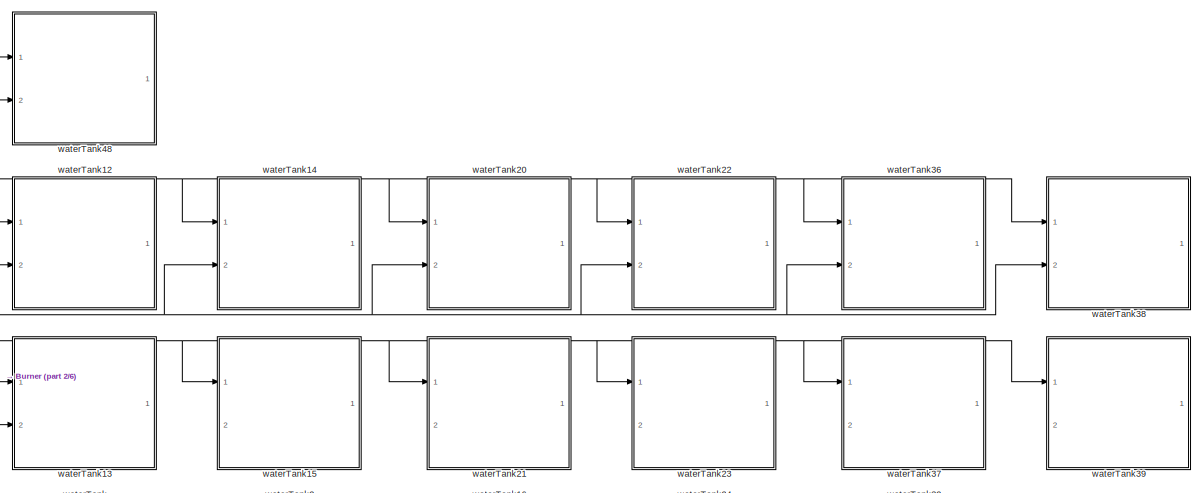
[diagram: root canvas - part 1/6, top right region]
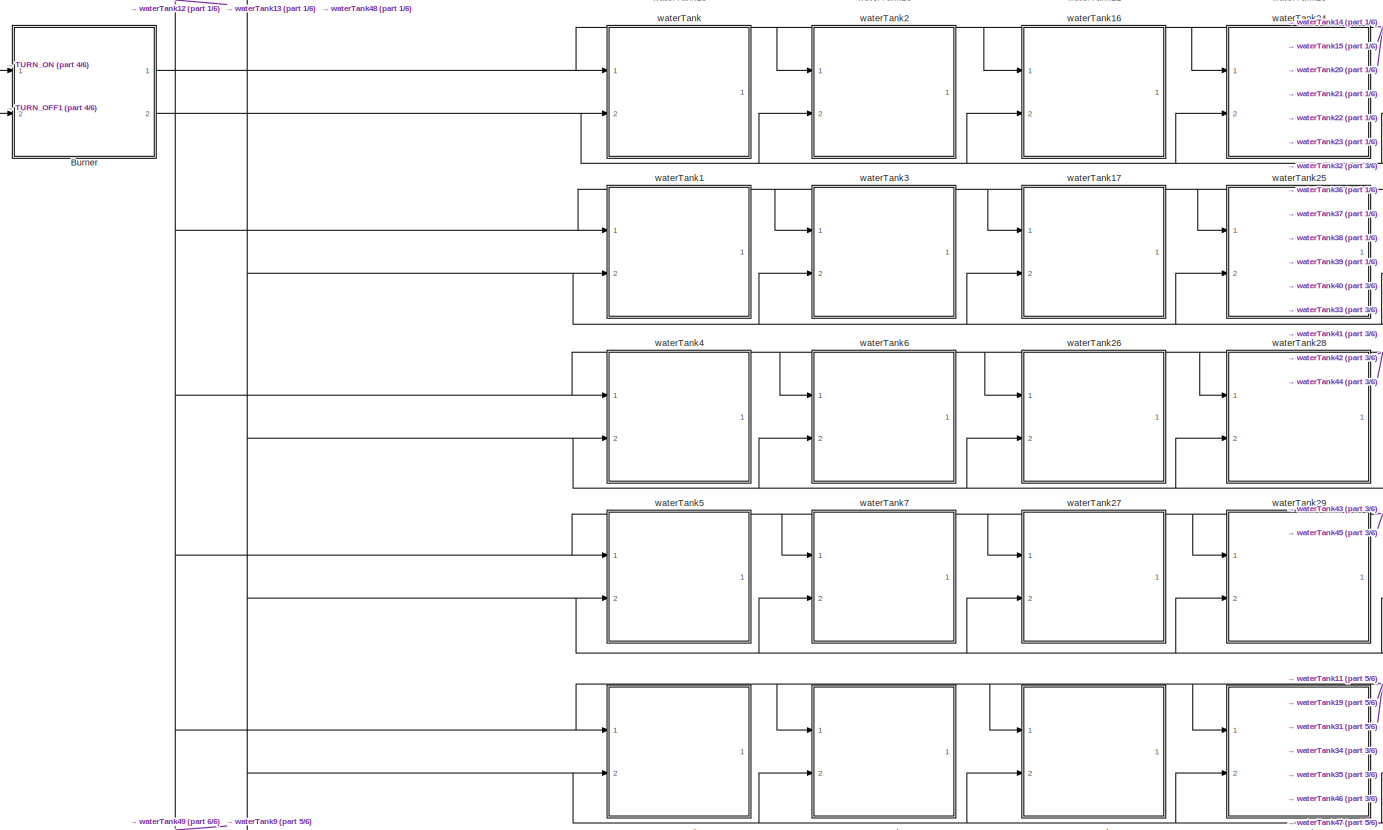
[diagram: root canvas - part 2/6, central region]
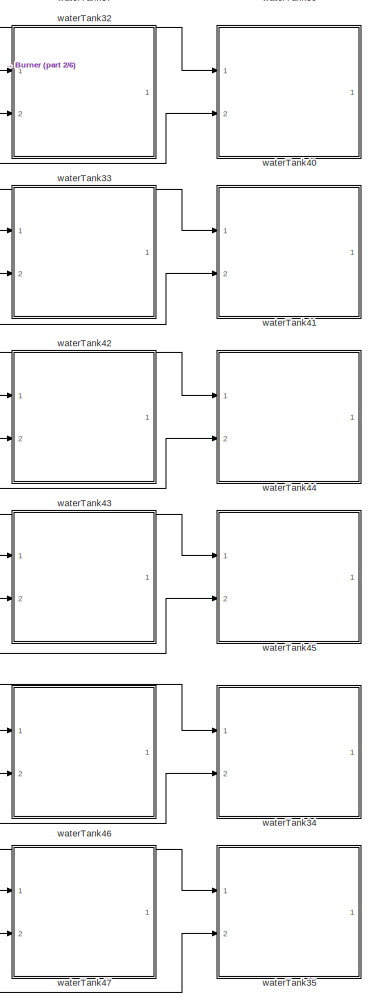
[diagram: root canvas - part 3/6, middle right region]
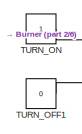
[diagram: root canvas - part 4/6, middle left region]
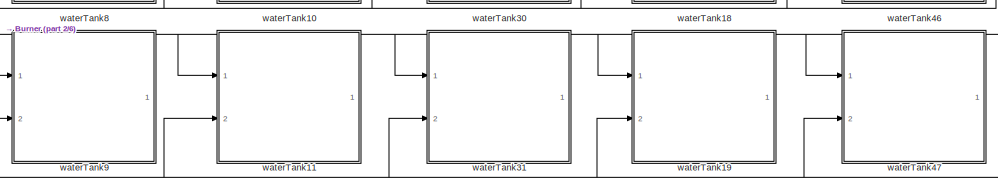
[diagram: root canvas - part 5/6, bottom center region]
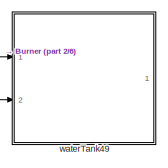
[diagram: root canvas - part 6/6, bottom center region]
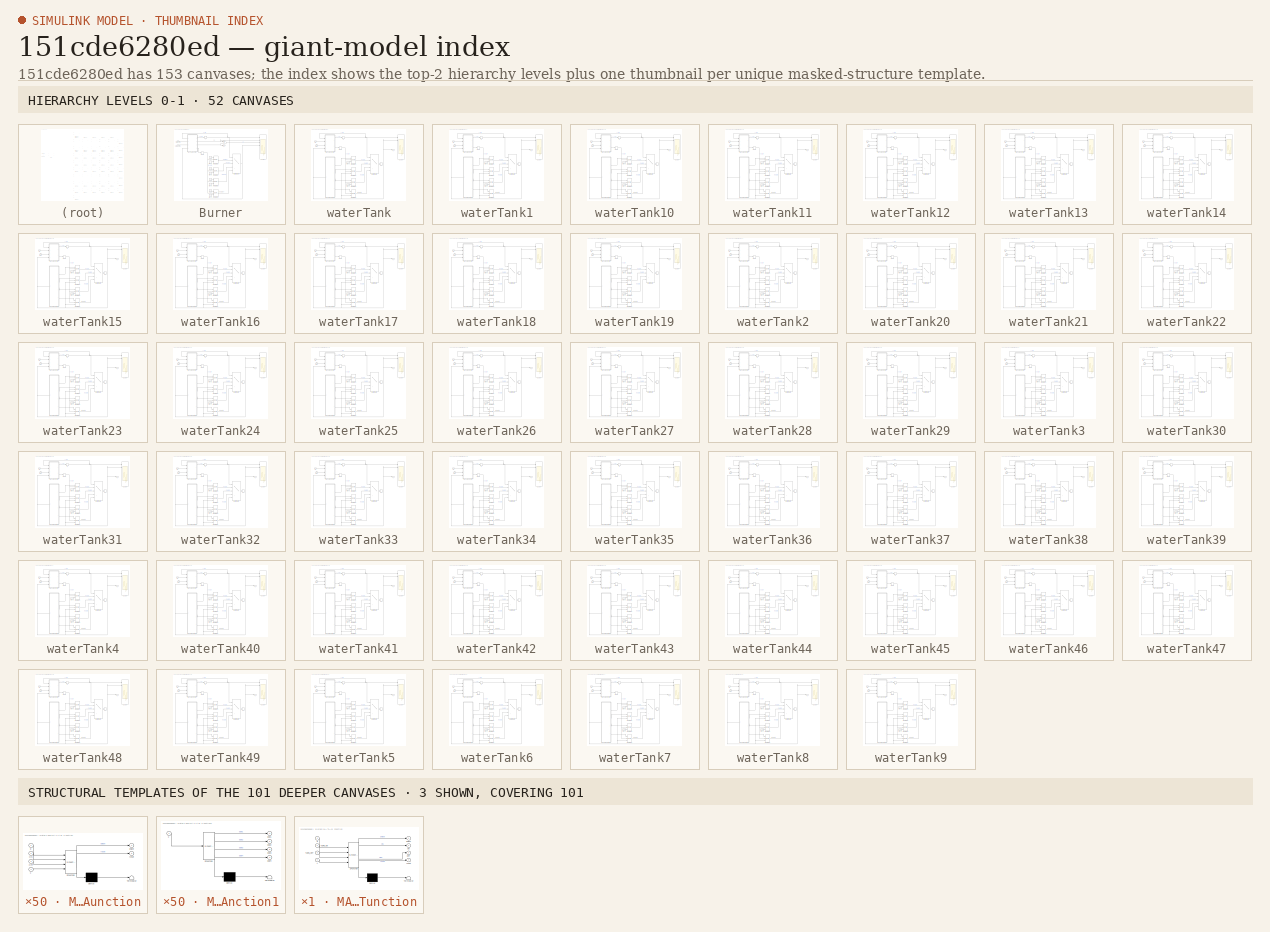
[diagram: thumbnail index - top-2 hierarchy levels (52 canvases) + 3 structural-template representatives of the remaining 101 canvases]
MODEL slx_151cde6280ed
KIND model
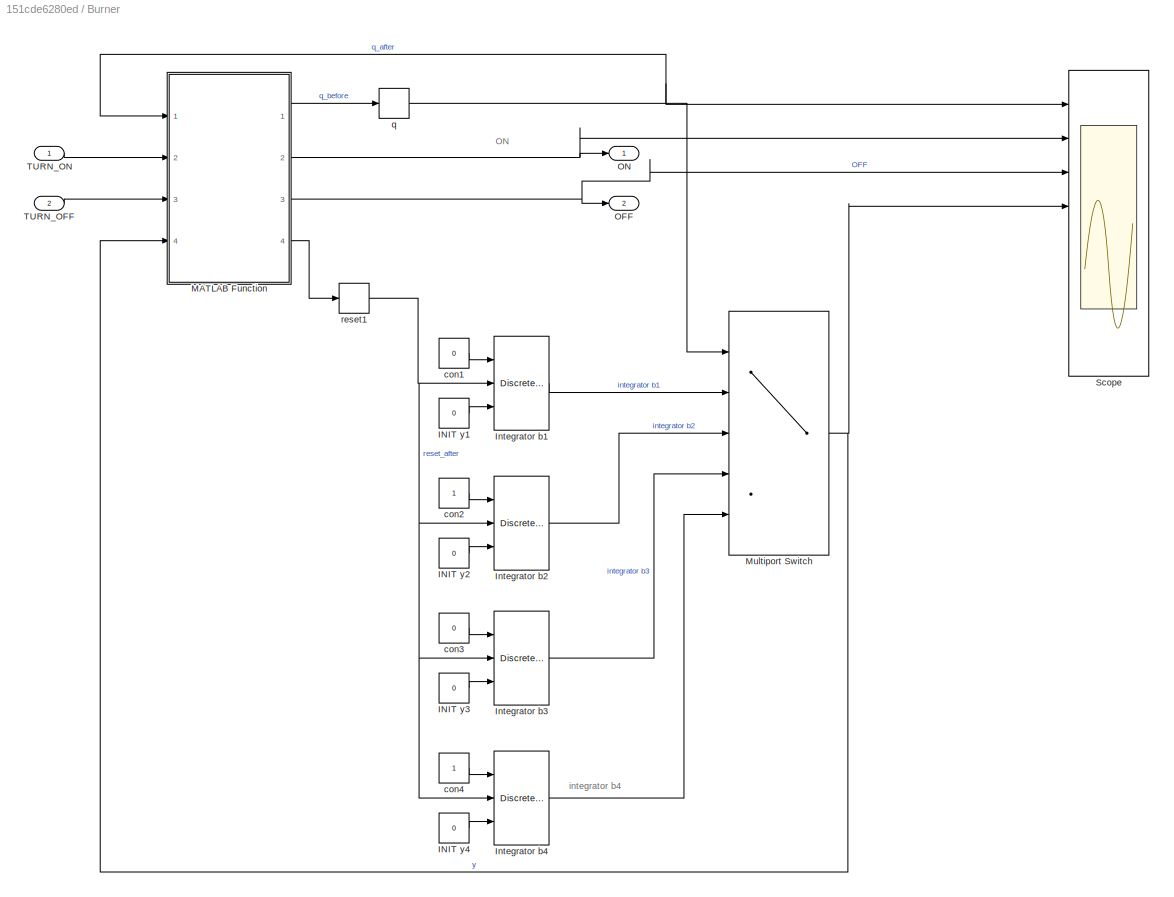
BLOCK [SubSystem] Burner
  Ports = [2, 2]
  RequestExecContextInheritance = off
BLOCK [Constant] Burner/INIT y1
  Value = 0
BLOCK [Constant] Burner/INIT y2
  Value = 0
BLOCK [Constant] Burner/INIT y3
  Value = 0
BLOCK [Constant] Burner/INIT y4
  Value = 0
BLOCK [DiscreteIntegrator] Burner/Integrator b1
  ExternalReset = either
  InitialCondition = 510
  InitialConditionSetting = State (most efficient)
  InitialConditionSource = external
  Ports = [3, 1]
  SampleTime = -1
BLOCK [DiscreteIntegrator] Burner/Integrator b2
  ExternalReset = either
  InitialCondition = 510
  InitialConditionSetting = State (most efficient)
  InitialConditionSource = external
  Ports = [3, 1]
  SampleTime = -1
BLOCK [DiscreteIntegrator] Burner/Integrator b3
  ExternalReset = either
  InitialCondition = 510
  InitialConditionSetting = State (most efficient)
  InitialConditionSource = external
  Ports = [3, 1]
  SampleTime = -1
BLOCK [DiscreteIntegrator] Burner/Integrator b4
  ExternalReset = either
  InitialCondition = 510
  InitialConditionSetting = State (most efficient)
  InitialConditionSource = external
  Ports = [3, 1]
  SampleTime = -1
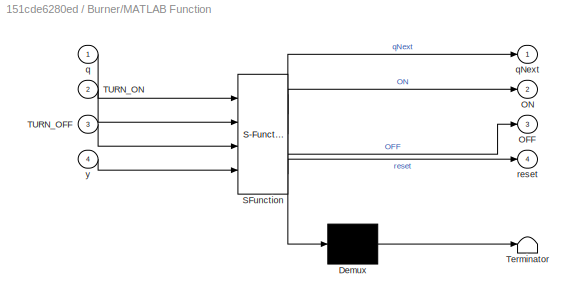
BLOCK [SubSystem] Burner/MATLAB Function
  ErrorFcn = Stateflow.Translate.translate
  PermitHierarchicalResolution = ExplicitOnly
  Ports = [4, 4]
  Priority = 1
  RequestExecContextInheritance = off
  SFBlockType = MATLAB Function
  TreatAsAtomicUnit = on
BLOCK [Demux] Burner/MATLAB Function/ Demux 
  Outputs = 1
  Ports = [1, 1]
BLOCK [S-Function] Burner/MATLAB Function/ SFunction 
  EnableBusSupport = on
  FunctionName = sf_sfun
  PortCounts = [4 5]
  Ports = [4, 5]
  Tag = Stateflow S-Function waterTankBurner 2
BLOCK [Terminator] Burner/MATLAB Function/ Terminator 
BLOCK [Outport] Burner/MATLAB Function/OFF
  IconDisplay = Port number
  Port = 3
BLOCK [Outport] Burner/MATLAB Function/ON
  IconDisplay = Port number
  Port = 2
BLOCK [Inport] Burner/MATLAB Function/TURN_OFF
  IconDisplay = Port number
  Port = 3
BLOCK [Inport] Burner/MATLAB Function/TURN_ON
  IconDisplay = Port number
  Port = 2
BLOCK [Inport] Burner/MATLAB Function/q
  IconDisplay = Port number
BLOCK [Outport] Burner/MATLAB Function/qNext
  IconDisplay = Port number
BLOCK [Outport] Burner/MATLAB Function/reset
  IconDisplay = Port number
  Port = 4
BLOCK [Inport] Burner/MATLAB Function/y
  IconDisplay = Port number
  Port = 4
BLOCK [MultiPortSwitch] Burner/Multiport Switch
  InputSameDT = off
  Inputs = 4
  Ports = [5, 1]
  SaturateOnIntegerOverflow = off
BLOCK [Outport] Burner/OFF
  IconDisplay = Port number
  Port = 2
BLOCK [Outport] Burner/ON
  IconDisplay = Port number
BLOCK [Scope] Burner/Scope
  Floating = off
  LegendLocations = 0.75226     0.93279     0.17388    0.020612\n0.60858     0.81129     0.31756    0.020612\n0.77586     0.68978     0.15028    0.020612\n0.80764     0.56828      0.1185    0.020612\n0.72161     0.44677     0.20453    0.020612\n0.72161     0.32527     0.20453    0.020612\n0.72161     0.20484     0.20453    0.020612\n0.72161    0.083331     0.20453    0.020612
  LimitDataPoints = off
  NumInputPorts = 8
  Ports = [8]
  ShowLegends = on
  TickLabels = on
  YMax = 1~1~1~1~1~1~1~1
  YMin = 0~0~0~0~0~0~0~0
  ZoomMode = xonly
BLOCK [Inport] Burner/TURN_OFF
  IconDisplay = Port number
  Port = 2
BLOCK [Inport] Burner/TURN_ON
  IconDisplay = Port number
BLOCK [Constant] Burner/con1
  Value = 0
BLOCK [Constant] Burner/con2
BLOCK [Constant] Burner/con3
  Value = 0
BLOCK [Constant] Burner/con4
BLOCK [Memory] Burner/q
  LinearizeMemory = on
  X0 = 1
BLOCK [Memory] Burner/reset1
  LinearizeMemory = on
BLOCK [Constant] TURN_OFF1
  Value = 0
BLOCK [Constant] TURN_ON
BLOCK [SubSystem] waterTank
  Ports = [2, 1]
  RequestExecContextInheritance = off
BLOCK [Constant] waterTank/INIT y1
  Value = 20
BLOCK [Constant] waterTank/INIT y3
  Value = 100
BLOCK [DiscreteIntegrator] waterTank/Integrator b1
  ExternalReset = either
  InitialCondition = 510
  InitialConditionSetting = State (most efficient)
  InitialConditionSource = external
  Ports = [3, 1]
  SampleTime = -1
BLOCK [DiscreteIntegrator] waterTank/Integrator b2
  ExternalReset = either
  InitialCondition = 510
  InitialConditionSetting = State (most efficient)
  InitialConditionSource = external
  Ports = [3, 1]
  SampleTime = -1
BLOCK [DiscreteIntegrator] waterTank/Integrator b3
  ExternalReset = either
  InitialCondition = 510
  InitialConditionSetting = State (most efficient)
  InitialConditionSource = external
  Ports = [3, 1]
  SampleTime = -1
BLOCK [DiscreteIntegrator] waterTank/Integrator b4
  ExternalReset = either
  InitialCondition = 510
  InitialConditionSetting = State (most efficient)
  InitialConditionSource = external
  Ports = [3, 1]
  SampleTime = -1
BLOCK [SubSystem] waterTank/MATLAB Function
  ErrorFcn = Stateflow.Translate.translate
  PermitHierarchicalResolution = ExplicitOnly
  Ports = [4, 2]
  Priority = 1
  RequestExecContextInheritance = off
  SFBlockType = MATLAB Function
  TreatAsAtomicUnit = on
BLOCK [Demux] waterTank/MATLAB Function/ Demux 
  Outputs = 1
  Ports = [1, 1]
BLOCK [S-Function] waterTank/MATLAB Function/ SFunction 
  EnableBusSupport = on
  FunctionName = sf_sfun
  PortCounts = [4 3]
  Ports = [4, 3]
  Tag = Stateflow S-Function waterTankBurner 1
BLOCK [Terminator] waterTank/MATLAB Function/ Terminator 
BLOCK [Inport] waterTank/MATLAB Function/OFF
  IconDisplay = Port number
  Port = 3
BLOCK [Inport] waterTank/MATLAB Function/ON
  IconDisplay = Port number
  Port = 2
BLOCK [Inport] waterTank/MATLAB Function/q
  IconDisplay = Port number
BLOCK [Outport] waterTank/MATLAB Function/qNext
  IconDisplay = Port number
BLOCK [Outport] waterTank/MATLAB Function/reset
  IconDisplay = Port number
  Port = 2
BLOCK [Inport] waterTank/MATLAB Function/x
  IconDisplay = Port number
  Port = 4
BLOCK [SubSystem] waterTank/MATLAB Function1
  ErrorFcn = Stateflow.Translate.translate
  PermitHierarchicalResolution = ExplicitOnly
  Ports = [1, 4]
  RequestExecContextInheritance = off
  SFBlockType = MATLAB Function
  TreatAsAtomicUnit = on
BLOCK [Demux] waterTank/MATLAB Function1/ Demux 
  Outputs = 1
  Ports = [1, 1]
BLOCK [S-Function] waterTank/MATLAB Function1/ SFunction 
  EnableBusSupport = on
  FunctionName = sf_sfun
  PortCounts = [1 5]
  Ports = [1, 5]
  Tag = Stateflow S-Function waterTankBurner 3
BLOCK [Terminator] waterTank/MATLAB Function1/ Terminator 
BLOCK [Outport] waterTank/MATLAB Function1/ode1
  IconDisplay = Port number
BLOCK [Outport] waterTank/MATLAB Function1/ode2
  IconDisplay = Port number
  Port = 2
BLOCK [Outport] waterTank/MATLAB Function1/ode3
  IconDisplay = Port number
  Port = 3
BLOCK [Outport] waterTank/MATLAB Function1/ode4
  IconDisplay = Port number
  Port = 4
BLOCK [Inport] waterTank/MATLAB Function1/x
  IconDisplay = Port number
BLOCK [MultiPortSwitch] waterTank/Multiport Switch
  InputSameDT = off
  Inputs = 4
  Ports = [5, 1]
  SaturateOnIntegerOverflow = off
BLOCK [Inport] waterTank/OFF
  IconDisplay = Port number
  Port = 2
BLOCK [Inport] waterTank/ON
  IconDisplay = Port number
BLOCK [Scope] waterTank/Scope
  Floating = off
  LimitDataPoints = off
  NumInputPorts = 8
  Ports = [8]
  ShowLegends = on
  TickLabels = on
  YMax = 1~1~1~1~1~1~1~1
  YMin = 0~0~0~0~0~0~0~0
  ZoomMode = xonly
BLOCK [Memory] waterTank/q
  LinearizeMemory = on
  X0 = 1
BLOCK [Memory] waterTank/reset1
  LinearizeMemory = on
BLOCK [Outport] waterTank/x
  IconDisplay = Port number
BLOCK [Memory] waterTank/xx
  LinearizeMemory = on
BLOCK [SubSystem] waterTank1
  Ports = [2, 1]
  RequestExecContextInheritance = off
BLOCK [Constant] waterTank1/INIT y1
  Value = 20
BLOCK [Constant] waterTank1/INIT y3
  Value = 100
BLOCK [DiscreteIntegrator] waterTank1/Integrator b1
  ExternalReset = either
  InitialCondition = 510
  InitialConditionSetting = State (most efficient)
  InitialConditionSource = external
  Ports = [3, 1]
  SampleTime = -1
BLOCK [DiscreteIntegrator] waterTank1/Integrator b2
  ExternalReset = either
  InitialCondition = 510
  InitialConditionSetting = State (most efficient)
  InitialConditionSource = external
  Ports = [3, 1]
  SampleTime = -1
BLOCK [DiscreteIntegrator] waterTank1/Integrator b3
  ExternalReset = either
  InitialCondition = 510
  InitialConditionSetting = State (most efficient)
  InitialConditionSource = external
  Ports = [3, 1]
  SampleTime = -1
BLOCK [DiscreteIntegrator] waterTank1/Integrator b4
  ExternalReset = either
  InitialCondition = 510
  InitialConditionSetting = State (most efficient)
  InitialConditionSource = external
  Ports = [3, 1]
  SampleTime = -1
BLOCK [SubSystem] waterTank1/MATLAB Function
  ErrorFcn = Stateflow.Translate.translate
  PermitHierarchicalResolution = ExplicitOnly
  Ports = [4, 2]
  Priority = 1
  RequestExecContextInheritance = off
  SFBlockType = MATLAB Function
  TreatAsAtomicUnit = on
BLOCK [Demux] waterTank1/MATLAB Function/ Demux 
  Outputs = 1
  Ports = [1, 1]
BLOCK [S-Function] waterTank1/MATLAB Function/ SFunction 
  EnableBusSupport = on
  FunctionName = sf_sfun
  PortCounts = [4 3]
  Ports = [4, 3]
  Tag = Stateflow S-Function waterTankBurner 4
BLOCK [Terminator] waterTank1/MATLAB Function/ Terminator 
BLOCK [Inport] waterTank1/MATLAB Function/OFF
  IconDisplay = Port number
  Port = 3
BLOCK [Inport] waterTank1/MATLAB Function/ON
  IconDisplay = Port number
  Port = 2
BLOCK [Inport] waterTank1/MATLAB Function/q
  IconDisplay = Port number
BLOCK [Outport] waterTank1/MATLAB Function/qNext
  IconDisplay = Port number
BLOCK [Outport] waterTank1/MATLAB Function/reset
  IconDisplay = Port number
  Port = 2
BLOCK [Inport] waterTank1/MATLAB Function/x
  IconDisplay = Port number
  Port = 4
BLOCK [SubSystem] waterTank1/MATLAB Function1
  ErrorFcn = Stateflow.Translate.translate
  PermitHierarchicalResolution = ExplicitOnly
  Ports = [1, 4]
  RequestExecContextInheritance = off
  SFBlockType = MATLAB Function
  TreatAsAtomicUnit = on
BLOCK [Demux] waterTank1/MATLAB Function1/ Demux 
  Outputs = 1
  Ports = [1, 1]
BLOCK [S-Function] waterTank1/MATLAB Function1/ SFunction 
  EnableBusSupport = on
  FunctionName = sf_sfun
  PortCounts = [1 5]
  Ports = [1, 5]
  Tag = Stateflow S-Function waterTankBurner 5
BLOCK [Terminator] waterTank1/MATLAB Function1/ Terminator 
BLOCK [Outport] waterTank1/MATLAB Function1/ode1
  IconDisplay = Port number
BLOCK [Outport] waterTank1/MATLAB Function1/ode2
  IconDisplay = Port number
  Port = 2
BLOCK [Outport] waterTank1/MATLAB Function1/ode3
  IconDisplay = Port number
  Port = 3
BLOCK [Outport] waterTank1/MATLAB Function1/ode4
  IconDisplay = Port number
  Port = 4
BLOCK [Inport] waterTank1/MATLAB Function1/x
  IconDisplay = Port number
BLOCK [MultiPortSwitch] waterTank1/Multiport Switch
  InputSameDT = off
  Inputs = 4
  Ports = [5, 1]
  SaturateOnIntegerOverflow = off
BLOCK [Inport] waterTank1/OFF
  IconDisplay = Port number
  Port = 2
BLOCK [Inport] waterTank1/ON
  IconDisplay = Port number
BLOCK [Scope] waterTank1/Scope
  Floating = off
  LimitDataPoints = off
  NumInputPorts = 8
  Ports = [8]
  ShowLegends = on
  TickLabels = on
  YMax = 1~1~1~1~1~1~1~1
  YMin = 0~0~0~0~0~0~0~0
  ZoomMode = xonly
BLOCK [Memory] waterTank1/q
  LinearizeMemory = on
  X0 = 1
BLOCK [Memory] waterTank1/reset1
  LinearizeMemory = on
BLOCK [Outport] waterTank1/x
  IconDisplay = Port number
BLOCK [Memory] waterTank1/xx
  LinearizeMemory = on
BLOCK [SubSystem] waterTank10
  Ports = [2, 1]
  RequestExecContextInheritance = off
BLOCK [Constant] waterTank10/INIT y1
  Value = 20
BLOCK [Constant] waterTank10/INIT y3
  Value = 100
BLOCK [DiscreteIntegrator] waterTank10/Integrator b1
  ExternalReset = either
  InitialCondition = 510
  InitialConditionSetting = State (most efficient)
  InitialConditionSource = external
  Ports = [3, 1]
  SampleTime = -1
BLOCK [DiscreteIntegrator] waterTank10/Integrator b2
  ExternalReset = either
  InitialCondition = 510
  InitialConditionSetting = State (most efficient)
  InitialConditionSource = external
  Ports = [3, 1]
  SampleTime = -1
BLOCK [DiscreteIntegrator] waterTank10/Integrator b3
  ExternalReset = either
  InitialCondition = 510
  InitialConditionSetting = State (most efficient)
  InitialConditionSource = external
  Ports = [3, 1]
  SampleTime = -1
BLOCK [DiscreteIntegrator] waterTank10/Integrator b4
  ExternalReset = either
  InitialCondition = 510
  InitialConditionSetting = State (most efficient)
  InitialConditionSource = external
  Ports = [3, 1]
  SampleTime = -1
BLOCK [SubSystem] waterTank10/MATLAB Function
  ErrorFcn = Stateflow.Translate.translate
  PermitHierarchicalResolution = ExplicitOnly
  Ports = [4, 2]
  Priority = 1
  RequestExecContextInheritance = off
  SFBlockType = MATLAB Function
  TreatAsAtomicUnit = on
BLOCK [Demux] waterTank10/MATLAB Function/ Demux 
  Outputs = 1
  Ports = [1, 1]
BLOCK [S-Function] waterTank10/MATLAB Function/ SFunction 
  EnableBusSupport = on
  FunctionName = sf_sfun
  PortCounts = [4 3]
  Ports = [4, 3]
  Tag = Stateflow S-Function waterTankBurner 18
BLOCK [Terminator] waterTank10/MATLAB Function/ Terminator 
BLOCK [Inport] waterTank10/MATLAB Function/OFF
  IconDisplay = Port number
  Port = 3
BLOCK [Inport] waterTank10/MATLAB Function/ON
  IconDisplay = Port number
  Port = 2
BLOCK [Inport] waterTank10/MATLAB Function/q
  IconDisplay = Port number
BLOCK [Outport] waterTank10/MATLAB Function/qNext
  IconDisplay = Port number
BLOCK [Outport] waterTank10/MATLAB Function/reset
  IconDisplay = Port number
  Port = 2
BLOCK [Inport] waterTank10/MATLAB Function/x
  IconDisplay = Port number
  Port = 4
BLOCK [SubSystem] waterTank10/MATLAB Function1
  ErrorFcn = Stateflow.Translate.translate
  PermitHierarchicalResolution = ExplicitOnly
  Ports = [1, 4]
  RequestExecContextInheritance = off
  SFBlockType = MATLAB Function
  TreatAsAtomicUnit = on
BLOCK [Demux] waterTank10/MATLAB Function1/ Demux 
  Outputs = 1
  Ports = [1, 1]
BLOCK [S-Function] waterTank10/MATLAB Function1/ SFunction 
  EnableBusSupport = on
  FunctionName = sf_sfun
  PortCounts = [1 5]
  Ports = [1, 5]
  Tag = Stateflow S-Function waterTankBurner 19
BLOCK [Terminator] waterTank10/MATLAB Function1/ Terminator 
BLOCK [Outport] waterTank10/MATLAB Function1/ode1
  IconDisplay = Port number
BLOCK [Outport] waterTank10/MATLAB Function1/ode2
  IconDisplay = Port number
  Port = 2
BLOCK [Outport] waterTank10/MATLAB Function1/ode3
  IconDisplay = Port number
  Port = 3
BLOCK [Outport] waterTank10/MATLAB Function1/ode4
  IconDisplay = Port number
  Port = 4
BLOCK [Inport] waterTank10/MATLAB Function1/x
  IconDisplay = Port number
BLOCK [MultiPortSwitch] waterTank10/Multiport Switch
  InputSameDT = off
  Inputs = 4
  Ports = [5, 1]
  SaturateOnIntegerOverflow = off
BLOCK [Inport] waterTank10/OFF
  IconDisplay = Port number
  Port = 2
BLOCK [Inport] waterTank10/ON
  IconDisplay = Port number
BLOCK [Scope] waterTank10/Scope
  Floating = off
  LimitDataPoints = off
  NumInputPorts = 8
  Ports = [8]
  ShowLegends = on
  TickLabels = on
  YMax = 1~1~1~1~1~1~1~1
  YMin = 0~0~0~0~0~0~0~0
  ZoomMode = xonly
BLOCK [Memory] waterTank10/q
  LinearizeMemory = on
  X0 = 1
BLOCK [Memory] waterTank10/reset1
  LinearizeMemory = on
BLOCK [Outport] waterTank10/x
  IconDisplay = Port number
BLOCK [Memory] waterTank10/xx
  LinearizeMemory = on
BLOCK [SubSystem] waterTank11
  Ports = [2, 1]
  RequestExecContextInheritance = off
BLOCK [Constant] waterTank11/INIT y1
  Value = 20
BLOCK [Constant] waterTank11/INIT y3
  Value = 100
BLOCK [DiscreteIntegrator] waterTank11/Integrator b1
  ExternalReset = either
  InitialCondition = 510
  InitialConditionSetting = State (most efficient)
  InitialConditionSource = external
  Ports = [3, 1]
  SampleTime = -1
BLOCK [DiscreteIntegrator] waterTank11/Integrator b2
  ExternalReset = either
  InitialCondition = 510
  InitialConditionSetting = State (most efficient)
  InitialConditionSource = external
  Ports = [3, 1]
  SampleTime = -1
BLOCK [DiscreteIntegrator] waterTank11/Integrator b3
  ExternalReset = either
  InitialCondition = 510
  InitialConditionSetting = State (most efficient)
  InitialConditionSource = external
  Ports = [3, 1]
  SampleTime = -1
BLOCK [DiscreteIntegrator] waterTank11/Integrator b4
  ExternalReset = either
  InitialCondition = 510
  InitialConditionSetting = State (most efficient)
  InitialConditionSource = external
  Ports = [3, 1]
  SampleTime = -1
BLOCK [SubSystem] waterTank11/MATLAB Function
  ErrorFcn = Stateflow.Translate.translate
  PermitHierarchicalResolution = ExplicitOnly
  Ports = [4, 2]
  Priority = 1
  RequestExecContextInheritance = off
  SFBlockType = MATLAB Function
  TreatAsAtomicUnit = on
BLOCK [Demux] waterTank11/MATLAB Function/ Demux 
  Outputs = 1
  Ports = [1, 1]
BLOCK [S-Function] waterTank11/MATLAB Function/ SFunction 
  EnableBusSupport = on
  FunctionName = sf_sfun
  PortCounts = [4 3]
  Ports = [4, 3]
  Tag = Stateflow S-Function waterTankBurner 20
BLOCK [Terminator] waterTank11/MATLAB Function/ Terminator 
BLOCK [Inport] waterTank11/MATLAB Function/OFF
  IconDisplay = Port number
  Port = 3
BLOCK [Inport] waterTank11/MATLAB Function/ON
  IconDisplay = Port number
  Port = 2
BLOCK [Inport] waterTank11/MATLAB Function/q
  IconDisplay = Port number
BLOCK [Outport] waterTank11/MATLAB Function/qNext
  IconDisplay = Port number
BLOCK [Outport] waterTank11/MATLAB Function/reset
  IconDisplay = Port number
  Port = 2
BLOCK [Inport] waterTank11/MATLAB Function/x
  IconDisplay = Port number
  Port = 4
BLOCK [SubSystem] waterTank11/MATLAB Function1
  ErrorFcn = Stateflow.Translate.translate
  PermitHierarchicalResolution = ExplicitOnly
  Ports = [1, 4]
  RequestExecContextInheritance = off
  SFBlockType = MATLAB Function
  TreatAsAtomicUnit = on
BLOCK [Demux] waterTank11/MATLAB Function1/ Demux 
  Outputs = 1
  Ports = [1, 1]
BLOCK [S-Function] waterTank11/MATLAB Function1/ SFunction 
  EnableBusSupport = on
  FunctionName = sf_sfun
  PortCounts = [1 5]
  Ports = [1, 5]
  Tag = Stateflow S-Function waterTankBurner 21
BLOCK [Terminator] waterTank11/MATLAB Function1/ Terminator 
BLOCK [Outport] waterTank11/MATLAB Function1/ode1
  IconDisplay = Port number
BLOCK [Outport] waterTank11/MATLAB Function1/ode2
  IconDisplay = Port number
  Port = 2
BLOCK [Outport] waterTank11/MATLAB Function1/ode3
  IconDisplay = Port number
  Port = 3
BLOCK [Outport] waterTank11/MATLAB Function1/ode4
  IconDisplay = Port number
  Port = 4
BLOCK [Inport] waterTank11/MATLAB Function1/x
  IconDisplay = Port number
BLOCK [MultiPortSwitch] waterTank11/Multiport Switch
  InputSameDT = off
  Inputs = 4
  Ports = [5, 1]
  SaturateOnIntegerOverflow = off
BLOCK [Inport] waterTank11/OFF
  IconDisplay = Port number
  Port = 2
BLOCK [Inport] waterTank11/ON
  IconDisplay = Port number
BLOCK [Scope] waterTank11/Scope
  Floating = off
  LimitDataPoints = off
  NumInputPorts = 8
  Ports = [8]
  ShowLegends = on
  TickLabels = on
  YMax = 1~1~1~1~1~1~1~1
  YMin = 0~0~0~0~0~0~0~0
  ZoomMode = xonly
BLOCK [Memory] waterTank11/q
  LinearizeMemory = on
  X0 = 1
BLOCK [Memory] waterTank11/reset1
  LinearizeMemory = on
BLOCK [Outport] waterTank11/x
  IconDisplay = Port number
BLOCK [Memory] waterTank11/xx
  LinearizeMemory = on
BLOCK [SubSystem] waterTank12
  Ports = [2, 1]
  RequestExecContextInheritance = off
BLOCK [Constant] waterTank12/INIT y1
  Value = 20
BLOCK [Constant] waterTank12/INIT y3
  Value = 100
BLOCK [DiscreteIntegrator] waterTank12/Integrator b1
  ExternalReset = either
  InitialCondition = 510
  InitialConditionSetting = State (most efficient)
  InitialConditionSource = external
  Ports = [3, 1]
  SampleTime = -1
BLOCK [DiscreteIntegrator] waterTank12/Integrator b2
  ExternalReset = either
  InitialCondition = 510
  InitialConditionSetting = State (most efficient)
  InitialConditionSource = external
  Ports = [3, 1]
  SampleTime = -1
BLOCK [DiscreteIntegrator] waterTank12/Integrator b3
  ExternalReset = either
  InitialCondition = 510
  InitialConditionSetting = State (most efficient)
  InitialConditionSource = external
  Ports = [3, 1]
  SampleTime = -1
BLOCK [DiscreteIntegrator] waterTank12/Integrator b4
  ExternalReset = either
  InitialCondition = 510
  InitialConditionSetting = State (most efficient)
  InitialConditionSource = external
  Ports = [3, 1]
  SampleTime = -1
BLOCK [SubSystem] waterTank12/MATLAB Function
  ErrorFcn = Stateflow.Translate.translate
  PermitHierarchicalResolution = ExplicitOnly
  Ports = [4, 2]
  Priority = 1
  RequestExecContextInheritance = off
  SFBlockType = MATLAB Function
  TreatAsAtomicUnit = on
BLOCK [Demux] waterTank12/MATLAB Function/ Demux 
  Outputs = 1
  Ports = [1, 1]
BLOCK [S-Function] waterTank12/MATLAB Function/ SFunction 
  EnableBusSupport = on
  FunctionName = sf_sfun
  PortCounts = [4 3]
  Ports = [4, 3]
  Tag = Stateflow S-Function waterTankBurner 26
BLOCK [Terminator] waterTank12/MATLAB Function/ Terminator 
BLOCK [Inport] waterTank12/MATLAB Function/OFF
  IconDisplay = Port number
  Port = 3
BLOCK [Inport] waterTank12/MATLAB Function/ON
  IconDisplay = Port number
  Port = 2
BLOCK [Inport] waterTank12/MATLAB Function/q
  IconDisplay = Port number
BLOCK [Outport] waterTank12/MATLAB Function/qNext
  IconDisplay = Port number
BLOCK [Outport] waterTank12/MATLAB Function/reset
  IconDisplay = Port number
  Port = 2
BLOCK [Inport] waterTank12/MATLAB Function/x
  IconDisplay = Port number
  Port = 4
BLOCK [SubSystem] waterTank12/MATLAB Function1
  ErrorFcn = Stateflow.Translate.translate
  PermitHierarchicalResolution = ExplicitOnly
  Ports = [1, 4]
  RequestExecContextInheritance = off
  SFBlockType = MATLAB Function
  TreatAsAtomicUnit = on
BLOCK [Demux] waterTank12/MATLAB Function1/ Demux 
  Outputs = 1
  Ports = [1, 1]
BLOCK [S-Function] waterTank12/MATLAB Function1/ SFunction 
  EnableBusSupport = on
  FunctionName = sf_sfun
  PortCounts = [1 5]
  Ports = [1, 5]
  Tag = Stateflow S-Function waterTankBurner 27
BLOCK [Terminator] waterTank12/MATLAB Function1/ Terminator 
BLOCK [Outport] waterTank12/MATLAB Function1/ode1
  IconDisplay = Port number
BLOCK [Outport] waterTank12/MATLAB Function1/ode2
  IconDisplay = Port number
  Port = 2
BLOCK [Outport] waterTank12/MATLAB Function1/ode3
  IconDisplay = Port number
  Port = 3
BLOCK [Outport] waterTank12/MATLAB Function1/ode4
  IconDisplay = Port number
  Port = 4
BLOCK [Inport] waterTank12/MATLAB Function1/x
  IconDisplay = Port number
BLOCK [MultiPortSwitch] waterTank12/Multiport Switch
  InputSameDT = off
  Inputs = 4
  Ports = [5, 1]
  SaturateOnIntegerOverflow = off
BLOCK [Inport] waterTank12/OFF
  IconDisplay = Port number
  Port = 2
BLOCK [Inport] waterTank12/ON
  IconDisplay = Port number
BLOCK [Scope] waterTank12/Scope
  Floating = off
  LimitDataPoints = off
  NumInputPorts = 8
  Ports = [8]
  ShowLegends = on
  TickLabels = on
  YMax = 1~1~1~1~1~1~1~1
  YMin = 0~0~0~0~0~0~0~0
  ZoomMode = xonly
BLOCK [Memory] waterTank12/q
  LinearizeMemory = on
  X0 = 1
BLOCK [Memory] waterTank12/reset1
  LinearizeMemory = on
BLOCK [Outport] waterTank12/x
  IconDisplay = Port number
BLOCK [Memory] waterTank12/xx
  LinearizeMemory = on
BLOCK [SubSystem] waterTank13
  Ports = [2, 1]
  RequestExecContextInheritance = off
BLOCK [Constant] waterTank13/INIT y1
  Value = 20
BLOCK [Constant] waterTank13/INIT y3
  Value = 100
BLOCK [DiscreteIntegrator] waterTank13/Integrator b1
  ExternalReset = either
  InitialCondition = 510
  InitialConditionSetting = State (most efficient)
  InitialConditionSource = external
  Ports = [3, 1]
  SampleTime = -1
BLOCK [DiscreteIntegrator] waterTank13/Integrator b2
  ExternalReset = either
  InitialCondition = 510
  InitialConditionSetting = State (most efficient)
  InitialConditionSource = external
  Ports = [3, 1]
  SampleTime = -1
BLOCK [DiscreteIntegrator] waterTank13/Integrator b3
  ExternalReset = either
  InitialCondition = 510
  InitialConditionSetting = State (most efficient)
  InitialConditionSource = external
  Ports = [3, 1]
  SampleTime = -1
BLOCK [DiscreteIntegrator] waterTank13/Integrator b4
  ExternalReset = either
  InitialCondition = 510
  InitialConditionSetting = State (most efficient)
  InitialConditionSource = external
  Ports = [3, 1]
  SampleTime = -1
BLOCK [SubSystem] waterTank13/MATLAB Function
  ErrorFcn = Stateflow.Translate.translate
  PermitHierarchicalResolution = ExplicitOnly
  Ports = [4, 2]
  Priority = 1
  RequestExecContextInheritance = off
  SFBlockType = MATLAB Function
  TreatAsAtomicUnit = on
BLOCK [Demux] waterTank13/MATLAB Function/ Demux 
  Outputs = 1
  Ports = [1, 1]
BLOCK [S-Function] waterTank13/MATLAB Function/ SFunction 
  EnableBusSupport = on
  FunctionName = sf_sfun
  PortCounts = [4 3]
  Ports = [4, 3]
  Tag = Stateflow S-Function waterTankBurner 28
BLOCK [Terminator] waterTank13/MATLAB Function/ Terminator 
BLOCK [Inport] waterTank13/MATLAB Function/OFF
  IconDisplay = Port number
  Port = 3
BLOCK [Inport] waterTank13/MATLAB Function/ON
  IconDisplay = Port number
  Port = 2
BLOCK [Inport] waterTank13/MATLAB Function/q
  IconDisplay = Port number
BLOCK [Outport] waterTank13/MATLAB Function/qNext
  IconDisplay = Port number
BLOCK [Outport] waterTank13/MATLAB Function/reset
  IconDisplay = Port number
  Port = 2
BLOCK [Inport] waterTank13/MATLAB Function/x
  IconDisplay = Port number
  Port = 4
BLOCK [SubSystem] waterTank13/MATLAB Function1
  ErrorFcn = Stateflow.Translate.translate
  PermitHierarchicalResolution = ExplicitOnly
  Ports = [1, 4]
  RequestExecContextInheritance = off
  SFBlockType = MATLAB Function
  TreatAsAtomicUnit = on
BLOCK [Demux] waterTank13/MATLAB Function1/ Demux 
  Outputs = 1
  Ports = [1, 1]
BLOCK [S-Function] waterTank13/MATLAB Function1/ SFunction 
  EnableBusSupport = on
  FunctionName = sf_sfun
  PortCounts = [1 5]
  Ports = [1, 5]
  Tag = Stateflow S-Function waterTankBurner 29
BLOCK [Terminator] waterTank13/MATLAB Function1/ Terminator 
BLOCK [Outport] waterTank13/MATLAB Function1/ode1
  IconDisplay = Port number
BLOCK [Outport] waterTank13/MATLAB Function1/ode2
  IconDisplay = Port number
  Port = 2
BLOCK [Outport] waterTank13/MATLAB Function1/ode3
  IconDisplay = Port number
  Port = 3
BLOCK [Outport] waterTank13/MATLAB Function1/ode4
  IconDisplay = Port number
  Port = 4
BLOCK [Inport] waterTank13/MATLAB Function1/x
  IconDisplay = Port number
BLOCK [MultiPortSwitch] waterTank13/Multiport Switch
  InputSameDT = off
  Inputs = 4
  Ports = [5, 1]
  SaturateOnIntegerOverflow = off
BLOCK [Inport] waterTank13/OFF
  IconDisplay = Port number
  Port = 2
BLOCK [Inport] waterTank13/ON
  IconDisplay = Port number
BLOCK [Scope] waterTank13/Scope
  Floating = off
  LimitDataPoints = off
  NumInputPorts = 8
  Ports = [8]
  ShowLegends = on
  TickLabels = on
  YMax = 1~1~1~1~1~1~1~1
  YMin = 0~0~0~0~0~0~0~0
  ZoomMode = xonly
BLOCK [Memory] waterTank13/q
  LinearizeMemory = on
  X0 = 1
BLOCK [Memory] waterTank13/reset1
  LinearizeMemory = on
BLOCK [Outport] waterTank13/x
  IconDisplay = Port number
BLOCK [Memory] waterTank13/xx
  LinearizeMemory = on
BLOCK [SubSystem] waterTank14
  Ports = [2, 1]
  RequestExecContextInheritance = off
BLOCK [Constant] waterTank14/INIT y1
  Value = 20
BLOCK [Constant] waterTank14/INIT y3
  Value = 100
BLOCK [DiscreteIntegrator] waterTank14/Integrator b1
  ExternalReset = either
  InitialCondition = 510
  InitialConditionSetting = State (most efficient)
  InitialConditionSource = external
  Ports = [3, 1]
  SampleTime = -1
BLOCK [DiscreteIntegrator] waterTank14/Integrator b2
  ExternalReset = either
  InitialCondition = 510
  InitialConditionSetting = State (most efficient)
  InitialConditionSource = external
  Ports = [3, 1]
  SampleTime = -1
BLOCK [DiscreteIntegrator] waterTank14/Integrator b3
  ExternalReset = either
  InitialCondition = 510
  InitialConditionSetting = State (most efficient)
  InitialConditionSource = external
  Ports = [3, 1]
  SampleTime = -1
BLOCK [DiscreteIntegrator] waterTank14/Integrator b4
  ExternalReset = either
  InitialCondition = 510
  InitialConditionSetting = State (most efficient)
  InitialConditionSource = external
  Ports = [3, 1]
  SampleTime = -1
BLOCK [SubSystem] waterTank14/MATLAB Function
  ErrorFcn = Stateflow.Translate.translate
  PermitHierarchicalResolution = ExplicitOnly
  Ports = [4, 2]
  Priority = 1
  RequestExecContextInheritance = off
  SFBlockType = MATLAB Function
  TreatAsAtomicUnit = on
BLOCK [Demux] waterTank14/MATLAB Function/ Demux 
  Outputs = 1
  Ports = [1, 1]
BLOCK [S-Function] waterTank14/MATLAB Function/ SFunction 
  EnableBusSupport = on
  FunctionName = sf_sfun
  PortCounts = [4 3]
  Ports = [4, 3]
  Tag = Stateflow S-Function waterTankBurner 30
BLOCK [Terminator] waterTank14/MATLAB Function/ Terminator 
BLOCK [Inport] waterTank14/MATLAB Function/OFF
  IconDisplay = Port number
  Port = 3
BLOCK [Inport] waterTank14/MATLAB Function/ON
  IconDisplay = Port number
  Port = 2
BLOCK [Inport] waterTank14/MATLAB Function/q
  IconDisplay = Port number
BLOCK [Outport] waterTank14/MATLAB Function/qNext
  IconDisplay = Port number
BLOCK [Outport] waterTank14/MATLAB Function/reset
  IconDisplay = Port number
  Port = 2
BLOCK [Inport] waterTank14/MATLAB Function/x
  IconDisplay = Port number
  Port = 4
BLOCK [SubSystem] waterTank14/MATLAB Function1
  ErrorFcn = Stateflow.Translate.translate
  PermitHierarchicalResolution = ExplicitOnly
  Ports = [1, 4]
  RequestExecContextInheritance = off
  SFBlockType = MATLAB Function
  TreatAsAtomicUnit = on
BLOCK [Demux] waterTank14/MATLAB Function1/ Demux 
  Outputs = 1
  Ports = [1, 1]
BLOCK [S-Function] waterTank14/MATLAB Function1/ SFunction 
  EnableBusSupport = on
  FunctionName = sf_sfun
  PortCounts = [1 5]
  Ports = [1, 5]
  Tag = Stateflow S-Function waterTankBurner 31
BLOCK [Terminator] waterTank14/MATLAB Function1/ Terminator 
BLOCK [Outport] waterTank14/MATLAB Function1/ode1
  IconDisplay = Port number
BLOCK [Outport] waterTank14/MATLAB Function1/ode2
  IconDisplay = Port number
  Port = 2
BLOCK [Outport] waterTank14/MATLAB Function1/ode3
  IconDisplay = Port number
  Port = 3
BLOCK [Outport] waterTank14/MATLAB Function1/ode4
  IconDisplay = Port number
  Port = 4
BLOCK [Inport] waterTank14/MATLAB Function1/x
  IconDisplay = Port number
BLOCK [MultiPortSwitch] waterTank14/Multiport Switch
  InputSameDT = off
  Inputs = 4
  Ports = [5, 1]
  SaturateOnIntegerOverflow = off
BLOCK [Inport] waterTank14/OFF
  IconDisplay = Port number
  Port = 2
BLOCK [Inport] waterTank14/ON
  IconDisplay = Port number
BLOCK [Scope] waterTank14/Scope
  Floating = off
  LimitDataPoints = off
  NumInputPorts = 8
  Ports = [8]
  ShowLegends = on
  TickLabels = on
  YMax = 1~1~1~1~1~1~1~1
  YMin = 0~0~0~0~0~0~0~0
  ZoomMode = xonly
BLOCK [Memory] waterTank14/q
  LinearizeMemory = on
  X0 = 1
BLOCK [Memory] waterTank14/reset1
  LinearizeMemory = on
BLOCK [Outport] waterTank14/x
  IconDisplay = Port number
BLOCK [Memory] waterTank14/xx
  LinearizeMemory = on
BLOCK [SubSystem] waterTank15
  Ports = [2, 1]
  RequestExecContextInheritance = off
BLOCK [Constant] waterTank15/INIT y1
  Value = 20
BLOCK [Constant] waterTank15/INIT y3
  Value = 100
BLOCK [DiscreteIntegrator] waterTank15/Integrator b1
  ExternalReset = either
  InitialCondition = 510
  InitialConditionSetting = State (most efficient)
  InitialConditionSource = external
  Ports = [3, 1]
  SampleTime = -1
BLOCK [DiscreteIntegrator] waterTank15/Integrator b2
  ExternalReset = either
  InitialCondition = 510
  InitialConditionSetting = State (most efficient)
  InitialConditionSource = external
  Ports = [3, 1]
  SampleTime = -1
BLOCK [DiscreteIntegrator] waterTank15/Integrator b3
  ExternalReset = either
  InitialCondition = 510
  InitialConditionSetting = State (most efficient)
  InitialConditionSource = external
  Ports = [3, 1]
  SampleTime = -1
BLOCK [DiscreteIntegrator] waterTank15/Integrator b4
  ExternalReset = either
  InitialCondition = 510
  InitialConditionSetting = State (most efficient)
  InitialConditionSource = external
  Ports = [3, 1]
  SampleTime = -1
BLOCK [SubSystem] waterTank15/MATLAB Function
  ErrorFcn = Stateflow.Translate.translate
  PermitHierarchicalResolution = ExplicitOnly
  Ports = [4, 2]
  Priority = 1
  RequestExecContextInheritance = off
  SFBlockType = MATLAB Function
  TreatAsAtomicUnit = on
BLOCK [Demux] waterTank15/MATLAB Function/ Demux 
  Outputs = 1
  Ports = [1, 1]
BLOCK [S-Function] waterTank15/MATLAB Function/ SFunction 
  EnableBusSupport = on
  FunctionName = sf_sfun
  PortCounts = [4 3]
  Ports = [4, 3]
  Tag = Stateflow S-Function waterTankBurner 32
BLOCK [Terminator] waterTank15/MATLAB Function/ Terminator 
BLOCK [Inport] waterTank15/MATLAB Function/OFF
  IconDisplay = Port number
  Port = 3
BLOCK [Inport] waterTank15/MATLAB Function/ON
  IconDisplay = Port number
  Port = 2
BLOCK [Inport] waterTank15/MATLAB Function/q
  IconDisplay = Port number
BLOCK [Outport] waterTank15/MATLAB Function/qNext
  IconDisplay = Port number
BLOCK [Outport] waterTank15/MATLAB Function/reset
  IconDisplay = Port number
  Port = 2
BLOCK [Inport] waterTank15/MATLAB Function/x
  IconDisplay = Port number
  Port = 4
BLOCK [SubSystem] waterTank15/MATLAB Function1
  ErrorFcn = Stateflow.Translate.translate
  PermitHierarchicalResolution = ExplicitOnly
  Ports = [1, 4]
  RequestExecContextInheritance = off
  SFBlockType = MATLAB Function
  TreatAsAtomicUnit = on
BLOCK [Demux] waterTank15/MATLAB Function1/ Demux 
  Outputs = 1
  Ports = [1, 1]
BLOCK [S-Function] waterTank15/MATLAB Function1/ SFunction 
  EnableBusSupport = on
  FunctionName = sf_sfun
  PortCounts = [1 5]
  Ports = [1, 5]
  Tag = Stateflow S-Function waterTankBurner 33
BLOCK [Terminator] waterTank15/MATLAB Function1/ Terminator 
BLOCK [Outport] waterTank15/MATLAB Function1/ode1
  IconDisplay = Port number
BLOCK [Outport] waterTank15/MATLAB Function1/ode2
  IconDisplay = Port number
  Port = 2
BLOCK [Outport] waterTank15/MATLAB Function1/ode3
  IconDisplay = Port number
  Port = 3
BLOCK [Outport] waterTank15/MATLAB Function1/ode4
  IconDisplay = Port number
  Port = 4
BLOCK [Inport] waterTank15/MATLAB Function1/x
  IconDisplay = Port number
BLOCK [MultiPortSwitch] waterTank15/Multiport Switch
  InputSameDT = off
  Inputs = 4
  Ports = [5, 1]
  SaturateOnIntegerOverflow = off
BLOCK [Inport] waterTank15/OFF
  IconDisplay = Port number
  Port = 2
BLOCK [Inport] waterTank15/ON
  IconDisplay = Port number
BLOCK [Scope] waterTank15/Scope
  Floating = off
  LimitDataPoints = off
  NumInputPorts = 8
  Ports = [8]
  ShowLegends = on
  TickLabels = on
  YMax = 1~1~1~1~1~1~1~1
  YMin = 0~0~0~0~0~0~0~0
  ZoomMode = xonly
BLOCK [Memory] waterTank15/q
  LinearizeMemory = on
  X0 = 1
BLOCK [Memory] waterTank15/reset1
  LinearizeMemory = on
BLOCK [Outport] waterTank15/x
  IconDisplay = Port number
BLOCK [Memory] waterTank15/xx
  LinearizeMemory = on
BLOCK [SubSystem] waterTank16
  Ports = [2, 1]
  RequestExecContextInheritance = off
BLOCK [Constant] waterTank16/INIT y1
  Value = 20
BLOCK [Constant] waterTank16/INIT y3
  Value = 100
BLOCK [DiscreteIntegrator] waterTank16/Integrator b1
  ExternalReset = either
  InitialCondition = 510
  InitialConditionSetting = State (most efficient)
  InitialConditionSource = external
  Ports = [3, 1]
  SampleTime = -1
BLOCK [DiscreteIntegrator] waterTank16/Integrator b2
  ExternalReset = either
  InitialCondition = 510
  InitialConditionSetting = State (most efficient)
  InitialConditionSource = external
  Ports = [3, 1]
  SampleTime = -1
BLOCK [DiscreteIntegrator] waterTank16/Integrator b3
  ExternalReset = either
  InitialCondition = 510
  InitialConditionSetting = State (most efficient)
  InitialConditionSource = external
  Ports = [3, 1]
  SampleTime = -1
BLOCK [DiscreteIntegrator] waterTank16/Integrator b4
  ExternalReset = either
  InitialCondition = 510
  InitialConditionSetting = State (most efficient)
  InitialConditionSource = external
  Ports = [3, 1]
  SampleTime = -1
BLOCK [SubSystem] waterTank16/MATLAB Function
  ErrorFcn = Stateflow.Translate.translate
  PermitHierarchicalResolution = ExplicitOnly
  Ports = [4, 2]
  Priority = 1
  RequestExecContextInheritance = off
  SFBlockType = MATLAB Function
  TreatAsAtomicUnit = on
BLOCK [Demux] waterTank16/MATLAB Function/ Demux 
  Outputs = 1
  Ports = [1, 1]
BLOCK [S-Function] waterTank16/MATLAB Function/ SFunction 
  EnableBusSupport = on
  FunctionName = sf_sfun
  PortCounts = [4 3]
  Ports = [4, 3]
  Tag = Stateflow S-Function waterTankBurner 34
BLOCK [Terminator] waterTank16/MATLAB Function/ Terminator 
BLOCK [Inport] waterTank16/MATLAB Function/OFF
  IconDisplay = Port number
  Port = 3
BLOCK [Inport] waterTank16/MATLAB Function/ON
  IconDisplay = Port number
  Port = 2
BLOCK [Inport] waterTank16/MATLAB Function/q
  IconDisplay = Port number
BLOCK [Outport] waterTank16/MATLAB Function/qNext
  IconDisplay = Port number
BLOCK [Outport] waterTank16/MATLAB Function/reset
  IconDisplay = Port number
  Port = 2
BLOCK [Inport] waterTank16/MATLAB Function/x
  IconDisplay = Port number
  Port = 4
BLOCK [SubSystem] waterTank16/MATLAB Function1
  ErrorFcn = Stateflow.Translate.translate
  PermitHierarchicalResolution = ExplicitOnly
  Ports = [1, 4]
  RequestExecContextInheritance = off
  SFBlockType = MATLAB Function
  TreatAsAtomicUnit = on
BLOCK [Demux] waterTank16/MATLAB Function1/ Demux 
  Outputs = 1
  Ports = [1, 1]
BLOCK [S-Function] waterTank16/MATLAB Function1/ SFunction 
  EnableBusSupport = on
  FunctionName = sf_sfun
  PortCounts = [1 5]
  Ports = [1, 5]
  Tag = Stateflow S-Function waterTankBurner 35
BLOCK [Terminator] waterTank16/MATLAB Function1/ Terminator 
BLOCK [Outport] waterTank16/MATLAB Function1/ode1
  IconDisplay = Port number
BLOCK [Outport] waterTank16/MATLAB Function1/ode2
  IconDisplay = Port number
  Port = 2
BLOCK [Outport] waterTank16/MATLAB Function1/ode3
  IconDisplay = Port number
  Port = 3
BLOCK [Outport] waterTank16/MATLAB Function1/ode4
  IconDisplay = Port number
  Port = 4
BLOCK [Inport] waterTank16/MATLAB Function1/x
  IconDisplay = Port number
BLOCK [MultiPortSwitch] waterTank16/Multiport Switch
  InputSameDT = off
  Inputs = 4
  Ports = [5, 1]
  SaturateOnIntegerOverflow = off
BLOCK [Inport] waterTank16/OFF
  IconDisplay = Port number
  Port = 2
BLOCK [Inport] waterTank16/ON
  IconDisplay = Port number
BLOCK [Scope] waterTank16/Scope
  Floating = off
  LimitDataPoints = off
  NumInputPorts = 8
  Ports = [8]
  ShowLegends = on
  TickLabels = on
  YMax = 1~1~1~1~1~1~1~1
  YMin = 0~0~0~0~0~0~0~0
  ZoomMode = xonly
BLOCK [Memory] waterTank16/q
  LinearizeMemory = on
  X0 = 1
BLOCK [Memory] waterTank16/reset1
  LinearizeMemory = on
BLOCK [Outport] waterTank16/x
  IconDisplay = Port number
BLOCK [Memory] waterTank16/xx
  LinearizeMemory = on
BLOCK [SubSystem] waterTank17
  Ports = [2, 1]
  RequestExecContextInheritance = off
BLOCK [Constant] waterTank17/INIT y1
  Value = 20
BLOCK [Constant] waterTank17/INIT y3
  Value = 100
BLOCK [DiscreteIntegrator] waterTank17/Integrator b1
  ExternalReset = either
  InitialCondition = 510
  InitialConditionSetting = State (most efficient)
  InitialConditionSource = external
  Ports = [3, 1]
  SampleTime = -1
BLOCK [DiscreteIntegrator] waterTank17/Integrator b2
  ExternalReset = either
  InitialCondition = 510
  InitialConditionSetting = State (most efficient)
  InitialConditionSource = external
  Ports = [3, 1]
  SampleTime = -1
BLOCK [DiscreteIntegrator] waterTank17/Integrator b3
  ExternalReset = either
  InitialCondition = 510
  InitialConditionSetting = State (most efficient)
  InitialConditionSource = external
  Ports = [3, 1]
  SampleTime = -1
BLOCK [DiscreteIntegrator] waterTank17/Integrator b4
  ExternalReset = either
  InitialCondition = 510
  InitialConditionSetting = State (most efficient)
  InitialConditionSource = external
  Ports = [3, 1]
  SampleTime = -1
BLOCK [SubSystem] waterTank17/MATLAB Function
  ErrorFcn = Stateflow.Translate.translate
  PermitHierarchicalResolution = ExplicitOnly
  Ports = [4, 2]
  Priority = 1
  RequestExecContextInheritance = off
  SFBlockType = MATLAB Function
  TreatAsAtomicUnit = on
BLOCK [Demux] waterTank17/MATLAB Function/ Demux 
  Outputs = 1
  Ports = [1, 1]
BLOCK [S-Function] waterTank17/MATLAB Function/ SFunction 
  EnableBusSupport = on
  FunctionName = sf_sfun
  PortCounts = [4 3]
  Ports = [4, 3]
  Tag = Stateflow S-Function waterTankBurner 36
BLOCK [Terminator] waterTank17/MATLAB Function/ Terminator 
BLOCK [Inport] waterTank17/MATLAB Function/OFF
  IconDisplay = Port number
  Port = 3
BLOCK [Inport] waterTank17/MATLAB Function/ON
  IconDisplay = Port number
  Port = 2
BLOCK [Inport] waterTank17/MATLAB Function/q
  IconDisplay = Port number
BLOCK [Outport] waterTank17/MATLAB Function/qNext
  IconDisplay = Port number
BLOCK [Outport] waterTank17/MATLAB Function/reset
  IconDisplay = Port number
  Port = 2
BLOCK [Inport] waterTank17/MATLAB Function/x
  IconDisplay = Port number
  Port = 4
BLOCK [SubSystem] waterTank17/MATLAB Function1
  ErrorFcn = Stateflow.Translate.translate
  PermitHierarchicalResolution = ExplicitOnly
  Ports = [1, 4]
  RequestExecContextInheritance = off
  SFBlockType = MATLAB Function
  TreatAsAtomicUnit = on
BLOCK [Demux] waterTank17/MATLAB Function1/ Demux 
  Outputs = 1
  Ports = [1, 1]
BLOCK [S-Function] waterTank17/MATLAB Function1/ SFunction 
  EnableBusSupport = on
  FunctionName = sf_sfun
  PortCounts = [1 5]
  Ports = [1, 5]
  Tag = Stateflow S-Function waterTankBurner 37
BLOCK [Terminator] waterTank17/MATLAB Function1/ Terminator 
BLOCK [Outport] waterTank17/MATLAB Function1/ode1
  IconDisplay = Port number
BLOCK [Outport] waterTank17/MATLAB Function1/ode2
  IconDisplay = Port number
  Port = 2
BLOCK [Outport] waterTank17/MATLAB Function1/ode3
  IconDisplay = Port number
  Port = 3
BLOCK [Outport] waterTank17/MATLAB Function1/ode4
  IconDisplay = Port number
  Port = 4
BLOCK [Inport] waterTank17/MATLAB Function1/x
  IconDisplay = Port number
BLOCK [MultiPortSwitch] waterTank17/Multiport Switch
  InputSameDT = off
  Inputs = 4
  Ports = [5, 1]
  SaturateOnIntegerOverflow = off
BLOCK [Inport] waterTank17/OFF
  IconDisplay = Port number
  Port = 2
BLOCK [Inport] waterTank17/ON
  IconDisplay = Port number
BLOCK [Scope] waterTank17/Scope
  Floating = off
  LimitDataPoints = off
  NumInputPorts = 8
  Ports = [8]
  ShowLegends = on
  TickLabels = on
  YMax = 1~1~1~1~1~1~1~1
  YMin = 0~0~0~0~0~0~0~0
  ZoomMode = xonly
BLOCK [Memory] waterTank17/q
  LinearizeMemory = on
  X0 = 1
BLOCK [Memory] waterTank17/reset1
  LinearizeMemory = on
BLOCK [Outport] waterTank17/x
  IconDisplay = Port number
BLOCK [Memory] waterTank17/xx
  LinearizeMemory = on
BLOCK [SubSystem] waterTank18
  Ports = [2, 1]
  RequestExecContextInheritance = off
BLOCK [Constant] waterTank18/INIT y1
  Value = 20
BLOCK [Constant] waterTank18/INIT y3
  Value = 100
BLOCK [DiscreteIntegrator] waterTank18/Integrator b1
  ExternalReset = either
  InitialCondition = 510
  InitialConditionSetting = State (most efficient)
  InitialConditionSource = external
  Ports = [3, 1]
  SampleTime = -1
BLOCK [DiscreteIntegrator] waterTank18/Integrator b2
  ExternalReset = either
  InitialCondition = 510
  InitialConditionSetting = State (most efficient)
  InitialConditionSource = external
  Ports = [3, 1]
  SampleTime = -1
BLOCK [DiscreteIntegrator] waterTank18/Integrator b3
  ExternalReset = either
  InitialCondition = 510
  InitialConditionSetting = State (most efficient)
  InitialConditionSource = external
  Ports = [3, 1]
  SampleTime = -1
BLOCK [DiscreteIntegrator] waterTank18/Integrator b4
  ExternalReset = either
  InitialCondition = 510
  InitialConditionSetting = State (most efficient)
  InitialConditionSource = external
  Ports = [3, 1]
  SampleTime = -1
BLOCK [SubSystem] waterTank18/MATLAB Function
  ErrorFcn = Stateflow.Translate.translate
  PermitHierarchicalResolution = ExplicitOnly
  Ports = [4, 2]
  Priority = 1
  RequestExecContextInheritance = off
  SFBlockType = MATLAB Function
  TreatAsAtomicUnit = on
BLOCK [Demux] waterTank18/MATLAB Function/ Demux 
  Outputs = 1
  Ports = [1, 1]
BLOCK [S-Function] waterTank18/MATLAB Function/ SFunction 
  EnableBusSupport = on
  FunctionName = sf_sfun
  PortCounts = [4 3]
  Ports = [4, 3]
  Tag = Stateflow S-Function waterTankBurner 38
BLOCK [Terminator] waterTank18/MATLAB Function/ Terminator 
BLOCK [Inport] waterTank18/MATLAB Function/OFF
  IconDisplay = Port number
  Port = 3
BLOCK [Inport] waterTank18/MATLAB Function/ON
  IconDisplay = Port number
  Port = 2
BLOCK [Inport] waterTank18/MATLAB Function/q
  IconDisplay = Port number
BLOCK [Outport] waterTank18/MATLAB Function/qNext
  IconDisplay = Port number
BLOCK [Outport] waterTank18/MATLAB Function/reset
  IconDisplay = Port number
  Port = 2
BLOCK [Inport] waterTank18/MATLAB Function/x
  IconDisplay = Port number
  Port = 4
BLOCK [SubSystem] waterTank18/MATLAB Function1
  ErrorFcn = Stateflow.Translate.translate
  PermitHierarchicalResolution = ExplicitOnly
  Ports = [1, 4]
  RequestExecContextInheritance = off
  SFBlockType = MATLAB Function
  TreatAsAtomicUnit = on
BLOCK [Demux] waterTank18/MATLAB Function1/ Demux 
  Outputs = 1
  Ports = [1, 1]
BLOCK [S-Function] waterTank18/MATLAB Function1/ SFunction 
  EnableBusSupport = on
  FunctionName = sf_sfun
  PortCounts = [1 5]
  Ports = [1, 5]
  Tag = Stateflow S-Function waterTankBurner 39
BLOCK [Terminator] waterTank18/MATLAB Function1/ Terminator 
BLOCK [Outport] waterTank18/MATLAB Function1/ode1
  IconDisplay = Port number
BLOCK [Outport] waterTank18/MATLAB Function1/ode2
  IconDisplay = Port number
  Port = 2
BLOCK [Outport] waterTank18/MATLAB Function1/ode3
  IconDisplay = Port number
  Port = 3
BLOCK [Outport] waterTank18/MATLAB Function1/ode4
  IconDisplay = Port number
  Port = 4
BLOCK [Inport] waterTank18/MATLAB Function1/x
  IconDisplay = Port number
BLOCK [MultiPortSwitch] waterTank18/Multiport Switch
  InputSameDT = off
  Inputs = 4
  Ports = [5, 1]
  SaturateOnIntegerOverflow = off
BLOCK [Inport] waterTank18/OFF
  IconDisplay = Port number
  Port = 2
BLOCK [Inport] waterTank18/ON
  IconDisplay = Port number
BLOCK [Scope] waterTank18/Scope
  Floating = off
  LimitDataPoints = off
  NumInputPorts = 8
  Ports = [8]
  ShowLegends = on
  TickLabels = on
  YMax = 1~1~1~1~1~1~1~1
  YMin = 0~0~0~0~0~0~0~0
  ZoomMode = xonly
BLOCK [Memory] waterTank18/q
  LinearizeMemory = on
  X0 = 1
BLOCK [Memory] waterTank18/reset1
  LinearizeMemory = on
BLOCK [Outport] waterTank18/x
  IconDisplay = Port number
BLOCK [Memory] waterTank18/xx
  LinearizeMemory = on
BLOCK [SubSystem] waterTank19
  Ports = [2, 1]
  RequestExecContextInheritance = off
BLOCK [Constant] waterTank19/INIT y1
  Value = 20
BLOCK [Constant] waterTank19/INIT y3
  Value = 100
BLOCK [DiscreteIntegrator] waterTank19/Integrator b1
  ExternalReset = either
  InitialCondition = 510
  InitialConditionSetting = State (most efficient)
  InitialConditionSource = external
  Ports = [3, 1]
  SampleTime = -1
BLOCK [DiscreteIntegrator] waterTank19/Integrator b2
  ExternalReset = either
  InitialCondition = 510
  InitialConditionSetting = State (most efficient)
  InitialConditionSource = external
  Ports = [3, 1]
  SampleTime = -1
BLOCK [DiscreteIntegrator] waterTank19/Integrator b3
  ExternalReset = either
  InitialCondition = 510
  InitialConditionSetting = State (most efficient)
  InitialConditionSource = external
  Ports = [3, 1]
  SampleTime = -1
BLOCK [DiscreteIntegrator] waterTank19/Integrator b4
  ExternalReset = either
  InitialCondition = 510
  InitialConditionSetting = State (most efficient)
  InitialConditionSource = external
  Ports = [3, 1]
  SampleTime = -1
BLOCK [SubSystem] waterTank19/MATLAB Function
  ErrorFcn = Stateflow.Translate.translate
  PermitHierarchicalResolution = ExplicitOnly
  Ports = [4, 2]
  Priority = 1
  RequestExecContextInheritance = off
  SFBlockType = MATLAB Function
  TreatAsAtomicUnit = on
BLOCK [Demux] waterTank19/MATLAB Function/ Demux 
  Outputs = 1
  Ports = [1, 1]
BLOCK [S-Function] waterTank19/MATLAB Function/ SFunction 
  EnableBusSupport = on
  FunctionName = sf_sfun
  PortCounts = [4 3]
  Ports = [4, 3]
  Tag = Stateflow S-Function waterTankBurner 40
BLOCK [Terminator] waterTank19/MATLAB Function/ Terminator 
BLOCK [Inport] waterTank19/MATLAB Function/OFF
  IconDisplay = Port number
  Port = 3
BLOCK [Inport] waterTank19/MATLAB Function/ON
  IconDisplay = Port number
  Port = 2
BLOCK [Inport] waterTank19/MATLAB Function/q
  IconDisplay = Port number
BLOCK [Outport] waterTank19/MATLAB Function/qNext
  IconDisplay = Port number
BLOCK [Outport] waterTank19/MATLAB Function/reset
  IconDisplay = Port number
  Port = 2
BLOCK [Inport] waterTank19/MATLAB Function/x
  IconDisplay = Port number
  Port = 4
BLOCK [SubSystem] waterTank19/MATLAB Function1
  ErrorFcn = Stateflow.Translate.translate
  PermitHierarchicalResolution = ExplicitOnly
  Ports = [1, 4]
  RequestExecContextInheritance = off
  SFBlockType = MATLAB Function
  TreatAsAtomicUnit = on
BLOCK [Demux] waterTank19/MATLAB Function1/ Demux 
  Outputs = 1
  Ports = [1, 1]
BLOCK [S-Function] waterTank19/MATLAB Function1/ SFunction 
  EnableBusSupport = on
  FunctionName = sf_sfun
  PortCounts = [1 5]
  Ports = [1, 5]
  Tag = Stateflow S-Function waterTankBurner 41
BLOCK [Terminator] waterTank19/MATLAB Function1/ Terminator 
BLOCK [Outport] waterTank19/MATLAB Function1/ode1
  IconDisplay = Port number
BLOCK [Outport] waterTank19/MATLAB Function1/ode2
  IconDisplay = Port number
  Port = 2
BLOCK [Outport] waterTank19/MATLAB Function1/ode3
  IconDisplay = Port number
  Port = 3
BLOCK [Outport] waterTank19/MATLAB Function1/ode4
  IconDisplay = Port number
  Port = 4
BLOCK [Inport] waterTank19/MATLAB Function1/x
  IconDisplay = Port number
BLOCK [MultiPortSwitch] waterTank19/Multiport Switch
  InputSameDT = off
  Inputs = 4
  Ports = [5, 1]
  SaturateOnIntegerOverflow = off
BLOCK [Inport] waterTank19/OFF
  IconDisplay = Port number
  Port = 2
BLOCK [Inport] waterTank19/ON
  IconDisplay = Port number
BLOCK [Scope] waterTank19/Scope
  Floating = off
  LimitDataPoints = off
  NumInputPorts = 8
  Ports = [8]
  ShowLegends = on
  TickLabels = on
  YMax = 1~1~1~1~1~1~1~1
  YMin = 0~0~0~0~0~0~0~0
  ZoomMode = xonly
BLOCK [Memory] waterTank19/q
  LinearizeMemory = on
  X0 = 1
BLOCK [Memory] waterTank19/reset1
  LinearizeMemory = on
BLOCK [Outport] waterTank19/x
  IconDisplay = Port number
BLOCK [Memory] waterTank19/xx
  LinearizeMemory = on
BLOCK [SubSystem] waterTank2
  Ports = [2, 1]
  RequestExecContextInheritance = off
BLOCK [Constant] waterTank2/INIT y1
  Value = 20
BLOCK [Constant] waterTank2/INIT y3
  Value = 100
BLOCK [DiscreteIntegrator] waterTank2/Integrator b1
  ExternalReset = either
  InitialCondition = 510
  InitialConditionSetting = State (most efficient)
  InitialConditionSource = external
  Ports = [3, 1]
  SampleTime = -1
BLOCK [DiscreteIntegrator] waterTank2/Integrator b2
  ExternalReset = either
  InitialCondition = 510
  InitialConditionSetting = State (most efficient)
  InitialConditionSource = external
  Ports = [3, 1]
  SampleTime = -1
BLOCK [DiscreteIntegrator] waterTank2/Integrator b3
  ExternalReset = either
  InitialCondition = 510
  InitialConditionSetting = State (most efficient)
  InitialConditionSource = external
  Ports = [3, 1]
  SampleTime = -1
BLOCK [DiscreteIntegrator] waterTank2/Integrator b4
  ExternalReset = either
  InitialCondition = 510
  InitialConditionSetting = State (most efficient)
  InitialConditionSource = external
  Ports = [3, 1]
  SampleTime = -1
BLOCK [SubSystem] waterTank2/MATLAB Function
  ErrorFcn = Stateflow.Translate.translate
  PermitHierarchicalResolution = ExplicitOnly
  Ports = [4, 2]
  Priority = 1
  RequestExecContextInheritance = off
  SFBlockType = MATLAB Function
  TreatAsAtomicUnit = on
BLOCK [Demux] waterTank2/MATLAB Function/ Demux 
  Outputs = 1
  Ports = [1, 1]
BLOCK [S-Function] waterTank2/MATLAB Function/ SFunction 
  EnableBusSupport = on
  FunctionName = sf_sfun
  PortCounts = [4 3]
  Ports = [4, 3]
  Tag = Stateflow S-Function waterTankBurner 6
BLOCK [Terminator] waterTank2/MATLAB Function/ Terminator 
BLOCK [Inport] waterTank2/MATLAB Function/OFF
  IconDisplay = Port number
  Port = 3
BLOCK [Inport] waterTank2/MATLAB Function/ON
  IconDisplay = Port number
  Port = 2
BLOCK [Inport] waterTank2/MATLAB Function/q
  IconDisplay = Port number
BLOCK [Outport] waterTank2/MATLAB Function/qNext
  IconDisplay = Port number
BLOCK [Outport] waterTank2/MATLAB Function/reset
  IconDisplay = Port number
  Port = 2
BLOCK [Inport] waterTank2/MATLAB Function/x
  IconDisplay = Port number
  Port = 4
BLOCK [SubSystem] waterTank2/MATLAB Function1
  ErrorFcn = Stateflow.Translate.translate
  PermitHierarchicalResolution = ExplicitOnly
  Ports = [1, 4]
  RequestExecContextInheritance = off
  SFBlockType = MATLAB Function
  TreatAsAtomicUnit = on
BLOCK [Demux] waterTank2/MATLAB Function1/ Demux 
  Outputs = 1
  Ports = [1, 1]
BLOCK [S-Function] waterTank2/MATLAB Function1/ SFunction 
  EnableBusSupport = on
  FunctionName = sf_sfun
  PortCounts = [1 5]
  Ports = [1, 5]
  Tag = Stateflow S-Function waterTankBurner 7
BLOCK [Terminator] waterTank2/MATLAB Function1/ Terminator 
BLOCK [Outport] waterTank2/MATLAB Function1/ode1
  IconDisplay = Port number
BLOCK [Outport] waterTank2/MATLAB Function1/ode2
  IconDisplay = Port number
  Port = 2
BLOCK [Outport] waterTank2/MATLAB Function1/ode3
  IconDisplay = Port number
  Port = 3
BLOCK [Outport] waterTank2/MATLAB Function1/ode4
  IconDisplay = Port number
  Port = 4
BLOCK [Inport] waterTank2/MATLAB Function1/x
  IconDisplay = Port number
BLOCK [MultiPortSwitch] waterTank2/Multiport Switch
  InputSameDT = off
  Inputs = 4
  Ports = [5, 1]
  SaturateOnIntegerOverflow = off
BLOCK [Inport] waterTank2/OFF
  IconDisplay = Port number
  Port = 2
BLOCK [Inport] waterTank2/ON
  IconDisplay = Port number
BLOCK [Scope] waterTank2/Scope
  Floating = off
  LimitDataPoints = off
  NumInputPorts = 8
  Ports = [8]
  ShowLegends = on
  TickLabels = on
  YMax = 1~1~1~1~1~1~1~1
  YMin = 0~0~0~0~0~0~0~0
  ZoomMode = xonly
BLOCK [Memory] waterTank2/q
  LinearizeMemory = on
  X0 = 1
BLOCK [Memory] waterTank2/reset1
  LinearizeMemory = on
BLOCK [Outport] waterTank2/x
  IconDisplay = Port number
BLOCK [Memory] waterTank2/xx
  LinearizeMemory = on
BLOCK [SubSystem] waterTank20
  Ports = [2, 1]
  RequestExecContextInheritance = off
BLOCK [Constant] waterTank20/INIT y1
  Value = 20
BLOCK [Constant] waterTank20/INIT y3
  Value = 100
BLOCK [DiscreteIntegrator] waterTank20/Integrator b1
  ExternalReset = either
  InitialCondition = 510
  InitialConditionSetting = State (most efficient)
  InitialConditionSource = external
  Ports = [3, 1]
  SampleTime = -1
BLOCK [DiscreteIntegrator] waterTank20/Integrator b2
  ExternalReset = either
  InitialCondition = 510
  InitialConditionSetting = State (most efficient)
  InitialConditionSource = external
  Ports = [3, 1]
  SampleTime = -1
BLOCK [DiscreteIntegrator] waterTank20/Integrator b3
  ExternalReset = either
  InitialCondition = 510
  InitialConditionSetting = State (most efficient)
  InitialConditionSource = external
  Ports = [3, 1]
  SampleTime = -1
BLOCK [DiscreteIntegrator] waterTank20/Integrator b4
  ExternalReset = either
  InitialCondition = 510
  InitialConditionSetting = State (most efficient)
  InitialConditionSource = external
  Ports = [3, 1]
  SampleTime = -1
BLOCK [SubSystem] waterTank20/MATLAB Function
  ErrorFcn = Stateflow.Translate.translate
  PermitHierarchicalResolution = ExplicitOnly
  Ports = [4, 2]
  Priority = 1
  RequestExecContextInheritance = off
  SFBlockType = MATLAB Function
  TreatAsAtomicUnit = on
BLOCK [Demux] waterTank20/MATLAB Function/ Demux 
  Outputs = 1
  Ports = [1, 1]
BLOCK [S-Function] waterTank20/MATLAB Function/ SFunction 
  EnableBusSupport = on
  FunctionName = sf_sfun
  PortCounts = [4 3]
  Ports = [4, 3]
  Tag = Stateflow S-Function waterTankBurner 42
BLOCK [Terminator] waterTank20/MATLAB Function/ Terminator 
BLOCK [Inport] waterTank20/MATLAB Function/OFF
  IconDisplay = Port number
  Port = 3
BLOCK [Inport] waterTank20/MATLAB Function/ON
  IconDisplay = Port number
  Port = 2
BLOCK [Inport] waterTank20/MATLAB Function/q
  IconDisplay = Port number
BLOCK [Outport] waterTank20/MATLAB Function/qNext
  IconDisplay = Port number
BLOCK [Outport] waterTank20/MATLAB Function/reset
  IconDisplay = Port number
  Port = 2
BLOCK [Inport] waterTank20/MATLAB Function/x
  IconDisplay = Port number
  Port = 4
BLOCK [SubSystem] waterTank20/MATLAB Function1
  ErrorFcn = Stateflow.Translate.translate
  PermitHierarchicalResolution = ExplicitOnly
  Ports = [1, 4]
  RequestExecContextInheritance = off
  SFBlockType = MATLAB Function
  TreatAsAtomicUnit = on
BLOCK [Demux] waterTank20/MATLAB Function1/ Demux 
  Outputs = 1
  Ports = [1, 1]
BLOCK [S-Function] waterTank20/MATLAB Function1/ SFunction 
  EnableBusSupport = on
  FunctionName = sf_sfun
  PortCounts = [1 5]
  Ports = [1, 5]
  Tag = Stateflow S-Function waterTankBurner 43
BLOCK [Terminator] waterTank20/MATLAB Function1/ Terminator 
BLOCK [Outport] waterTank20/MATLAB Function1/ode1
  IconDisplay = Port number
BLOCK [Outport] waterTank20/MATLAB Function1/ode2
  IconDisplay = Port number
  Port = 2
BLOCK [Outport] waterTank20/MATLAB Function1/ode3
  IconDisplay = Port number
  Port = 3
BLOCK [Outport] waterTank20/MATLAB Function1/ode4
  IconDisplay = Port number
  Port = 4
BLOCK [Inport] waterTank20/MATLAB Function1/x
  IconDisplay = Port number
BLOCK [MultiPortSwitch] waterTank20/Multiport Switch
  InputSameDT = off
  Inputs = 4
  Ports = [5, 1]
  SaturateOnIntegerOverflow = off
BLOCK [Inport] waterTank20/OFF
  IconDisplay = Port number
  Port = 2
BLOCK [Inport] waterTank20/ON
  IconDisplay = Port number
BLOCK [Scope] waterTank20/Scope
  Floating = off
  LimitDataPoints = off
  NumInputPorts = 8
  Ports = [8]
  ShowLegends = on
  TickLabels = on
  YMax = 1~1~1~1~1~1~1~1
  YMin = 0~0~0~0~0~0~0~0
  ZoomMode = xonly
BLOCK [Memory] waterTank20/q
  LinearizeMemory = on
  X0 = 1
BLOCK [Memory] waterTank20/reset1
  LinearizeMemory = on
BLOCK [Outport] waterTank20/x
  IconDisplay = Port number
BLOCK [Memory] waterTank20/xx
  LinearizeMemory = on
BLOCK [SubSystem] waterTank21
  Ports = [2, 1]
  RequestExecContextInheritance = off
BLOCK [Constant] waterTank21/INIT y1
  Value = 20
BLOCK [Constant] waterTank21/INIT y3
  Value = 100
BLOCK [DiscreteIntegrator] waterTank21/Integrator b1
  ExternalReset = either
  InitialCondition = 510
  InitialConditionSetting = State (most efficient)
  InitialConditionSource = external
  Ports = [3, 1]
  SampleTime = -1
BLOCK [DiscreteIntegrator] waterTank21/Integrator b2
  ExternalReset = either
  InitialCondition = 510
  InitialConditionSetting = State (most efficient)
  InitialConditionSource = external
  Ports = [3, 1]
  SampleTime = -1
BLOCK [DiscreteIntegrator] waterTank21/Integrator b3
  ExternalReset = either
  InitialCondition = 510
  InitialConditionSetting = State (most efficient)
  InitialConditionSource = external
  Ports = [3, 1]
  SampleTime = -1
BLOCK [DiscreteIntegrator] waterTank21/Integrator b4
  ExternalReset = either
  InitialCondition = 510
  InitialConditionSetting = State (most efficient)
  InitialConditionSource = external
  Ports = [3, 1]
  SampleTime = -1
BLOCK [SubSystem] waterTank21/MATLAB Function
  ErrorFcn = Stateflow.Translate.translate
  PermitHierarchicalResolution = ExplicitOnly
  Ports = [4, 2]
  Priority = 1
  RequestExecContextInheritance = off
  SFBlockType = MATLAB Function
  TreatAsAtomicUnit = on
BLOCK [Demux] waterTank21/MATLAB Function/ Demux 
  Outputs = 1
  Ports = [1, 1]
BLOCK [S-Function] waterTank21/MATLAB Function/ SFunction 
  EnableBusSupport = on
  FunctionName = sf_sfun
  PortCounts = [4 3]
  Ports = [4, 3]
  Tag = Stateflow S-Function waterTankBurner 44
BLOCK [Terminator] waterTank21/MATLAB Function/ Terminator 
BLOCK [Inport] waterTank21/MATLAB Function/OFF
  IconDisplay = Port number
  Port = 3
BLOCK [Inport] waterTank21/MATLAB Function/ON
  IconDisplay = Port number
  Port = 2
BLOCK [Inport] waterTank21/MATLAB Function/q
  IconDisplay = Port number
BLOCK [Outport] waterTank21/MATLAB Function/qNext
  IconDisplay = Port number
BLOCK [Outport] waterTank21/MATLAB Function/reset
  IconDisplay = Port number
  Port = 2
BLOCK [Inport] waterTank21/MATLAB Function/x
  IconDisplay = Port number
  Port = 4
BLOCK [SubSystem] waterTank21/MATLAB Function1
  ErrorFcn = Stateflow.Translate.translate
  PermitHierarchicalResolution = ExplicitOnly
  Ports = [1, 4]
  RequestExecContextInheritance = off
  SFBlockType = MATLAB Function
  TreatAsAtomicUnit = on
BLOCK [Demux] waterTank21/MATLAB Function1/ Demux 
  Outputs = 1
  Ports = [1, 1]
BLOCK [S-Function] waterTank21/MATLAB Function1/ SFunction 
  EnableBusSupport = on
  FunctionName = sf_sfun
  PortCounts = [1 5]
  Ports = [1, 5]
  Tag = Stateflow S-Function waterTankBurner 45
BLOCK [Terminator] waterTank21/MATLAB Function1/ Terminator 
BLOCK [Outport] waterTank21/MATLAB Function1/ode1
  IconDisplay = Port number
BLOCK [Outport] waterTank21/MATLAB Function1/ode2
  IconDisplay = Port number
  Port = 2
BLOCK [Outport] waterTank21/MATLAB Function1/ode3
  IconDisplay = Port number
  Port = 3
BLOCK [Outport] waterTank21/MATLAB Function1/ode4
  IconDisplay = Port number
  Port = 4
BLOCK [Inport] waterTank21/MATLAB Function1/x
  IconDisplay = Port number
BLOCK [MultiPortSwitch] waterTank21/Multiport Switch
  InputSameDT = off
  Inputs = 4
  Ports = [5, 1]
  SaturateOnIntegerOverflow = off
BLOCK [Inport] waterTank21/OFF
  IconDisplay = Port number
  Port = 2
BLOCK [Inport] waterTank21/ON
  IconDisplay = Port number
BLOCK [Scope] waterTank21/Scope
  Floating = off
  LimitDataPoints = off
  NumInputPorts = 8
  Ports = [8]
  ShowLegends = on
  TickLabels = on
  YMax = 1~1~1~1~1~1~1~1
  YMin = 0~0~0~0~0~0~0~0
  ZoomMode = xonly
BLOCK [Memory] waterTank21/q
  LinearizeMemory = on
  X0 = 1
BLOCK [Memory] waterTank21/reset1
  LinearizeMemory = on
BLOCK [Outport] waterTank21/x
  IconDisplay = Port number
BLOCK [Memory] waterTank21/xx
  LinearizeMemory = on
BLOCK [SubSystem] waterTank22
  Ports = [2, 1]
  RequestExecContextInheritance = off
BLOCK [Constant] waterTank22/INIT y1
  Value = 20
BLOCK [Constant] waterTank22/INIT y3
  Value = 100
BLOCK [DiscreteIntegrator] waterTank22/Integrator b1
  ExternalReset = either
  InitialCondition = 510
  InitialConditionSetting = State (most efficient)
  InitialConditionSource = external
  Ports = [3, 1]
  SampleTime = -1
BLOCK [DiscreteIntegrator] waterTank22/Integrator b2
  ExternalReset = either
  InitialCondition = 510
  InitialConditionSetting = State (most efficient)
  InitialConditionSource = external
  Ports = [3, 1]
  SampleTime = -1
BLOCK [DiscreteIntegrator] waterTank22/Integrator b3
  ExternalReset = either
  InitialCondition = 510
  InitialConditionSetting = State (most efficient)
  InitialConditionSource = external
  Ports = [3, 1]
  SampleTime = -1
BLOCK [DiscreteIntegrator] waterTank22/Integrator b4
  ExternalReset = either
  InitialCondition = 510
  InitialConditionSetting = State (most efficient)
  InitialConditionSource = external
  Ports = [3, 1]
  SampleTime = -1
BLOCK [SubSystem] waterTank22/MATLAB Function
  ErrorFcn = Stateflow.Translate.translate
  PermitHierarchicalResolution = ExplicitOnly
  Ports = [4, 2]
  Priority = 1
  RequestExecContextInheritance = off
  SFBlockType = MATLAB Function
  TreatAsAtomicUnit = on
BLOCK [Demux] waterTank22/MATLAB Function/ Demux 
  Outputs = 1
  Ports = [1, 1]
BLOCK [S-Function] waterTank22/MATLAB Function/ SFunction 
  EnableBusSupport = on
  FunctionName = sf_sfun
  PortCounts = [4 3]
  Ports = [4, 3]
  Tag = Stateflow S-Function waterTankBurner 46
BLOCK [Terminator] waterTank22/MATLAB Function/ Terminator 
BLOCK [Inport] waterTank22/MATLAB Function/OFF
  IconDisplay = Port number
  Port = 3
BLOCK [Inport] waterTank22/MATLAB Function/ON
  IconDisplay = Port number
  Port = 2
BLOCK [Inport] waterTank22/MATLAB Function/q
  IconDisplay = Port number
BLOCK [Outport] waterTank22/MATLAB Function/qNext
  IconDisplay = Port number
BLOCK [Outport] waterTank22/MATLAB Function/reset
  IconDisplay = Port number
  Port = 2
BLOCK [Inport] waterTank22/MATLAB Function/x
  IconDisplay = Port number
  Port = 4
BLOCK [SubSystem] waterTank22/MATLAB Function1
  ErrorFcn = Stateflow.Translate.translate
  PermitHierarchicalResolution = ExplicitOnly
  Ports = [1, 4]
  RequestExecContextInheritance = off
  SFBlockType = MATLAB Function
  TreatAsAtomicUnit = on
BLOCK [Demux] waterTank22/MATLAB Function1/ Demux 
  Outputs = 1
  Ports = [1, 1]
BLOCK [S-Function] waterTank22/MATLAB Function1/ SFunction 
  EnableBusSupport = on
  FunctionName = sf_sfun
  PortCounts = [1 5]
  Ports = [1, 5]
  Tag = Stateflow S-Function waterTankBurner 47
BLOCK [Terminator] waterTank22/MATLAB Function1/ Terminator 
BLOCK [Outport] waterTank22/MATLAB Function1/ode1
  IconDisplay = Port number
BLOCK [Outport] waterTank22/MATLAB Function1/ode2
  IconDisplay = Port number
  Port = 2
BLOCK [Outport] waterTank22/MATLAB Function1/ode3
  IconDisplay = Port number
  Port = 3
BLOCK [Outport] waterTank22/MATLAB Function1/ode4
  IconDisplay = Port number
  Port = 4
BLOCK [Inport] waterTank22/MATLAB Function1/x
  IconDisplay = Port number
BLOCK [MultiPortSwitch] waterTank22/Multiport Switch
  InputSameDT = off
  Inputs = 4
  Ports = [5, 1]
  SaturateOnIntegerOverflow = off
BLOCK [Inport] waterTank22/OFF
  IconDisplay = Port number
  Port = 2
BLOCK [Inport] waterTank22/ON
  IconDisplay = Port number
BLOCK [Scope] waterTank22/Scope
  Floating = off
  LimitDataPoints = off
  NumInputPorts = 8
  Ports = [8]
  ShowLegends = on
  TickLabels = on
  YMax = 1~1~1~1~1~1~1~1
  YMin = 0~0~0~0~0~0~0~0
  ZoomMode = xonly
BLOCK [Memory] waterTank22/q
  LinearizeMemory = on
  X0 = 1
BLOCK [Memory] waterTank22/reset1
  LinearizeMemory = on
BLOCK [Outport] waterTank22/x
  IconDisplay = Port number
BLOCK [Memory] waterTank22/xx
  LinearizeMemory = on
BLOCK [SubSystem] waterTank23
  Ports = [2, 1]
  RequestExecContextInheritance = off
BLOCK [Constant] waterTank23/INIT y1
  Value = 20
BLOCK [Constant] waterTank23/INIT y3
  Value = 100
BLOCK [DiscreteIntegrator] waterTank23/Integrator b1
  ExternalReset = either
  InitialCondition = 510
  InitialConditionSetting = State (most efficient)
  InitialConditionSource = external
  Ports = [3, 1]
  SampleTime = -1
BLOCK [DiscreteIntegrator] waterTank23/Integrator b2
  ExternalReset = either
  InitialCondition = 510
  InitialConditionSetting = State (most efficient)
  InitialConditionSource = external
  Ports = [3, 1]
  SampleTime = -1
BLOCK [DiscreteIntegrator] waterTank23/Integrator b3
  ExternalReset = either
  InitialCondition = 510
  InitialConditionSetting = State (most efficient)
  InitialConditionSource = external
  Ports = [3, 1]
  SampleTime = -1
BLOCK [DiscreteIntegrator] waterTank23/Integrator b4
  ExternalReset = either
  InitialCondition = 510
  InitialConditionSetting = State (most efficient)
  InitialConditionSource = external
  Ports = [3, 1]
  SampleTime = -1
BLOCK [SubSystem] waterTank23/MATLAB Function
  ErrorFcn = Stateflow.Translate.translate
  PermitHierarchicalResolution = ExplicitOnly
  Ports = [4, 2]
  Priority = 1
  RequestExecContextInheritance = off
  SFBlockType = MATLAB Function
  TreatAsAtomicUnit = on
BLOCK [Demux] waterTank23/MATLAB Function/ Demux 
  Outputs = 1
  Ports = [1, 1]
BLOCK [S-Function] waterTank23/MATLAB Function/ SFunction 
  EnableBusSupport = on
  FunctionName = sf_sfun
  PortCounts = [4 3]
  Ports = [4, 3]
  Tag = Stateflow S-Function waterTankBurner 48
BLOCK [Terminator] waterTank23/MATLAB Function/ Terminator 
BLOCK [Inport] waterTank23/MATLAB Function/OFF
  IconDisplay = Port number
  Port = 3
BLOCK [Inport] waterTank23/MATLAB Function/ON
  IconDisplay = Port number
  Port = 2
BLOCK [Inport] waterTank23/MATLAB Function/q
  IconDisplay = Port number
BLOCK [Outport] waterTank23/MATLAB Function/qNext
  IconDisplay = Port number
BLOCK [Outport] waterTank23/MATLAB Function/reset
  IconDisplay = Port number
  Port = 2
BLOCK [Inport] waterTank23/MATLAB Function/x
  IconDisplay = Port number
  Port = 4
BLOCK [SubSystem] waterTank23/MATLAB Function1
  ErrorFcn = Stateflow.Translate.translate
  PermitHierarchicalResolution = ExplicitOnly
  Ports = [1, 4]
  RequestExecContextInheritance = off
  SFBlockType = MATLAB Function
  TreatAsAtomicUnit = on
BLOCK [Demux] waterTank23/MATLAB Function1/ Demux 
  Outputs = 1
  Ports = [1, 1]
BLOCK [S-Function] waterTank23/MATLAB Function1/ SFunction 
  EnableBusSupport = on
  FunctionName = sf_sfun
  PortCounts = [1 5]
  Ports = [1, 5]
  Tag = Stateflow S-Function waterTankBurner 49
BLOCK [Terminator] waterTank23/MATLAB Function1/ Terminator 
BLOCK [Outport] waterTank23/MATLAB Function1/ode1
  IconDisplay = Port number
BLOCK [Outport] waterTank23/MATLAB Function1/ode2
  IconDisplay = Port number
  Port = 2
BLOCK [Outport] waterTank23/MATLAB Function1/ode3
  IconDisplay = Port number
  Port = 3
BLOCK [Outport] waterTank23/MATLAB Function1/ode4
  IconDisplay = Port number
  Port = 4
BLOCK [Inport] waterTank23/MATLAB Function1/x
  IconDisplay = Port number
BLOCK [MultiPortSwitch] waterTank23/Multiport Switch
  InputSameDT = off
  Inputs = 4
  Ports = [5, 1]
  SaturateOnIntegerOverflow = off
BLOCK [Inport] waterTank23/OFF
  IconDisplay = Port number
  Port = 2
BLOCK [Inport] waterTank23/ON
  IconDisplay = Port number
BLOCK [Scope] waterTank23/Scope
  Floating = off
  LimitDataPoints = off
  NumInputPorts = 8
  Ports = [8]
  ShowLegends = on
  TickLabels = on
  YMax = 1~1~1~1~1~1~1~1
  YMin = 0~0~0~0~0~0~0~0
  ZoomMode = xonly
BLOCK [Memory] waterTank23/q
  LinearizeMemory = on
  X0 = 1
BLOCK [Memory] waterTank23/reset1
  LinearizeMemory = on
BLOCK [Outport] waterTank23/x
  IconDisplay = Port number
BLOCK [Memory] waterTank23/xx
  LinearizeMemory = on
BLOCK [SubSystem] waterTank24
  Ports = [2, 1]
  RequestExecContextInheritance = off
BLOCK [Constant] waterTank24/INIT y1
  Value = 20
BLOCK [Constant] waterTank24/INIT y3
  Value = 100
BLOCK [DiscreteIntegrator] waterTank24/Integrator b1
  ExternalReset = either
  InitialCondition = 510
  InitialConditionSetting = State (most efficient)
  InitialConditionSource = external
  Ports = [3, 1]
  SampleTime = -1
BLOCK [DiscreteIntegrator] waterTank24/Integrator b2
  ExternalReset = either
  InitialCondition = 510
  InitialConditionSetting = State (most efficient)
  InitialConditionSource = external
  Ports = [3, 1]
  SampleTime = -1
BLOCK [DiscreteIntegrator] waterTank24/Integrator b3
  ExternalReset = either
  InitialCondition = 510
  InitialConditionSetting = State (most efficient)
  InitialConditionSource = external
  Ports = [3, 1]
  SampleTime = -1
BLOCK [DiscreteIntegrator] waterTank24/Integrator b4
  ExternalReset = either
  InitialCondition = 510
  InitialConditionSetting = State (most efficient)
  InitialConditionSource = external
  Ports = [3, 1]
  SampleTime = -1
BLOCK [SubSystem] waterTank24/MATLAB Function
  ErrorFcn = Stateflow.Translate.translate
  PermitHierarchicalResolution = ExplicitOnly
  Ports = [4, 2]
  Priority = 1
  RequestExecContextInheritance = off
  SFBlockType = MATLAB Function
  TreatAsAtomicUnit = on
BLOCK [Demux] waterTank24/MATLAB Function/ Demux 
  Outputs = 1
  Ports = [1, 1]
BLOCK [S-Function] waterTank24/MATLAB Function/ SFunction 
  EnableBusSupport = on
  FunctionName = sf_sfun
  PortCounts = [4 3]
  Ports = [4, 3]
  Tag = Stateflow S-Function waterTankBurner 50
BLOCK [Terminator] waterTank24/MATLAB Function/ Terminator 
BLOCK [Inport] waterTank24/MATLAB Function/OFF
  IconDisplay = Port number
  Port = 3
BLOCK [Inport] waterTank24/MATLAB Function/ON
  IconDisplay = Port number
  Port = 2
BLOCK [Inport] waterTank24/MATLAB Function/q
  IconDisplay = Port number
BLOCK [Outport] waterTank24/MATLAB Function/qNext
  IconDisplay = Port number
BLOCK [Outport] waterTank24/MATLAB Function/reset
  IconDisplay = Port number
  Port = 2
BLOCK [Inport] waterTank24/MATLAB Function/x
  IconDisplay = Port number
  Port = 4
BLOCK [SubSystem] waterTank24/MATLAB Function1
  ErrorFcn = Stateflow.Translate.translate
  PermitHierarchicalResolution = ExplicitOnly
  Ports = [1, 4]
  RequestExecContextInheritance = off
  SFBlockType = MATLAB Function
  TreatAsAtomicUnit = on
BLOCK [Demux] waterTank24/MATLAB Function1/ Demux 
  Outputs = 1
  Ports = [1, 1]
BLOCK [S-Function] waterTank24/MATLAB Function1/ SFunction 
  EnableBusSupport = on
  FunctionName = sf_sfun
  PortCounts = [1 5]
  Ports = [1, 5]
  Tag = Stateflow S-Function waterTankBurner 51
BLOCK [Terminator] waterTank24/MATLAB Function1/ Terminator 
BLOCK [Outport] waterTank24/MATLAB Function1/ode1
  IconDisplay = Port number
BLOCK [Outport] waterTank24/MATLAB Function1/ode2
  IconDisplay = Port number
  Port = 2
BLOCK [Outport] waterTank24/MATLAB Function1/ode3
  IconDisplay = Port number
  Port = 3
BLOCK [Outport] waterTank24/MATLAB Function1/ode4
  IconDisplay = Port number
  Port = 4
BLOCK [Inport] waterTank24/MATLAB Function1/x
  IconDisplay = Port number
BLOCK [MultiPortSwitch] waterTank24/Multiport Switch
  InputSameDT = off
  Inputs = 4
  Ports = [5, 1]
  SaturateOnIntegerOverflow = off
BLOCK [Inport] waterTank24/OFF
  IconDisplay = Port number
  Port = 2
BLOCK [Inport] waterTank24/ON
  IconDisplay = Port number
BLOCK [Scope] waterTank24/Scope
  Floating = off
  LimitDataPoints = off
  NumInputPorts = 8
  Ports = [8]
  ShowLegends = on
  TickLabels = on
  YMax = 1~1~1~1~1~1~1~1
  YMin = 0~0~0~0~0~0~0~0
  ZoomMode = xonly
BLOCK [Memory] waterTank24/q
  LinearizeMemory = on
  X0 = 1
BLOCK [Memory] waterTank24/reset1
  LinearizeMemory = on
BLOCK [Outport] waterTank24/x
  IconDisplay = Port number
BLOCK [Memory] waterTank24/xx
  LinearizeMemory = on
BLOCK [SubSystem] waterTank25
  Ports = [2, 1]
  RequestExecContextInheritance = off
BLOCK [Constant] waterTank25/INIT y1
  Value = 20
BLOCK [Constant] waterTank25/INIT y3
  Value = 100
BLOCK [DiscreteIntegrator] waterTank25/Integrator b1
  ExternalReset = either
  InitialCondition = 510
  InitialConditionSetting = State (most efficient)
  InitialConditionSource = external
  Ports = [3, 1]
  SampleTime = -1
BLOCK [DiscreteIntegrator] waterTank25/Integrator b2
  ExternalReset = either
  InitialCondition = 510
  InitialConditionSetting = State (most efficient)
  InitialConditionSource = external
  Ports = [3, 1]
  SampleTime = -1
BLOCK [DiscreteIntegrator] waterTank25/Integrator b3
  ExternalReset = either
  InitialCondition = 510
  InitialConditionSetting = State (most efficient)
  InitialConditionSource = external
  Ports = [3, 1]
  SampleTime = -1
BLOCK [DiscreteIntegrator] waterTank25/Integrator b4
  ExternalReset = either
  InitialCondition = 510
  InitialConditionSetting = State (most efficient)
  InitialConditionSource = external
  Ports = [3, 1]
  SampleTime = -1
BLOCK [SubSystem] waterTank25/MATLAB Function
  ErrorFcn = Stateflow.Translate.translate
  PermitHierarchicalResolution = ExplicitOnly
  Ports = [4, 2]
  Priority = 1
  RequestExecContextInheritance = off
  SFBlockType = MATLAB Function
  TreatAsAtomicUnit = on
BLOCK [Demux] waterTank25/MATLAB Function/ Demux 
  Outputs = 1
  Ports = [1, 1]
BLOCK [S-Function] waterTank25/MATLAB Function/ SFunction 
  EnableBusSupport = on
  FunctionName = sf_sfun
  PortCounts = [4 3]
  Ports = [4, 3]
  Tag = Stateflow S-Function waterTankBurner 52
BLOCK [Terminator] waterTank25/MATLAB Function/ Terminator 
BLOCK [Inport] waterTank25/MATLAB Function/OFF
  IconDisplay = Port number
  Port = 3
BLOCK [Inport] waterTank25/MATLAB Function/ON
  IconDisplay = Port number
  Port = 2
BLOCK [Inport] waterTank25/MATLAB Function/q
  IconDisplay = Port number
BLOCK [Outport] waterTank25/MATLAB Function/qNext
  IconDisplay = Port number
BLOCK [Outport] waterTank25/MATLAB Function/reset
  IconDisplay = Port number
  Port = 2
BLOCK [Inport] waterTank25/MATLAB Function/x
  IconDisplay = Port number
  Port = 4
BLOCK [SubSystem] waterTank25/MATLAB Function1
  ErrorFcn = Stateflow.Translate.translate
  PermitHierarchicalResolution = ExplicitOnly
  Ports = [1, 4]
  RequestExecContextInheritance = off
  SFBlockType = MATLAB Function
  TreatAsAtomicUnit = on
BLOCK [Demux] waterTank25/MATLAB Function1/ Demux 
  Outputs = 1
  Ports = [1, 1]
BLOCK [S-Function] waterTank25/MATLAB Function1/ SFunction 
  EnableBusSupport = on
  FunctionName = sf_sfun
  PortCounts = [1 5]
  Ports = [1, 5]
  Tag = Stateflow S-Function waterTankBurner 53
BLOCK [Terminator] waterTank25/MATLAB Function1/ Terminator 
BLOCK [Outport] waterTank25/MATLAB Function1/ode1
  IconDisplay = Port number
BLOCK [Outport] waterTank25/MATLAB Function1/ode2
  IconDisplay = Port number
  Port = 2
BLOCK [Outport] waterTank25/MATLAB Function1/ode3
  IconDisplay = Port number
  Port = 3
BLOCK [Outport] waterTank25/MATLAB Function1/ode4
  IconDisplay = Port number
  Port = 4
BLOCK [Inport] waterTank25/MATLAB Function1/x
  IconDisplay = Port number
BLOCK [MultiPortSwitch] waterTank25/Multiport Switch
  InputSameDT = off
  Inputs = 4
  Ports = [5, 1]
  SaturateOnIntegerOverflow = off
BLOCK [Inport] waterTank25/OFF
  IconDisplay = Port number
  Port = 2
BLOCK [Inport] waterTank25/ON
  IconDisplay = Port number
BLOCK [Scope] waterTank25/Scope
  Floating = off
  LimitDataPoints = off
  NumInputPorts = 8
  Ports = [8]
  ShowLegends = on
  TickLabels = on
  YMax = 1~1~1~1~1~1~1~1
  YMin = 0~0~0~0~0~0~0~0
  ZoomMode = xonly
BLOCK [Memory] waterTank25/q
  LinearizeMemory = on
  X0 = 1
BLOCK [Memory] waterTank25/reset1
  LinearizeMemory = on
BLOCK [Outport] waterTank25/x
  IconDisplay = Port number
BLOCK [Memory] waterTank25/xx
  LinearizeMemory = on
BLOCK [SubSystem] waterTank26
  Ports = [2, 1]
  RequestExecContextInheritance = off
BLOCK [Constant] waterTank26/INIT y1
  Value = 20
BLOCK [Constant] waterTank26/INIT y3
  Value = 100
BLOCK [DiscreteIntegrator] waterTank26/Integrator b1
  ExternalReset = either
  InitialCondition = 510
  InitialConditionSetting = State (most efficient)
  InitialConditionSource = external
  Ports = [3, 1]
  SampleTime = -1
BLOCK [DiscreteIntegrator] waterTank26/Integrator b2
  ExternalReset = either
  InitialCondition = 510
  InitialConditionSetting = State (most efficient)
  InitialConditionSource = external
  Ports = [3, 1]
  SampleTime = -1
BLOCK [DiscreteIntegrator] waterTank26/Integrator b3
  ExternalReset = either
  InitialCondition = 510
  InitialConditionSetting = State (most efficient)
  InitialConditionSource = external
  Ports = [3, 1]
  SampleTime = -1
BLOCK [DiscreteIntegrator] waterTank26/Integrator b4
  ExternalReset = either
  InitialCondition = 510
  InitialConditionSetting = State (most efficient)
  InitialConditionSource = external
  Ports = [3, 1]
  SampleTime = -1
BLOCK [SubSystem] waterTank26/MATLAB Function
  ErrorFcn = Stateflow.Translate.translate
  PermitHierarchicalResolution = ExplicitOnly
  Ports = [4, 2]
  Priority = 1
  RequestExecContextInheritance = off
  SFBlockType = MATLAB Function
  TreatAsAtomicUnit = on
BLOCK [Demux] waterTank26/MATLAB Function/ Demux 
  Outputs = 1
  Ports = [1, 1]
BLOCK [S-Function] waterTank26/MATLAB Function/ SFunction 
  EnableBusSupport = on
  FunctionName = sf_sfun
  PortCounts = [4 3]
  Ports = [4, 3]
  Tag = Stateflow S-Function waterTankBurner 54
BLOCK [Terminator] waterTank26/MATLAB Function/ Terminator 
BLOCK [Inport] waterTank26/MATLAB Function/OFF
  IconDisplay = Port number
  Port = 3
BLOCK [Inport] waterTank26/MATLAB Function/ON
  IconDisplay = Port number
  Port = 2
BLOCK [Inport] waterTank26/MATLAB Function/q
  IconDisplay = Port number
BLOCK [Outport] waterTank26/MATLAB Function/qNext
  IconDisplay = Port number
BLOCK [Outport] waterTank26/MATLAB Function/reset
  IconDisplay = Port number
  Port = 2
BLOCK [Inport] waterTank26/MATLAB Function/x
  IconDisplay = Port number
  Port = 4
BLOCK [SubSystem] waterTank26/MATLAB Function1
  ErrorFcn = Stateflow.Translate.translate
  PermitHierarchicalResolution = ExplicitOnly
  Ports = [1, 4]
  RequestExecContextInheritance = off
  SFBlockType = MATLAB Function
  TreatAsAtomicUnit = on
BLOCK [Demux] waterTank26/MATLAB Function1/ Demux 
  Outputs = 1
  Ports = [1, 1]
BLOCK [S-Function] waterTank26/MATLAB Function1/ SFunction 
  EnableBusSupport = on
  FunctionName = sf_sfun
  PortCounts = [1 5]
  Ports = [1, 5]
  Tag = Stateflow S-Function waterTankBurner 55
BLOCK [Terminator] waterTank26/MATLAB Function1/ Terminator 
BLOCK [Outport] waterTank26/MATLAB Function1/ode1
  IconDisplay = Port number
BLOCK [Outport] waterTank26/MATLAB Function1/ode2
  IconDisplay = Port number
  Port = 2
BLOCK [Outport] waterTank26/MATLAB Function1/ode3
  IconDisplay = Port number
  Port = 3
BLOCK [Outport] waterTank26/MATLAB Function1/ode4
  IconDisplay = Port number
  Port = 4
BLOCK [Inport] waterTank26/MATLAB Function1/x
  IconDisplay = Port number
BLOCK [MultiPortSwitch] waterTank26/Multiport Switch
  InputSameDT = off
  Inputs = 4
  Ports = [5, 1]
  SaturateOnIntegerOverflow = off
BLOCK [Inport] waterTank26/OFF
  IconDisplay = Port number
  Port = 2
BLOCK [Inport] waterTank26/ON
  IconDisplay = Port number
BLOCK [Scope] waterTank26/Scope
  Floating = off
  LimitDataPoints = off
  NumInputPorts = 8
  Ports = [8]
  ShowLegends = on
  TickLabels = on
  YMax = 1~1~1~1~1~1~1~1
  YMin = 0~0~0~0~0~0~0~0
  ZoomMode = xonly
BLOCK [Memory] waterTank26/q
  LinearizeMemory = on
  X0 = 1
BLOCK [Memory] waterTank26/reset1
  LinearizeMemory = on
BLOCK [Outport] waterTank26/x
  IconDisplay = Port number
BLOCK [Memory] waterTank26/xx
  LinearizeMemory = on
BLOCK [SubSystem] waterTank27
  Ports = [2, 1]
  RequestExecContextInheritance = off
BLOCK [Constant] waterTank27/INIT y1
  Value = 20
BLOCK [Constant] waterTank27/INIT y3
  Value = 100
BLOCK [DiscreteIntegrator] waterTank27/Integrator b1
  ExternalReset = either
  InitialCondition = 510
  InitialConditionSetting = State (most efficient)
  InitialConditionSource = external
  Ports = [3, 1]
  SampleTime = -1
BLOCK [DiscreteIntegrator] waterTank27/Integrator b2
  ExternalReset = either
  InitialCondition = 510
  InitialConditionSetting = State (most efficient)
  InitialConditionSource = external
  Ports = [3, 1]
  SampleTime = -1
BLOCK [DiscreteIntegrator] waterTank27/Integrator b3
  ExternalReset = either
  InitialCondition = 510
  InitialConditionSetting = State (most efficient)
  InitialConditionSource = external
  Ports = [3, 1]
  SampleTime = -1
BLOCK [DiscreteIntegrator] waterTank27/Integrator b4
  ExternalReset = either
  InitialCondition = 510
  InitialConditionSetting = State (most efficient)
  InitialConditionSource = external
  Ports = [3, 1]
  SampleTime = -1
BLOCK [SubSystem] waterTank27/MATLAB Function
  ErrorFcn = Stateflow.Translate.translate
  PermitHierarchicalResolution = ExplicitOnly
  Ports = [4, 2]
  Priority = 1
  RequestExecContextInheritance = off
  SFBlockType = MATLAB Function
  TreatAsAtomicUnit = on
BLOCK [Demux] waterTank27/MATLAB Function/ Demux 
  Outputs = 1
  Ports = [1, 1]
BLOCK [S-Function] waterTank27/MATLAB Function/ SFunction 
  EnableBusSupport = on
  FunctionName = sf_sfun
  PortCounts = [4 3]
  Ports = [4, 3]
  Tag = Stateflow S-Function waterTankBurner 56
BLOCK [Terminator] waterTank27/MATLAB Function/ Terminator 
BLOCK [Inport] waterTank27/MATLAB Function/OFF
  IconDisplay = Port number
  Port = 3
BLOCK [Inport] waterTank27/MATLAB Function/ON
  IconDisplay = Port number
  Port = 2
BLOCK [Inport] waterTank27/MATLAB Function/q
  IconDisplay = Port number
BLOCK [Outport] waterTank27/MATLAB Function/qNext
  IconDisplay = Port number
BLOCK [Outport] waterTank27/MATLAB Function/reset
  IconDisplay = Port number
  Port = 2
BLOCK [Inport] waterTank27/MATLAB Function/x
  IconDisplay = Port number
  Port = 4
BLOCK [SubSystem] waterTank27/MATLAB Function1
  ErrorFcn = Stateflow.Translate.translate
  PermitHierarchicalResolution = ExplicitOnly
  Ports = [1, 4]
  RequestExecContextInheritance = off
  SFBlockType = MATLAB Function
  TreatAsAtomicUnit = on
BLOCK [Demux] waterTank27/MATLAB Function1/ Demux 
  Outputs = 1
  Ports = [1, 1]
BLOCK [S-Function] waterTank27/MATLAB Function1/ SFunction 
  EnableBusSupport = on
  FunctionName = sf_sfun
  PortCounts = [1 5]
  Ports = [1, 5]
  Tag = Stateflow S-Function waterTankBurner 57
BLOCK [Terminator] waterTank27/MATLAB Function1/ Terminator 
BLOCK [Outport] waterTank27/MATLAB Function1/ode1
  IconDisplay = Port number
BLOCK [Outport] waterTank27/MATLAB Function1/ode2
  IconDisplay = Port number
  Port = 2
BLOCK [Outport] waterTank27/MATLAB Function1/ode3
  IconDisplay = Port number
  Port = 3
BLOCK [Outport] waterTank27/MATLAB Function1/ode4
  IconDisplay = Port number
  Port = 4
BLOCK [Inport] waterTank27/MATLAB Function1/x
  IconDisplay = Port number
BLOCK [MultiPortSwitch] waterTank27/Multiport Switch
  InputSameDT = off
  Inputs = 4
  Ports = [5, 1]
  SaturateOnIntegerOverflow = off
BLOCK [Inport] waterTank27/OFF
  IconDisplay = Port number
  Port = 2
BLOCK [Inport] waterTank27/ON
  IconDisplay = Port number
BLOCK [Scope] waterTank27/Scope
  Floating = off
  LimitDataPoints = off
  NumInputPorts = 8
  Ports = [8]
  ShowLegends = on
  TickLabels = on
  YMax = 1~1~1~1~1~1~1~1
  YMin = 0~0~0~0~0~0~0~0
  ZoomMode = xonly
BLOCK [Memory] waterTank27/q
  LinearizeMemory = on
  X0 = 1
BLOCK [Memory] waterTank27/reset1
  LinearizeMemory = on
BLOCK [Outport] waterTank27/x
  IconDisplay = Port number
BLOCK [Memory] waterTank27/xx
  LinearizeMemory = on
BLOCK [SubSystem] waterTank28
  Ports = [2, 1]
  RequestExecContextInheritance = off
BLOCK [Constant] waterTank28/INIT y1
  Value = 20
BLOCK [Constant] waterTank28/INIT y3
  Value = 100
BLOCK [DiscreteIntegrator] waterTank28/Integrator b1
  ExternalReset = either
  InitialCondition = 510
  InitialConditionSetting = State (most efficient)
  InitialConditionSource = external
  Ports = [3, 1]
  SampleTime = -1
BLOCK [DiscreteIntegrator] waterTank28/Integrator b2
  ExternalReset = either
  InitialCondition = 510
  InitialConditionSetting = State (most efficient)
  InitialConditionSource = external
  Ports = [3, 1]
  SampleTime = -1
BLOCK [DiscreteIntegrator] waterTank28/Integrator b3
  ExternalReset = either
  InitialCondition = 510
  InitialConditionSetting = State (most efficient)
  InitialConditionSource = external
  Ports = [3, 1]
  SampleTime = -1
BLOCK [DiscreteIntegrator] waterTank28/Integrator b4
  ExternalReset = either
  InitialCondition = 510
  InitialConditionSetting = State (most efficient)
  InitialConditionSource = external
  Ports = [3, 1]
  SampleTime = -1
BLOCK [SubSystem] waterTank28/MATLAB Function
  ErrorFcn = Stateflow.Translate.translate
  PermitHierarchicalResolution = ExplicitOnly
  Ports = [4, 2]
  Priority = 1
  RequestExecContextInheritance = off
  SFBlockType = MATLAB Function
  TreatAsAtomicUnit = on
BLOCK [Demux] waterTank28/MATLAB Function/ Demux 
  Outputs = 1
  Ports = [1, 1]
BLOCK [S-Function] waterTank28/MATLAB Function/ SFunction 
  EnableBusSupport = on
  FunctionName = sf_sfun
  PortCounts = [4 3]
  Ports = [4, 3]
  Tag = Stateflow S-Function waterTankBurner 58
BLOCK [Terminator] waterTank28/MATLAB Function/ Terminator 
BLOCK [Inport] waterTank28/MATLAB Function/OFF
  IconDisplay = Port number
  Port = 3
BLOCK [Inport] waterTank28/MATLAB Function/ON
  IconDisplay = Port number
  Port = 2
BLOCK [Inport] waterTank28/MATLAB Function/q
  IconDisplay = Port number
BLOCK [Outport] waterTank28/MATLAB Function/qNext
  IconDisplay = Port number
BLOCK [Outport] waterTank28/MATLAB Function/reset
  IconDisplay = Port number
  Port = 2
BLOCK [Inport] waterTank28/MATLAB Function/x
  IconDisplay = Port number
  Port = 4
BLOCK [SubSystem] waterTank28/MATLAB Function1
  ErrorFcn = Stateflow.Translate.translate
  PermitHierarchicalResolution = ExplicitOnly
  Ports = [1, 4]
  RequestExecContextInheritance = off
  SFBlockType = MATLAB Function
  TreatAsAtomicUnit = on
BLOCK [Demux] waterTank28/MATLAB Function1/ Demux 
  Outputs = 1
  Ports = [1, 1]
BLOCK [S-Function] waterTank28/MATLAB Function1/ SFunction 
  EnableBusSupport = on
  FunctionName = sf_sfun
  PortCounts = [1 5]
  Ports = [1, 5]
  Tag = Stateflow S-Function waterTankBurner 59
BLOCK [Terminator] waterTank28/MATLAB Function1/ Terminator 
BLOCK [Outport] waterTank28/MATLAB Function1/ode1
  IconDisplay = Port number
BLOCK [Outport] waterTank28/MATLAB Function1/ode2
  IconDisplay = Port number
  Port = 2
BLOCK [Outport] waterTank28/MATLAB Function1/ode3
  IconDisplay = Port number
  Port = 3
BLOCK [Outport] waterTank28/MATLAB Function1/ode4
  IconDisplay = Port number
  Port = 4
BLOCK [Inport] waterTank28/MATLAB Function1/x
  IconDisplay = Port number
BLOCK [MultiPortSwitch] waterTank28/Multiport Switch
  InputSameDT = off
  Inputs = 4
  Ports = [5, 1]
  SaturateOnIntegerOverflow = off
BLOCK [Inport] waterTank28/OFF
  IconDisplay = Port number
  Port = 2
BLOCK [Inport] waterTank28/ON
  IconDisplay = Port number
BLOCK [Scope] waterTank28/Scope
  Floating = off
  LimitDataPoints = off
  NumInputPorts = 8
  Ports = [8]
  ShowLegends = on
  TickLabels = on
  YMax = 1~1~1~1~1~1~1~1
  YMin = 0~0~0~0~0~0~0~0
  ZoomMode = xonly
BLOCK [Memory] waterTank28/q
  LinearizeMemory = on
  X0 = 1
BLOCK [Memory] waterTank28/reset1
  LinearizeMemory = on
BLOCK [Outport] waterTank28/x
  IconDisplay = Port number
BLOCK [Memory] waterTank28/xx
  LinearizeMemory = on
BLOCK [SubSystem] waterTank29
  Ports = [2, 1]
  RequestExecContextInheritance = off
BLOCK [Constant] waterTank29/INIT y1
  Value = 20
BLOCK [Constant] waterTank29/INIT y3
  Value = 100
BLOCK [DiscreteIntegrator] waterTank29/Integrator b1
  ExternalReset = either
  InitialCondition = 510
  InitialConditionSetting = State (most efficient)
  InitialConditionSource = external
  Ports = [3, 1]
  SampleTime = -1
BLOCK [DiscreteIntegrator] waterTank29/Integrator b2
  ExternalReset = either
  InitialCondition = 510
  InitialConditionSetting = State (most efficient)
  InitialConditionSource = external
  Ports = [3, 1]
  SampleTime = -1
BLOCK [DiscreteIntegrator] waterTank29/Integrator b3
  ExternalReset = either
  InitialCondition = 510
  InitialConditionSetting = State (most efficient)
  InitialConditionSource = external
  Ports = [3, 1]
  SampleTime = -1
BLOCK [DiscreteIntegrator] waterTank29/Integrator b4
  ExternalReset = either
  InitialCondition = 510
  InitialConditionSetting = State (most efficient)
  InitialConditionSource = external
  Ports = [3, 1]
  SampleTime = -1
BLOCK [SubSystem] waterTank29/MATLAB Function
  ErrorFcn = Stateflow.Translate.translate
  PermitHierarchicalResolution = ExplicitOnly
  Ports = [4, 2]
  Priority = 1
  RequestExecContextInheritance = off
  SFBlockType = MATLAB Function
  TreatAsAtomicUnit = on
BLOCK [Demux] waterTank29/MATLAB Function/ Demux 
  Outputs = 1
  Ports = [1, 1]
BLOCK [S-Function] waterTank29/MATLAB Function/ SFunction 
  EnableBusSupport = on
  FunctionName = sf_sfun
  PortCounts = [4 3]
  Ports = [4, 3]
  Tag = Stateflow S-Function waterTankBurner 60
BLOCK [Terminator] waterTank29/MATLAB Function/ Terminator 
BLOCK [Inport] waterTank29/MATLAB Function/OFF
  IconDisplay = Port number
  Port = 3
BLOCK [Inport] waterTank29/MATLAB Function/ON
  IconDisplay = Port number
  Port = 2
BLOCK [Inport] waterTank29/MATLAB Function/q
  IconDisplay = Port number
BLOCK [Outport] waterTank29/MATLAB Function/qNext
  IconDisplay = Port number
BLOCK [Outport] waterTank29/MATLAB Function/reset
  IconDisplay = Port number
  Port = 2
BLOCK [Inport] waterTank29/MATLAB Function/x
  IconDisplay = Port number
  Port = 4
BLOCK [SubSystem] waterTank29/MATLAB Function1
  ErrorFcn = Stateflow.Translate.translate
  PermitHierarchicalResolution = ExplicitOnly
  Ports = [1, 4]
  RequestExecContextInheritance = off
  SFBlockType = MATLAB Function
  TreatAsAtomicUnit = on
BLOCK [Demux] waterTank29/MATLAB Function1/ Demux 
  Outputs = 1
  Ports = [1, 1]
BLOCK [S-Function] waterTank29/MATLAB Function1/ SFunction 
  EnableBusSupport = on
  FunctionName = sf_sfun
  PortCounts = [1 5]
  Ports = [1, 5]
  Tag = Stateflow S-Function waterTankBurner 61
BLOCK [Terminator] waterTank29/MATLAB Function1/ Terminator 
BLOCK [Outport] waterTank29/MATLAB Function1/ode1
  IconDisplay = Port number
BLOCK [Outport] waterTank29/MATLAB Function1/ode2
  IconDisplay = Port number
  Port = 2
BLOCK [Outport] waterTank29/MATLAB Function1/ode3
  IconDisplay = Port number
  Port = 3
BLOCK [Outport] waterTank29/MATLAB Function1/ode4
  IconDisplay = Port number
  Port = 4
BLOCK [Inport] waterTank29/MATLAB Function1/x
  IconDisplay = Port number
BLOCK [MultiPortSwitch] waterTank29/Multiport Switch
  InputSameDT = off
  Inputs = 4
  Ports = [5, 1]
  SaturateOnIntegerOverflow = off
BLOCK [Inport] waterTank29/OFF
  IconDisplay = Port number
  Port = 2
BLOCK [Inport] waterTank29/ON
  IconDisplay = Port number
BLOCK [Scope] waterTank29/Scope
  Floating = off
  LimitDataPoints = off
  NumInputPorts = 8
  Ports = [8]
  ShowLegends = on
  TickLabels = on
  YMax = 1~1~1~1~1~1~1~1
  YMin = 0~0~0~0~0~0~0~0
  ZoomMode = xonly
BLOCK [Memory] waterTank29/q
  LinearizeMemory = on
  X0 = 1
BLOCK [Memory] waterTank29/reset1
  LinearizeMemory = on
BLOCK [Outport] waterTank29/x
  IconDisplay = Port number
BLOCK [Memory] waterTank29/xx
  LinearizeMemory = on
BLOCK [SubSystem] waterTank3
  Ports = [2, 1]
  RequestExecContextInheritance = off
BLOCK [Constant] waterTank3/INIT y1
  Value = 20
BLOCK [Constant] waterTank3/INIT y3
  Value = 100
BLOCK [DiscreteIntegrator] waterTank3/Integrator b1
  ExternalReset = either
  InitialCondition = 510
  InitialConditionSetting = State (most efficient)
  InitialConditionSource = external
  Ports = [3, 1]
  SampleTime = -1
BLOCK [DiscreteIntegrator] waterTank3/Integrator b2
  ExternalReset = either
  InitialCondition = 510
  InitialConditionSetting = State (most efficient)
  InitialConditionSource = external
  Ports = [3, 1]
  SampleTime = -1
BLOCK [DiscreteIntegrator] waterTank3/Integrator b3
  ExternalReset = either
  InitialCondition = 510
  InitialConditionSetting = State (most efficient)
  InitialConditionSource = external
  Ports = [3, 1]
  SampleTime = -1
BLOCK [DiscreteIntegrator] waterTank3/Integrator b4
  ExternalReset = either
  InitialCondition = 510
  InitialConditionSetting = State (most efficient)
  InitialConditionSource = external
  Ports = [3, 1]
  SampleTime = -1
BLOCK [SubSystem] waterTank3/MATLAB Function
  ErrorFcn = Stateflow.Translate.translate
  PermitHierarchicalResolution = ExplicitOnly
  Ports = [4, 2]
  Priority = 1
  RequestExecContextInheritance = off
  SFBlockType = MATLAB Function
  TreatAsAtomicUnit = on
BLOCK [Demux] waterTank3/MATLAB Function/ Demux 
  Outputs = 1
  Ports = [1, 1]
BLOCK [S-Function] waterTank3/MATLAB Function/ SFunction 
  EnableBusSupport = on
  FunctionName = sf_sfun
  PortCounts = [4 3]
  Ports = [4, 3]
  Tag = Stateflow S-Function waterTankBurner 8
BLOCK [Terminator] waterTank3/MATLAB Function/ Terminator 
BLOCK [Inport] waterTank3/MATLAB Function/OFF
  IconDisplay = Port number
  Port = 3
BLOCK [Inport] waterTank3/MATLAB Function/ON
  IconDisplay = Port number
  Port = 2
BLOCK [Inport] waterTank3/MATLAB Function/q
  IconDisplay = Port number
BLOCK [Outport] waterTank3/MATLAB Function/qNext
  IconDisplay = Port number
BLOCK [Outport] waterTank3/MATLAB Function/reset
  IconDisplay = Port number
  Port = 2
BLOCK [Inport] waterTank3/MATLAB Function/x
  IconDisplay = Port number
  Port = 4
BLOCK [SubSystem] waterTank3/MATLAB Function1
  ErrorFcn = Stateflow.Translate.translate
  PermitHierarchicalResolution = ExplicitOnly
  Ports = [1, 4]
  RequestExecContextInheritance = off
  SFBlockType = MATLAB Function
  TreatAsAtomicUnit = on
BLOCK [Demux] waterTank3/MATLAB Function1/ Demux 
  Outputs = 1
  Ports = [1, 1]
BLOCK [S-Function] waterTank3/MATLAB Function1/ SFunction 
  EnableBusSupport = on
  FunctionName = sf_sfun
  PortCounts = [1 5]
  Ports = [1, 5]
  Tag = Stateflow S-Function waterTankBurner 9
BLOCK [Terminator] waterTank3/MATLAB Function1/ Terminator 
BLOCK [Outport] waterTank3/MATLAB Function1/ode1
  IconDisplay = Port number
BLOCK [Outport] waterTank3/MATLAB Function1/ode2
  IconDisplay = Port number
  Port = 2
BLOCK [Outport] waterTank3/MATLAB Function1/ode3
  IconDisplay = Port number
  Port = 3
BLOCK [Outport] waterTank3/MATLAB Function1/ode4
  IconDisplay = Port number
  Port = 4
BLOCK [Inport] waterTank3/MATLAB Function1/x
  IconDisplay = Port number
BLOCK [MultiPortSwitch] waterTank3/Multiport Switch
  InputSameDT = off
  Inputs = 4
  Ports = [5, 1]
  SaturateOnIntegerOverflow = off
BLOCK [Inport] waterTank3/OFF
  IconDisplay = Port number
  Port = 2
BLOCK [Inport] waterTank3/ON
  IconDisplay = Port number
BLOCK [Scope] waterTank3/Scope
  Floating = off
  LimitDataPoints = off
  NumInputPorts = 8
  Ports = [8]
  ShowLegends = on
  TickLabels = on
  YMax = 1~1~1~1~1~1~1~1
  YMin = 0~0~0~0~0~0~0~0
  ZoomMode = xonly
BLOCK [Memory] waterTank3/q
  LinearizeMemory = on
  X0 = 1
BLOCK [Memory] waterTank3/reset1
  LinearizeMemory = on
BLOCK [Outport] waterTank3/x
  IconDisplay = Port number
BLOCK [Memory] waterTank3/xx
  LinearizeMemory = on
BLOCK [SubSystem] waterTank30
  Ports = [2, 1]
  RequestExecContextInheritance = off
BLOCK [Constant] waterTank30/INIT y1
  Value = 20
BLOCK [Constant] waterTank30/INIT y3
  Value = 100
BLOCK [DiscreteIntegrator] waterTank30/Integrator b1
  ExternalReset = either
  InitialCondition = 510
  InitialConditionSetting = State (most efficient)
  InitialConditionSource = external
  Ports = [3, 1]
  SampleTime = -1
BLOCK [DiscreteIntegrator] waterTank30/Integrator b2
  ExternalReset = either
  InitialCondition = 510
  InitialConditionSetting = State (most efficient)
  InitialConditionSource = external
  Ports = [3, 1]
  SampleTime = -1
BLOCK [DiscreteIntegrator] waterTank30/Integrator b3
  ExternalReset = either
  InitialCondition = 510
  InitialConditionSetting = State (most efficient)
  InitialConditionSource = external
  Ports = [3, 1]
  SampleTime = -1
BLOCK [DiscreteIntegrator] waterTank30/Integrator b4
  ExternalReset = either
  InitialCondition = 510
  InitialConditionSetting = State (most efficient)
  InitialConditionSource = external
  Ports = [3, 1]
  SampleTime = -1
BLOCK [SubSystem] waterTank30/MATLAB Function
  ErrorFcn = Stateflow.Translate.translate
  PermitHierarchicalResolution = ExplicitOnly
  Ports = [4, 2]
  Priority = 1
  RequestExecContextInheritance = off
  SFBlockType = MATLAB Function
  TreatAsAtomicUnit = on
BLOCK [Demux] waterTank30/MATLAB Function/ Demux 
  Outputs = 1
  Ports = [1, 1]
BLOCK [S-Function] waterTank30/MATLAB Function/ SFunction 
  EnableBusSupport = on
  FunctionName = sf_sfun
  PortCounts = [4 3]
  Ports = [4, 3]
  Tag = Stateflow S-Function waterTankBurner 62
BLOCK [Terminator] waterTank30/MATLAB Function/ Terminator 
BLOCK [Inport] waterTank30/MATLAB Function/OFF
  IconDisplay = Port number
  Port = 3
BLOCK [Inport] waterTank30/MATLAB Function/ON
  IconDisplay = Port number
  Port = 2
BLOCK [Inport] waterTank30/MATLAB Function/q
  IconDisplay = Port number
BLOCK [Outport] waterTank30/MATLAB Function/qNext
  IconDisplay = Port number
BLOCK [Outport] waterTank30/MATLAB Function/reset
  IconDisplay = Port number
  Port = 2
BLOCK [Inport] waterTank30/MATLAB Function/x
  IconDisplay = Port number
  Port = 4
BLOCK [SubSystem] waterTank30/MATLAB Function1
  ErrorFcn = Stateflow.Translate.translate
  PermitHierarchicalResolution = ExplicitOnly
  Ports = [1, 4]
  RequestExecContextInheritance = off
  SFBlockType = MATLAB Function
  TreatAsAtomicUnit = on
BLOCK [Demux] waterTank30/MATLAB Function1/ Demux 
  Outputs = 1
  Ports = [1, 1]
BLOCK [S-Function] waterTank30/MATLAB Function1/ SFunction 
  EnableBusSupport = on
  FunctionName = sf_sfun
  PortCounts = [1 5]
  Ports = [1, 5]
  Tag = Stateflow S-Function waterTankBurner 63
BLOCK [Terminator] waterTank30/MATLAB Function1/ Terminator 
BLOCK [Outport] waterTank30/MATLAB Function1/ode1
  IconDisplay = Port number
BLOCK [Outport] waterTank30/MATLAB Function1/ode2
  IconDisplay = Port number
  Port = 2
BLOCK [Outport] waterTank30/MATLAB Function1/ode3
  IconDisplay = Port number
  Port = 3
BLOCK [Outport] waterTank30/MATLAB Function1/ode4
  IconDisplay = Port number
  Port = 4
BLOCK [Inport] waterTank30/MATLAB Function1/x
  IconDisplay = Port number
BLOCK [MultiPortSwitch] waterTank30/Multiport Switch
  InputSameDT = off
  Inputs = 4
  Ports = [5, 1]
  SaturateOnIntegerOverflow = off
BLOCK [Inport] waterTank30/OFF
  IconDisplay = Port number
  Port = 2
BLOCK [Inport] waterTank30/ON
  IconDisplay = Port number
BLOCK [Scope] waterTank30/Scope
  Floating = off
  LimitDataPoints = off
  NumInputPorts = 8
  Ports = [8]
  ShowLegends = on
  TickLabels = on
  YMax = 1~1~1~1~1~1~1~1
  YMin = 0~0~0~0~0~0~0~0
  ZoomMode = xonly
BLOCK [Memory] waterTank30/q
  LinearizeMemory = on
  X0 = 1
BLOCK [Memory] waterTank30/reset1
  LinearizeMemory = on
BLOCK [Outport] waterTank30/x
  IconDisplay = Port number
BLOCK [Memory] waterTank30/xx
  LinearizeMemory = on
BLOCK [SubSystem] waterTank31
  Ports = [2, 1]
  RequestExecContextInheritance = off
BLOCK [Constant] waterTank31/INIT y1
  Value = 20
BLOCK [Constant] waterTank31/INIT y3
  Value = 100
BLOCK [DiscreteIntegrator] waterTank31/Integrator b1
  ExternalReset = either
  InitialCondition = 510
  InitialConditionSetting = State (most efficient)
  InitialConditionSource = external
  Ports = [3, 1]
  SampleTime = -1
BLOCK [DiscreteIntegrator] waterTank31/Integrator b2
  ExternalReset = either
  InitialCondition = 510
  InitialConditionSetting = State (most efficient)
  InitialConditionSource = external
  Ports = [3, 1]
  SampleTime = -1
BLOCK [DiscreteIntegrator] waterTank31/Integrator b3
  ExternalReset = either
  InitialCondition = 510
  InitialConditionSetting = State (most efficient)
  InitialConditionSource = external
  Ports = [3, 1]
  SampleTime = -1
BLOCK [DiscreteIntegrator] waterTank31/Integrator b4
  ExternalReset = either
  InitialCondition = 510
  InitialConditionSetting = State (most efficient)
  InitialConditionSource = external
  Ports = [3, 1]
  SampleTime = -1
BLOCK [SubSystem] waterTank31/MATLAB Function
  ErrorFcn = Stateflow.Translate.translate
  PermitHierarchicalResolution = ExplicitOnly
  Ports = [4, 2]
  Priority = 1
  RequestExecContextInheritance = off
  SFBlockType = MATLAB Function
  TreatAsAtomicUnit = on
BLOCK [Demux] waterTank31/MATLAB Function/ Demux 
  Outputs = 1
  Ports = [1, 1]
BLOCK [S-Function] waterTank31/MATLAB Function/ SFunction 
  EnableBusSupport = on
  FunctionName = sf_sfun
  PortCounts = [4 3]
  Ports = [4, 3]
  Tag = Stateflow S-Function waterTankBurner 64
BLOCK [Terminator] waterTank31/MATLAB Function/ Terminator 
BLOCK [Inport] waterTank31/MATLAB Function/OFF
  IconDisplay = Port number
  Port = 3
BLOCK [Inport] waterTank31/MATLAB Function/ON
  IconDisplay = Port number
  Port = 2
BLOCK [Inport] waterTank31/MATLAB Function/q
  IconDisplay = Port number
BLOCK [Outport] waterTank31/MATLAB Function/qNext
  IconDisplay = Port number
BLOCK [Outport] waterTank31/MATLAB Function/reset
  IconDisplay = Port number
  Port = 2
BLOCK [Inport] waterTank31/MATLAB Function/x
  IconDisplay = Port number
  Port = 4
BLOCK [SubSystem] waterTank31/MATLAB Function1
  ErrorFcn = Stateflow.Translate.translate
  PermitHierarchicalResolution = ExplicitOnly
  Ports = [1, 4]
  RequestExecContextInheritance = off
  SFBlockType = MATLAB Function
  TreatAsAtomicUnit = on
BLOCK [Demux] waterTank31/MATLAB Function1/ Demux 
  Outputs = 1
  Ports = [1, 1]
BLOCK [S-Function] waterTank31/MATLAB Function1/ SFunction 
  EnableBusSupport = on
  FunctionName = sf_sfun
  PortCounts = [1 5]
  Ports = [1, 5]
  Tag = Stateflow S-Function waterTankBurner 65
BLOCK [Terminator] waterTank31/MATLAB Function1/ Terminator 
BLOCK [Outport] waterTank31/MATLAB Function1/ode1
  IconDisplay = Port number
BLOCK [Outport] waterTank31/MATLAB Function1/ode2
  IconDisplay = Port number
  Port = 2
BLOCK [Outport] waterTank31/MATLAB Function1/ode3
  IconDisplay = Port number
  Port = 3
BLOCK [Outport] waterTank31/MATLAB Function1/ode4
  IconDisplay = Port number
  Port = 4
BLOCK [Inport] waterTank31/MATLAB Function1/x
  IconDisplay = Port number
BLOCK [MultiPortSwitch] waterTank31/Multiport Switch
  InputSameDT = off
  Inputs = 4
  Ports = [5, 1]
  SaturateOnIntegerOverflow = off
BLOCK [Inport] waterTank31/OFF
  IconDisplay = Port number
  Port = 2
BLOCK [Inport] waterTank31/ON
  IconDisplay = Port number
BLOCK [Scope] waterTank31/Scope
  Floating = off
  LimitDataPoints = off
  NumInputPorts = 8
  Ports = [8]
  ShowLegends = on
  TickLabels = on
  YMax = 1~1~1~1~1~1~1~1
  YMin = 0~0~0~0~0~0~0~0
  ZoomMode = xonly
BLOCK [Memory] waterTank31/q
  LinearizeMemory = on
  X0 = 1
BLOCK [Memory] waterTank31/reset1
  LinearizeMemory = on
BLOCK [Outport] waterTank31/x
  IconDisplay = Port number
BLOCK [Memory] waterTank31/xx
  LinearizeMemory = on
BLOCK [SubSystem] waterTank32
  Ports = [2, 1]
  RequestExecContextInheritance = off
BLOCK [Constant] waterTank32/INIT y1
  Value = 20
BLOCK [Constant] waterTank32/INIT y3
  Value = 100
BLOCK [DiscreteIntegrator] waterTank32/Integrator b1
  ExternalReset = either
  InitialCondition = 510
  InitialConditionSetting = State (most efficient)
  InitialConditionSource = external
  Ports = [3, 1]
  SampleTime = -1
BLOCK [DiscreteIntegrator] waterTank32/Integrator b2
  ExternalReset = either
  InitialCondition = 510
  InitialConditionSetting = State (most efficient)
  InitialConditionSource = external
  Ports = [3, 1]
  SampleTime = -1
BLOCK [DiscreteIntegrator] waterTank32/Integrator b3
  ExternalReset = either
  InitialCondition = 510
  InitialConditionSetting = State (most efficient)
  InitialConditionSource = external
  Ports = [3, 1]
  SampleTime = -1
BLOCK [DiscreteIntegrator] waterTank32/Integrator b4
  ExternalReset = either
  InitialCondition = 510
  InitialConditionSetting = State (most efficient)
  InitialConditionSource = external
  Ports = [3, 1]
  SampleTime = -1
BLOCK [SubSystem] waterTank32/MATLAB Function
  ErrorFcn = Stateflow.Translate.translate
  PermitHierarchicalResolution = ExplicitOnly
  Ports = [4, 2]
  Priority = 1
  RequestExecContextInheritance = off
  SFBlockType = MATLAB Function
  TreatAsAtomicUnit = on
BLOCK [Demux] waterTank32/MATLAB Function/ Demux 
  Outputs = 1
  Ports = [1, 1]
BLOCK [S-Function] waterTank32/MATLAB Function/ SFunction 
  EnableBusSupport = on
  FunctionName = sf_sfun
  PortCounts = [4 3]
  Ports = [4, 3]
  Tag = Stateflow S-Function waterTankBurner 66
BLOCK [Terminator] waterTank32/MATLAB Function/ Terminator 
BLOCK [Inport] waterTank32/MATLAB Function/OFF
  IconDisplay = Port number
  Port = 3
BLOCK [Inport] waterTank32/MATLAB Function/ON
  IconDisplay = Port number
  Port = 2
BLOCK [Inport] waterTank32/MATLAB Function/q
  IconDisplay = Port number
BLOCK [Outport] waterTank32/MATLAB Function/qNext
  IconDisplay = Port number
BLOCK [Outport] waterTank32/MATLAB Function/reset
  IconDisplay = Port number
  Port = 2
BLOCK [Inport] waterTank32/MATLAB Function/x
  IconDisplay = Port number
  Port = 4
BLOCK [SubSystem] waterTank32/MATLAB Function1
  ErrorFcn = Stateflow.Translate.translate
  PermitHierarchicalResolution = ExplicitOnly
  Ports = [1, 4]
  RequestExecContextInheritance = off
  SFBlockType = MATLAB Function
  TreatAsAtomicUnit = on
BLOCK [Demux] waterTank32/MATLAB Function1/ Demux 
  Outputs = 1
  Ports = [1, 1]
BLOCK [S-Function] waterTank32/MATLAB Function1/ SFunction 
  EnableBusSupport = on
  FunctionName = sf_sfun
  PortCounts = [1 5]
  Ports = [1, 5]
  Tag = Stateflow S-Function waterTankBurner 67
BLOCK [Terminator] waterTank32/MATLAB Function1/ Terminator 
BLOCK [Outport] waterTank32/MATLAB Function1/ode1
  IconDisplay = Port number
BLOCK [Outport] waterTank32/MATLAB Function1/ode2
  IconDisplay = Port number
  Port = 2
BLOCK [Outport] waterTank32/MATLAB Function1/ode3
  IconDisplay = Port number
  Port = 3
BLOCK [Outport] waterTank32/MATLAB Function1/ode4
  IconDisplay = Port number
  Port = 4
BLOCK [Inport] waterTank32/MATLAB Function1/x
  IconDisplay = Port number
BLOCK [MultiPortSwitch] waterTank32/Multiport Switch
  InputSameDT = off
  Inputs = 4
  Ports = [5, 1]
  SaturateOnIntegerOverflow = off
BLOCK [Inport] waterTank32/OFF
  IconDisplay = Port number
  Port = 2
BLOCK [Inport] waterTank32/ON
  IconDisplay = Port number
BLOCK [Scope] waterTank32/Scope
  Floating = off
  LimitDataPoints = off
  NumInputPorts = 8
  Ports = [8]
  ShowLegends = on
  TickLabels = on
  YMax = 1~1~1~1~1~1~1~1
  YMin = 0~0~0~0~0~0~0~0
  ZoomMode = xonly
BLOCK [Memory] waterTank32/q
  LinearizeMemory = on
  X0 = 1
BLOCK [Memory] waterTank32/reset1
  LinearizeMemory = on
BLOCK [Outport] waterTank32/x
  IconDisplay = Port number
BLOCK [Memory] waterTank32/xx
  LinearizeMemory = on
BLOCK [SubSystem] waterTank33
  Ports = [2, 1]
  RequestExecContextInheritance = off
BLOCK [Constant] waterTank33/INIT y1
  Value = 20
BLOCK [Constant] waterTank33/INIT y3
  Value = 100
BLOCK [DiscreteIntegrator] waterTank33/Integrator b1
  ExternalReset = either
  InitialCondition = 510
  InitialConditionSetting = State (most efficient)
  InitialConditionSource = external
  Ports = [3, 1]
  SampleTime = -1
BLOCK [DiscreteIntegrator] waterTank33/Integrator b2
  ExternalReset = either
  InitialCondition = 510
  InitialConditionSetting = State (most efficient)
  InitialConditionSource = external
  Ports = [3, 1]
  SampleTime = -1
BLOCK [DiscreteIntegrator] waterTank33/Integrator b3
  ExternalReset = either
  InitialCondition = 510
  InitialConditionSetting = State (most efficient)
  InitialConditionSource = external
  Ports = [3, 1]
  SampleTime = -1
BLOCK [DiscreteIntegrator] waterTank33/Integrator b4
  ExternalReset = either
  InitialCondition = 510
  InitialConditionSetting = State (most efficient)
  InitialConditionSource = external
  Ports = [3, 1]
  SampleTime = -1
BLOCK [SubSystem] waterTank33/MATLAB Function
  ErrorFcn = Stateflow.Translate.translate
  PermitHierarchicalResolution = ExplicitOnly
  Ports = [4, 2]
  Priority = 1
  RequestExecContextInheritance = off
  SFBlockType = MATLAB Function
  TreatAsAtomicUnit = on
BLOCK [Demux] waterTank33/MATLAB Function/ Demux 
  Outputs = 1
  Ports = [1, 1]
BLOCK [S-Function] waterTank33/MATLAB Function/ SFunction 
  EnableBusSupport = on
  FunctionName = sf_sfun
  PortCounts = [4 3]
  Ports = [4, 3]
  Tag = Stateflow S-Function waterTankBurner 68
BLOCK [Terminator] waterTank33/MATLAB Function/ Terminator 
BLOCK [Inport] waterTank33/MATLAB Function/OFF
  IconDisplay = Port number
  Port = 3
BLOCK [Inport] waterTank33/MATLAB Function/ON
  IconDisplay = Port number
  Port = 2
BLOCK [Inport] waterTank33/MATLAB Function/q
  IconDisplay = Port number
BLOCK [Outport] waterTank33/MATLAB Function/qNext
  IconDisplay = Port number
BLOCK [Outport] waterTank33/MATLAB Function/reset
  IconDisplay = Port number
  Port = 2
BLOCK [Inport] waterTank33/MATLAB Function/x
  IconDisplay = Port number
  Port = 4
BLOCK [SubSystem] waterTank33/MATLAB Function1
  ErrorFcn = Stateflow.Translate.translate
  PermitHierarchicalResolution = ExplicitOnly
  Ports = [1, 4]
  RequestExecContextInheritance = off
  SFBlockType = MATLAB Function
  TreatAsAtomicUnit = on
BLOCK [Demux] waterTank33/MATLAB Function1/ Demux 
  Outputs = 1
  Ports = [1, 1]
BLOCK [S-Function] waterTank33/MATLAB Function1/ SFunction 
  EnableBusSupport = on
  FunctionName = sf_sfun
  PortCounts = [1 5]
  Ports = [1, 5]
  Tag = Stateflow S-Function waterTankBurner 69
BLOCK [Terminator] waterTank33/MATLAB Function1/ Terminator 
BLOCK [Outport] waterTank33/MATLAB Function1/ode1
  IconDisplay = Port number
BLOCK [Outport] waterTank33/MATLAB Function1/ode2
  IconDisplay = Port number
  Port = 2
BLOCK [Outport] waterTank33/MATLAB Function1/ode3
  IconDisplay = Port number
  Port = 3
BLOCK [Outport] waterTank33/MATLAB Function1/ode4
  IconDisplay = Port number
  Port = 4
BLOCK [Inport] waterTank33/MATLAB Function1/x
  IconDisplay = Port number
BLOCK [MultiPortSwitch] waterTank33/Multiport Switch
  InputSameDT = off
  Inputs = 4
  Ports = [5, 1]
  SaturateOnIntegerOverflow = off
BLOCK [Inport] waterTank33/OFF
  IconDisplay = Port number
  Port = 2
BLOCK [Inport] waterTank33/ON
  IconDisplay = Port number
BLOCK [Scope] waterTank33/Scope
  Floating = off
  LimitDataPoints = off
  NumInputPorts = 8
  Ports = [8]
  ShowLegends = on
  TickLabels = on
  YMax = 1~1~1~1~1~1~1~1
  YMin = 0~0~0~0~0~0~0~0
  ZoomMode = xonly
BLOCK [Memory] waterTank33/q
  LinearizeMemory = on
  X0 = 1
BLOCK [Memory] waterTank33/reset1
  LinearizeMemory = on
BLOCK [Outport] waterTank33/x
  IconDisplay = Port number
BLOCK [Memory] waterTank33/xx
  LinearizeMemory = on
BLOCK [SubSystem] waterTank34
  Ports = [2, 1]
  RequestExecContextInheritance = off
BLOCK [Constant] waterTank34/INIT y1
  Value = 20
BLOCK [Constant] waterTank34/INIT y3
  Value = 100
BLOCK [DiscreteIntegrator] waterTank34/Integrator b1
  ExternalReset = either
  InitialCondition = 510
  InitialConditionSetting = State (most efficient)
  InitialConditionSource = external
  Ports = [3, 1]
  SampleTime = -1
BLOCK [DiscreteIntegrator] waterTank34/Integrator b2
  ExternalReset = either
  InitialCondition = 510
  InitialConditionSetting = State (most efficient)
  InitialConditionSource = external
  Ports = [3, 1]
  SampleTime = -1
BLOCK [DiscreteIntegrator] waterTank34/Integrator b3
  ExternalReset = either
  InitialCondition = 510
  InitialConditionSetting = State (most efficient)
  InitialConditionSource = external
  Ports = [3, 1]
  SampleTime = -1
BLOCK [DiscreteIntegrator] waterTank34/Integrator b4
  ExternalReset = either
  InitialCondition = 510
  InitialConditionSetting = State (most efficient)
  InitialConditionSource = external
  Ports = [3, 1]
  SampleTime = -1
BLOCK [SubSystem] waterTank34/MATLAB Function
  ErrorFcn = Stateflow.Translate.translate
  PermitHierarchicalResolution = ExplicitOnly
  Ports = [4, 2]
  Priority = 1
  RequestExecContextInheritance = off
  SFBlockType = MATLAB Function
  TreatAsAtomicUnit = on
BLOCK [Demux] waterTank34/MATLAB Function/ Demux 
  Outputs = 1
  Ports = [1, 1]
BLOCK [S-Function] waterTank34/MATLAB Function/ SFunction 
  EnableBusSupport = on
  FunctionName = sf_sfun
  PortCounts = [4 3]
  Ports = [4, 3]
  Tag = Stateflow S-Function waterTankBurner 70
BLOCK [Terminator] waterTank34/MATLAB Function/ Terminator 
BLOCK [Inport] waterTank34/MATLAB Function/OFF
  IconDisplay = Port number
  Port = 3
BLOCK [Inport] waterTank34/MATLAB Function/ON
  IconDisplay = Port number
  Port = 2
BLOCK [Inport] waterTank34/MATLAB Function/q
  IconDisplay = Port number
BLOCK [Outport] waterTank34/MATLAB Function/qNext
  IconDisplay = Port number
BLOCK [Outport] waterTank34/MATLAB Function/reset
  IconDisplay = Port number
  Port = 2
BLOCK [Inport] waterTank34/MATLAB Function/x
  IconDisplay = Port number
  Port = 4
BLOCK [SubSystem] waterTank34/MATLAB Function1
  ErrorFcn = Stateflow.Translate.translate
  PermitHierarchicalResolution = ExplicitOnly
  Ports = [1, 4]
  RequestExecContextInheritance = off
  SFBlockType = MATLAB Function
  TreatAsAtomicUnit = on
BLOCK [Demux] waterTank34/MATLAB Function1/ Demux 
  Outputs = 1
  Ports = [1, 1]
BLOCK [S-Function] waterTank34/MATLAB Function1/ SFunction 
  EnableBusSupport = on
  FunctionName = sf_sfun
  PortCounts = [1 5]
  Ports = [1, 5]
  Tag = Stateflow S-Function waterTankBurner 71
BLOCK [Terminator] waterTank34/MATLAB Function1/ Terminator 
BLOCK [Outport] waterTank34/MATLAB Function1/ode1
  IconDisplay = Port number
BLOCK [Outport] waterTank34/MATLAB Function1/ode2
  IconDisplay = Port number
  Port = 2
BLOCK [Outport] waterTank34/MATLAB Function1/ode3
  IconDisplay = Port number
  Port = 3
BLOCK [Outport] waterTank34/MATLAB Function1/ode4
  IconDisplay = Port number
  Port = 4
BLOCK [Inport] waterTank34/MATLAB Function1/x
  IconDisplay = Port number
BLOCK [MultiPortSwitch] waterTank34/Multiport Switch
  InputSameDT = off
  Inputs = 4
  Ports = [5, 1]
  SaturateOnIntegerOverflow = off
BLOCK [Inport] waterTank34/OFF
  IconDisplay = Port number
  Port = 2
BLOCK [Inport] waterTank34/ON
  IconDisplay = Port number
BLOCK [Scope] waterTank34/Scope
  Floating = off
  LimitDataPoints = off
  NumInputPorts = 8
  Ports = [8]
  ShowLegends = on
  TickLabels = on
  YMax = 1~1~1~1~1~1~1~1
  YMin = 0~0~0~0~0~0~0~0
  ZoomMode = xonly
BLOCK [Memory] waterTank34/q
  LinearizeMemory = on
  X0 = 1
BLOCK [Memory] waterTank34/reset1
  LinearizeMemory = on
BLOCK [Outport] waterTank34/x
  IconDisplay = Port number
BLOCK [Memory] waterTank34/xx
  LinearizeMemory = on
BLOCK [SubSystem] waterTank35
  Ports = [2, 1]
  RequestExecContextInheritance = off
BLOCK [Constant] waterTank35/INIT y1
  Value = 20
BLOCK [Constant] waterTank35/INIT y3
  Value = 100
BLOCK [DiscreteIntegrator] waterTank35/Integrator b1
  ExternalReset = either
  InitialCondition = 510
  InitialConditionSetting = State (most efficient)
  InitialConditionSource = external
  Ports = [3, 1]
  SampleTime = -1
BLOCK [DiscreteIntegrator] waterTank35/Integrator b2
  ExternalReset = either
  InitialCondition = 510
  InitialConditionSetting = State (most efficient)
  InitialConditionSource = external
  Ports = [3, 1]
  SampleTime = -1
BLOCK [DiscreteIntegrator] waterTank35/Integrator b3
  ExternalReset = either
  InitialCondition = 510
  InitialConditionSetting = State (most efficient)
  InitialConditionSource = external
  Ports = [3, 1]
  SampleTime = -1
BLOCK [DiscreteIntegrator] waterTank35/Integrator b4
  ExternalReset = either
  InitialCondition = 510
  InitialConditionSetting = State (most efficient)
  InitialConditionSource = external
  Ports = [3, 1]
  SampleTime = -1
BLOCK [SubSystem] waterTank35/MATLAB Function
  ErrorFcn = Stateflow.Translate.translate
  PermitHierarchicalResolution = ExplicitOnly
  Ports = [4, 2]
  Priority = 1
  RequestExecContextInheritance = off
  SFBlockType = MATLAB Function
  TreatAsAtomicUnit = on
BLOCK [Demux] waterTank35/MATLAB Function/ Demux 
  Outputs = 1
  Ports = [1, 1]
BLOCK [S-Function] waterTank35/MATLAB Function/ SFunction 
  EnableBusSupport = on
  FunctionName = sf_sfun
  PortCounts = [4 3]
  Ports = [4, 3]
  Tag = Stateflow S-Function waterTankBurner 72
BLOCK [Terminator] waterTank35/MATLAB Function/ Terminator 
BLOCK [Inport] waterTank35/MATLAB Function/OFF
  IconDisplay = Port number
  Port = 3
BLOCK [Inport] waterTank35/MATLAB Function/ON
  IconDisplay = Port number
  Port = 2
BLOCK [Inport] waterTank35/MATLAB Function/q
  IconDisplay = Port number
BLOCK [Outport] waterTank35/MATLAB Function/qNext
  IconDisplay = Port number
BLOCK [Outport] waterTank35/MATLAB Function/reset
  IconDisplay = Port number
  Port = 2
BLOCK [Inport] waterTank35/MATLAB Function/x
  IconDisplay = Port number
  Port = 4
BLOCK [SubSystem] waterTank35/MATLAB Function1
  ErrorFcn = Stateflow.Translate.translate
  PermitHierarchicalResolution = ExplicitOnly
  Ports = [1, 4]
  RequestExecContextInheritance = off
  SFBlockType = MATLAB Function
  TreatAsAtomicUnit = on
BLOCK [Demux] waterTank35/MATLAB Function1/ Demux 
  Outputs = 1
  Ports = [1, 1]
BLOCK [S-Function] waterTank35/MATLAB Function1/ SFunction 
  EnableBusSupport = on
  FunctionName = sf_sfun
  PortCounts = [1 5]
  Ports = [1, 5]
  Tag = Stateflow S-Function waterTankBurner 73
BLOCK [Terminator] waterTank35/MATLAB Function1/ Terminator 
BLOCK [Outport] waterTank35/MATLAB Function1/ode1
  IconDisplay = Port number
BLOCK [Outport] waterTank35/MATLAB Function1/ode2
  IconDisplay = Port number
  Port = 2
BLOCK [Outport] waterTank35/MATLAB Function1/ode3
  IconDisplay = Port number
  Port = 3
BLOCK [Outport] waterTank35/MATLAB Function1/ode4
  IconDisplay = Port number
  Port = 4
BLOCK [Inport] waterTank35/MATLAB Function1/x
  IconDisplay = Port number
BLOCK [MultiPortSwitch] waterTank35/Multiport Switch
  InputSameDT = off
  Inputs = 4
  Ports = [5, 1]
  SaturateOnIntegerOverflow = off
BLOCK [Inport] waterTank35/OFF
  IconDisplay = Port number
  Port = 2
BLOCK [Inport] waterTank35/ON
  IconDisplay = Port number
BLOCK [Scope] waterTank35/Scope
  Floating = off
  LimitDataPoints = off
  NumInputPorts = 8
  Ports = [8]
  ShowLegends = on
  TickLabels = on
  YMax = 1~1~1~1~1~1~1~1
  YMin = 0~0~0~0~0~0~0~0
  ZoomMode = xonly
BLOCK [Memory] waterTank35/q
  LinearizeMemory = on
  X0 = 1
BLOCK [Memory] waterTank35/reset1
  LinearizeMemory = on
BLOCK [Outport] waterTank35/x
  IconDisplay = Port number
BLOCK [Memory] waterTank35/xx
  LinearizeMemory = on
BLOCK [SubSystem] waterTank36
  Ports = [2, 1]
  RequestExecContextInheritance = off
BLOCK [Constant] waterTank36/INIT y1
  Value = 20
BLOCK [Constant] waterTank36/INIT y3
  Value = 100
BLOCK [DiscreteIntegrator] waterTank36/Integrator b1
  ExternalReset = either
  InitialCondition = 510
  InitialConditionSetting = State (most efficient)
  InitialConditionSource = external
  Ports = [3, 1]
  SampleTime = -1
BLOCK [DiscreteIntegrator] waterTank36/Integrator b2
  ExternalReset = either
  InitialCondition = 510
  InitialConditionSetting = State (most efficient)
  InitialConditionSource = external
  Ports = [3, 1]
  SampleTime = -1
BLOCK [DiscreteIntegrator] waterTank36/Integrator b3
  ExternalReset = either
  InitialCondition = 510
  InitialConditionSetting = State (most efficient)
  InitialConditionSource = external
  Ports = [3, 1]
  SampleTime = -1
BLOCK [DiscreteIntegrator] waterTank36/Integrator b4
  ExternalReset = either
  InitialCondition = 510
  InitialConditionSetting = State (most efficient)
  InitialConditionSource = external
  Ports = [3, 1]
  SampleTime = -1
BLOCK [SubSystem] waterTank36/MATLAB Function
  ErrorFcn = Stateflow.Translate.translate
  PermitHierarchicalResolution = ExplicitOnly
  Ports = [4, 2]
  Priority = 1
  RequestExecContextInheritance = off
  SFBlockType = MATLAB Function
  TreatAsAtomicUnit = on
BLOCK [Demux] waterTank36/MATLAB Function/ Demux 
  Outputs = 1
  Ports = [1, 1]
BLOCK [S-Function] waterTank36/MATLAB Function/ SFunction 
  EnableBusSupport = on
  FunctionName = sf_sfun
  PortCounts = [4 3]
  Ports = [4, 3]
  Tag = Stateflow S-Function waterTankBurner 74
BLOCK [Terminator] waterTank36/MATLAB Function/ Terminator 
BLOCK [Inport] waterTank36/MATLAB Function/OFF
  IconDisplay = Port number
  Port = 3
BLOCK [Inport] waterTank36/MATLAB Function/ON
  IconDisplay = Port number
  Port = 2
BLOCK [Inport] waterTank36/MATLAB Function/q
  IconDisplay = Port number
BLOCK [Outport] waterTank36/MATLAB Function/qNext
  IconDisplay = Port number
BLOCK [Outport] waterTank36/MATLAB Function/reset
  IconDisplay = Port number
  Port = 2
BLOCK [Inport] waterTank36/MATLAB Function/x
  IconDisplay = Port number
  Port = 4
BLOCK [SubSystem] waterTank36/MATLAB Function1
  ErrorFcn = Stateflow.Translate.translate
  PermitHierarchicalResolution = ExplicitOnly
  Ports = [1, 4]
  RequestExecContextInheritance = off
  SFBlockType = MATLAB Function
  TreatAsAtomicUnit = on
BLOCK [Demux] waterTank36/MATLAB Function1/ Demux 
  Outputs = 1
  Ports = [1, 1]
BLOCK [S-Function] waterTank36/MATLAB Function1/ SFunction 
  EnableBusSupport = on
  FunctionName = sf_sfun
  PortCounts = [1 5]
  Ports = [1, 5]
  Tag = Stateflow S-Function waterTankBurner 75
BLOCK [Terminator] waterTank36/MATLAB Function1/ Terminator 
BLOCK [Outport] waterTank36/MATLAB Function1/ode1
  IconDisplay = Port number
BLOCK [Outport] waterTank36/MATLAB Function1/ode2
  IconDisplay = Port number
  Port = 2
BLOCK [Outport] waterTank36/MATLAB Function1/ode3
  IconDisplay = Port number
  Port = 3
BLOCK [Outport] waterTank36/MATLAB Function1/ode4
  IconDisplay = Port number
  Port = 4
BLOCK [Inport] waterTank36/MATLAB Function1/x
  IconDisplay = Port number
BLOCK [MultiPortSwitch] waterTank36/Multiport Switch
  InputSameDT = off
  Inputs = 4
  Ports = [5, 1]
  SaturateOnIntegerOverflow = off
BLOCK [Inport] waterTank36/OFF
  IconDisplay = Port number
  Port = 2
BLOCK [Inport] waterTank36/ON
  IconDisplay = Port number
BLOCK [Scope] waterTank36/Scope
  Floating = off
  LimitDataPoints = off
  NumInputPorts = 8
  Ports = [8]
  ShowLegends = on
  TickLabels = on
  YMax = 1~1~1~1~1~1~1~1
  YMin = 0~0~0~0~0~0~0~0
  ZoomMode = xonly
BLOCK [Memory] waterTank36/q
  LinearizeMemory = on
  X0 = 1
BLOCK [Memory] waterTank36/reset1
  LinearizeMemory = on
BLOCK [Outport] waterTank36/x
  IconDisplay = Port number
BLOCK [Memory] waterTank36/xx
  LinearizeMemory = on
BLOCK [SubSystem] waterTank37
  Ports = [2, 1]
  RequestExecContextInheritance = off
BLOCK [Constant] waterTank37/INIT y1
  Value = 20
BLOCK [Constant] waterTank37/INIT y3
  Value = 100
BLOCK [DiscreteIntegrator] waterTank37/Integrator b1
  ExternalReset = either
  InitialCondition = 510
  InitialConditionSetting = State (most efficient)
  InitialConditionSource = external
  Ports = [3, 1]
  SampleTime = -1
BLOCK [DiscreteIntegrator] waterTank37/Integrator b2
  ExternalReset = either
  InitialCondition = 510
  InitialConditionSetting = State (most efficient)
  InitialConditionSource = external
  Ports = [3, 1]
  SampleTime = -1
BLOCK [DiscreteIntegrator] waterTank37/Integrator b3
  ExternalReset = either
  InitialCondition = 510
  InitialConditionSetting = State (most efficient)
  InitialConditionSource = external
  Ports = [3, 1]
  SampleTime = -1
BLOCK [DiscreteIntegrator] waterTank37/Integrator b4
  ExternalReset = either
  InitialCondition = 510
  InitialConditionSetting = State (most efficient)
  InitialConditionSource = external
  Ports = [3, 1]
  SampleTime = -1
BLOCK [SubSystem] waterTank37/MATLAB Function
  ErrorFcn = Stateflow.Translate.translate
  PermitHierarchicalResolution = ExplicitOnly
  Ports = [4, 2]
  Priority = 1
  RequestExecContextInheritance = off
  SFBlockType = MATLAB Function
  TreatAsAtomicUnit = on
BLOCK [Demux] waterTank37/MATLAB Function/ Demux 
  Outputs = 1
  Ports = [1, 1]
BLOCK [S-Function] waterTank37/MATLAB Function/ SFunction 
  EnableBusSupport = on
  FunctionName = sf_sfun
  PortCounts = [4 3]
  Ports = [4, 3]
  Tag = Stateflow S-Function waterTankBurner 76
BLOCK [Terminator] waterTank37/MATLAB Function/ Terminator 
BLOCK [Inport] waterTank37/MATLAB Function/OFF
  IconDisplay = Port number
  Port = 3
BLOCK [Inport] waterTank37/MATLAB Function/ON
  IconDisplay = Port number
  Port = 2
BLOCK [Inport] waterTank37/MATLAB Function/q
  IconDisplay = Port number
BLOCK [Outport] waterTank37/MATLAB Function/qNext
  IconDisplay = Port number
BLOCK [Outport] waterTank37/MATLAB Function/reset
  IconDisplay = Port number
  Port = 2
BLOCK [Inport] waterTank37/MATLAB Function/x
  IconDisplay = Port number
  Port = 4
BLOCK [SubSystem] waterTank37/MATLAB Function1
  ErrorFcn = Stateflow.Translate.translate
  PermitHierarchicalResolution = ExplicitOnly
  Ports = [1, 4]
  RequestExecContextInheritance = off
  SFBlockType = MATLAB Function
  TreatAsAtomicUnit = on
BLOCK [Demux] waterTank37/MATLAB Function1/ Demux 
  Outputs = 1
  Ports = [1, 1]
BLOCK [S-Function] waterTank37/MATLAB Function1/ SFunction 
  EnableBusSupport = on
  FunctionName = sf_sfun
  PortCounts = [1 5]
  Ports = [1, 5]
  Tag = Stateflow S-Function waterTankBurner 77
BLOCK [Terminator] waterTank37/MATLAB Function1/ Terminator 
BLOCK [Outport] waterTank37/MATLAB Function1/ode1
  IconDisplay = Port number
BLOCK [Outport] waterTank37/MATLAB Function1/ode2
  IconDisplay = Port number
  Port = 2
BLOCK [Outport] waterTank37/MATLAB Function1/ode3
  IconDisplay = Port number
  Port = 3
BLOCK [Outport] waterTank37/MATLAB Function1/ode4
  IconDisplay = Port number
  Port = 4
BLOCK [Inport] waterTank37/MATLAB Function1/x
  IconDisplay = Port number
BLOCK [MultiPortSwitch] waterTank37/Multiport Switch
  InputSameDT = off
  Inputs = 4
  Ports = [5, 1]
  SaturateOnIntegerOverflow = off
BLOCK [Inport] waterTank37/OFF
  IconDisplay = Port number
  Port = 2
BLOCK [Inport] waterTank37/ON
  IconDisplay = Port number
BLOCK [Scope] waterTank37/Scope
  Floating = off
  LimitDataPoints = off
  NumInputPorts = 8
  Ports = [8]
  ShowLegends = on
  TickLabels = on
  YMax = 1~1~1~1~1~1~1~1
  YMin = 0~0~0~0~0~0~0~0
  ZoomMode = xonly
BLOCK [Memory] waterTank37/q
  LinearizeMemory = on
  X0 = 1
BLOCK [Memory] waterTank37/reset1
  LinearizeMemory = on
BLOCK [Outport] waterTank37/x
  IconDisplay = Port number
BLOCK [Memory] waterTank37/xx
  LinearizeMemory = on
BLOCK [SubSystem] waterTank38
  Ports = [2, 1]
  RequestExecContextInheritance = off
BLOCK [Constant] waterTank38/INIT y1
  Value = 20
BLOCK [Constant] waterTank38/INIT y3
  Value = 100
BLOCK [DiscreteIntegrator] waterTank38/Integrator b1
  ExternalReset = either
  InitialCondition = 510
  InitialConditionSetting = State (most efficient)
  InitialConditionSource = external
  Ports = [3, 1]
  SampleTime = -1
BLOCK [DiscreteIntegrator] waterTank38/Integrator b2
  ExternalReset = either
  InitialCondition = 510
  InitialConditionSetting = State (most efficient)
  InitialConditionSource = external
  Ports = [3, 1]
  SampleTime = -1
BLOCK [DiscreteIntegrator] waterTank38/Integrator b3
  ExternalReset = either
  InitialCondition = 510
  InitialConditionSetting = State (most efficient)
  InitialConditionSource = external
  Ports = [3, 1]
  SampleTime = -1
BLOCK [DiscreteIntegrator] waterTank38/Integrator b4
  ExternalReset = either
  InitialCondition = 510
  InitialConditionSetting = State (most efficient)
  InitialConditionSource = external
  Ports = [3, 1]
  SampleTime = -1
BLOCK [SubSystem] waterTank38/MATLAB Function
  ErrorFcn = Stateflow.Translate.translate
  PermitHierarchicalResolution = ExplicitOnly
  Ports = [4, 2]
  Priority = 1
  RequestExecContextInheritance = off
  SFBlockType = MATLAB Function
  TreatAsAtomicUnit = on
BLOCK [Demux] waterTank38/MATLAB Function/ Demux 
  Outputs = 1
  Ports = [1, 1]
BLOCK [S-Function] waterTank38/MATLAB Function/ SFunction 
  EnableBusSupport = on
  FunctionName = sf_sfun
  PortCounts = [4 3]
  Ports = [4, 3]
  Tag = Stateflow S-Function waterTankBurner 78
BLOCK [Terminator] waterTank38/MATLAB Function/ Terminator 
BLOCK [Inport] waterTank38/MATLAB Function/OFF
  IconDisplay = Port number
  Port = 3
BLOCK [Inport] waterTank38/MATLAB Function/ON
  IconDisplay = Port number
  Port = 2
BLOCK [Inport] waterTank38/MATLAB Function/q
  IconDisplay = Port number
BLOCK [Outport] waterTank38/MATLAB Function/qNext
  IconDisplay = Port number
BLOCK [Outport] waterTank38/MATLAB Function/reset
  IconDisplay = Port number
  Port = 2
BLOCK [Inport] waterTank38/MATLAB Function/x
  IconDisplay = Port number
  Port = 4
BLOCK [SubSystem] waterTank38/MATLAB Function1
  ErrorFcn = Stateflow.Translate.translate
  PermitHierarchicalResolution = ExplicitOnly
  Ports = [1, 4]
  RequestExecContextInheritance = off
  SFBlockType = MATLAB Function
  TreatAsAtomicUnit = on
BLOCK [Demux] waterTank38/MATLAB Function1/ Demux 
  Outputs = 1
  Ports = [1, 1]
BLOCK [S-Function] waterTank38/MATLAB Function1/ SFunction 
  EnableBusSupport = on
  FunctionName = sf_sfun
  PortCounts = [1 5]
  Ports = [1, 5]
  Tag = Stateflow S-Function waterTankBurner 79
BLOCK [Terminator] waterTank38/MATLAB Function1/ Terminator 
BLOCK [Outport] waterTank38/MATLAB Function1/ode1
  IconDisplay = Port number
BLOCK [Outport] waterTank38/MATLAB Function1/ode2
  IconDisplay = Port number
  Port = 2
BLOCK [Outport] waterTank38/MATLAB Function1/ode3
  IconDisplay = Port number
  Port = 3
BLOCK [Outport] waterTank38/MATLAB Function1/ode4
  IconDisplay = Port number
  Port = 4
BLOCK [Inport] waterTank38/MATLAB Function1/x
  IconDisplay = Port number
BLOCK [MultiPortSwitch] waterTank38/Multiport Switch
  InputSameDT = off
  Inputs = 4
  Ports = [5, 1]
  SaturateOnIntegerOverflow = off
BLOCK [Inport] waterTank38/OFF
  IconDisplay = Port number
  Port = 2
BLOCK [Inport] waterTank38/ON
  IconDisplay = Port number
BLOCK [Scope] waterTank38/Scope
  Floating = off
  LimitDataPoints = off
  NumInputPorts = 8
  Ports = [8]
  ShowLegends = on
  TickLabels = on
  YMax = 1~1~1~1~1~1~1~1
  YMin = 0~0~0~0~0~0~0~0
  ZoomMode = xonly
BLOCK [Memory] waterTank38/q
  LinearizeMemory = on
  X0 = 1
BLOCK [Memory] waterTank38/reset1
  LinearizeMemory = on
BLOCK [Outport] waterTank38/x
  IconDisplay = Port number
BLOCK [Memory] waterTank38/xx
  LinearizeMemory = on
BLOCK [SubSystem] waterTank39
  Ports = [2, 1]
  RequestExecContextInheritance = off
BLOCK [Constant] waterTank39/INIT y1
  Value = 20
BLOCK [Constant] waterTank39/INIT y3
  Value = 100
BLOCK [DiscreteIntegrator] waterTank39/Integrator b1
  ExternalReset = either
  InitialCondition = 510
  InitialConditionSetting = State (most efficient)
  InitialConditionSource = external
  Ports = [3, 1]
  SampleTime = -1
BLOCK [DiscreteIntegrator] waterTank39/Integrator b2
  ExternalReset = either
  InitialCondition = 510
  InitialConditionSetting = State (most efficient)
  InitialConditionSource = external
  Ports = [3, 1]
  SampleTime = -1
BLOCK [DiscreteIntegrator] waterTank39/Integrator b3
  ExternalReset = either
  InitialCondition = 510
  InitialConditionSetting = State (most efficient)
  InitialConditionSource = external
  Ports = [3, 1]
  SampleTime = -1
BLOCK [DiscreteIntegrator] waterTank39/Integrator b4
  ExternalReset = either
  InitialCondition = 510
  InitialConditionSetting = State (most efficient)
  InitialConditionSource = external
  Ports = [3, 1]
  SampleTime = -1
BLOCK [SubSystem] waterTank39/MATLAB Function
  ErrorFcn = Stateflow.Translate.translate
  PermitHierarchicalResolution = ExplicitOnly
  Ports = [4, 2]
  Priority = 1
  RequestExecContextInheritance = off
  SFBlockType = MATLAB Function
  TreatAsAtomicUnit = on
BLOCK [Demux] waterTank39/MATLAB Function/ Demux 
  Outputs = 1
  Ports = [1, 1]
BLOCK [S-Function] waterTank39/MATLAB Function/ SFunction 
  EnableBusSupport = on
  FunctionName = sf_sfun
  PortCounts = [4 3]
  Ports = [4, 3]
  Tag = Stateflow S-Function waterTankBurner 80
BLOCK [Terminator] waterTank39/MATLAB Function/ Terminator 
BLOCK [Inport] waterTank39/MATLAB Function/OFF
  IconDisplay = Port number
  Port = 3
BLOCK [Inport] waterTank39/MATLAB Function/ON
  IconDisplay = Port number
  Port = 2
BLOCK [Inport] waterTank39/MATLAB Function/q
  IconDisplay = Port number
BLOCK [Outport] waterTank39/MATLAB Function/qNext
  IconDisplay = Port number
BLOCK [Outport] waterTank39/MATLAB Function/reset
  IconDisplay = Port number
  Port = 2
BLOCK [Inport] waterTank39/MATLAB Function/x
  IconDisplay = Port number
  Port = 4
BLOCK [SubSystem] waterTank39/MATLAB Function1
  ErrorFcn = Stateflow.Translate.translate
  PermitHierarchicalResolution = ExplicitOnly
  Ports = [1, 4]
  RequestExecContextInheritance = off
  SFBlockType = MATLAB Function
  TreatAsAtomicUnit = on
BLOCK [Demux] waterTank39/MATLAB Function1/ Demux 
  Outputs = 1
  Ports = [1, 1]
BLOCK [S-Function] waterTank39/MATLAB Function1/ SFunction 
  EnableBusSupport = on
  FunctionName = sf_sfun
  PortCounts = [1 5]
  Ports = [1, 5]
  Tag = Stateflow S-Function waterTankBurner 81
BLOCK [Terminator] waterTank39/MATLAB Function1/ Terminator 
BLOCK [Outport] waterTank39/MATLAB Function1/ode1
  IconDisplay = Port number
BLOCK [Outport] waterTank39/MATLAB Function1/ode2
  IconDisplay = Port number
  Port = 2
BLOCK [Outport] waterTank39/MATLAB Function1/ode3
  IconDisplay = Port number
  Port = 3
BLOCK [Outport] waterTank39/MATLAB Function1/ode4
  IconDisplay = Port number
  Port = 4
BLOCK [Inport] waterTank39/MATLAB Function1/x
  IconDisplay = Port number
BLOCK [MultiPortSwitch] waterTank39/Multiport Switch
  InputSameDT = off
  Inputs = 4
  Ports = [5, 1]
  SaturateOnIntegerOverflow = off
BLOCK [Inport] waterTank39/OFF
  IconDisplay = Port number
  Port = 2
BLOCK [Inport] waterTank39/ON
  IconDisplay = Port number
BLOCK [Scope] waterTank39/Scope
  Floating = off
  LimitDataPoints = off
  NumInputPorts = 8
  Ports = [8]
  ShowLegends = on
  TickLabels = on
  YMax = 1~1~1~1~1~1~1~1
  YMin = 0~0~0~0~0~0~0~0
  ZoomMode = xonly
BLOCK [Memory] waterTank39/q
  LinearizeMemory = on
  X0 = 1
BLOCK [Memory] waterTank39/reset1
  LinearizeMemory = on
BLOCK [Outport] waterTank39/x
  IconDisplay = Port number
BLOCK [Memory] waterTank39/xx
  LinearizeMemory = on
BLOCK [SubSystem] waterTank4
  Ports = [2, 1]
  RequestExecContextInheritance = off
BLOCK [Constant] waterTank4/INIT y1
  Value = 20
BLOCK [Constant] waterTank4/INIT y3
  Value = 100
BLOCK [DiscreteIntegrator] waterTank4/Integrator b1
  ExternalReset = either
  InitialCondition = 510
  InitialConditionSetting = State (most efficient)
  InitialConditionSource = external
  Ports = [3, 1]
  SampleTime = -1
BLOCK [DiscreteIntegrator] waterTank4/Integrator b2
  ExternalReset = either
  InitialCondition = 510
  InitialConditionSetting = State (most efficient)
  InitialConditionSource = external
  Ports = [3, 1]
  SampleTime = -1
BLOCK [DiscreteIntegrator] waterTank4/Integrator b3
  ExternalReset = either
  InitialCondition = 510
  InitialConditionSetting = State (most efficient)
  InitialConditionSource = external
  Ports = [3, 1]
  SampleTime = -1
BLOCK [DiscreteIntegrator] waterTank4/Integrator b4
  ExternalReset = either
  InitialCondition = 510
  InitialConditionSetting = State (most efficient)
  InitialConditionSource = external
  Ports = [3, 1]
  SampleTime = -1
BLOCK [SubSystem] waterTank4/MATLAB Function
  ErrorFcn = Stateflow.Translate.translate
  PermitHierarchicalResolution = ExplicitOnly
  Ports = [4, 2]
  Priority = 1
  RequestExecContextInheritance = off
  SFBlockType = MATLAB Function
  TreatAsAtomicUnit = on
BLOCK [Demux] waterTank4/MATLAB Function/ Demux 
  Outputs = 1
  Ports = [1, 1]
BLOCK [S-Function] waterTank4/MATLAB Function/ SFunction 
  EnableBusSupport = on
  FunctionName = sf_sfun
  PortCounts = [4 3]
  Ports = [4, 3]
  Tag = Stateflow S-Function waterTankBurner 10
BLOCK [Terminator] waterTank4/MATLAB Function/ Terminator 
BLOCK [Inport] waterTank4/MATLAB Function/OFF
  IconDisplay = Port number
  Port = 3
BLOCK [Inport] waterTank4/MATLAB Function/ON
  IconDisplay = Port number
  Port = 2
BLOCK [Inport] waterTank4/MATLAB Function/q
  IconDisplay = Port number
BLOCK [Outport] waterTank4/MATLAB Function/qNext
  IconDisplay = Port number
BLOCK [Outport] waterTank4/MATLAB Function/reset
  IconDisplay = Port number
  Port = 2
BLOCK [Inport] waterTank4/MATLAB Function/x
  IconDisplay = Port number
  Port = 4
BLOCK [SubSystem] waterTank4/MATLAB Function1
  ErrorFcn = Stateflow.Translate.translate
  PermitHierarchicalResolution = ExplicitOnly
  Ports = [1, 4]
  RequestExecContextInheritance = off
  SFBlockType = MATLAB Function
  TreatAsAtomicUnit = on
BLOCK [Demux] waterTank4/MATLAB Function1/ Demux 
  Outputs = 1
  Ports = [1, 1]
BLOCK [S-Function] waterTank4/MATLAB Function1/ SFunction 
  EnableBusSupport = on
  FunctionName = sf_sfun
  PortCounts = [1 5]
  Ports = [1, 5]
  Tag = Stateflow S-Function waterTankBurner 11
BLOCK [Terminator] waterTank4/MATLAB Function1/ Terminator 
BLOCK [Outport] waterTank4/MATLAB Function1/ode1
  IconDisplay = Port number
BLOCK [Outport] waterTank4/MATLAB Function1/ode2
  IconDisplay = Port number
  Port = 2
BLOCK [Outport] waterTank4/MATLAB Function1/ode3
  IconDisplay = Port number
  Port = 3
BLOCK [Outport] waterTank4/MATLAB Function1/ode4
  IconDisplay = Port number
  Port = 4
BLOCK [Inport] waterTank4/MATLAB Function1/x
  IconDisplay = Port number
BLOCK [MultiPortSwitch] waterTank4/Multiport Switch
  InputSameDT = off
  Inputs = 4
  Ports = [5, 1]
  SaturateOnIntegerOverflow = off
BLOCK [Inport] waterTank4/OFF
  IconDisplay = Port number
  Port = 2
BLOCK [Inport] waterTank4/ON
  IconDisplay = Port number
BLOCK [Scope] waterTank4/Scope
  Floating = off
  LimitDataPoints = off
  NumInputPorts = 8
  Ports = [8]
  ShowLegends = on
  TickLabels = on
  YMax = 1~1~1~1~1~1~1~1
  YMin = 0~0~0~0~0~0~0~0
  ZoomMode = xonly
BLOCK [Memory] waterTank4/q
  LinearizeMemory = on
  X0 = 1
BLOCK [Memory] waterTank4/reset1
  LinearizeMemory = on
BLOCK [Outport] waterTank4/x
  IconDisplay = Port number
BLOCK [Memory] waterTank4/xx
  LinearizeMemory = on
BLOCK [SubSystem] waterTank40
  Ports = [2, 1]
  RequestExecContextInheritance = off
BLOCK [Constant] waterTank40/INIT y1
  Value = 20
BLOCK [Constant] waterTank40/INIT y3
  Value = 100
BLOCK [DiscreteIntegrator] waterTank40/Integrator b1
  ExternalReset = either
  InitialCondition = 510
  InitialConditionSetting = State (most efficient)
  InitialConditionSource = external
  Ports = [3, 1]
  SampleTime = -1
BLOCK [DiscreteIntegrator] waterTank40/Integrator b2
  ExternalReset = either
  InitialCondition = 510
  InitialConditionSetting = State (most efficient)
  InitialConditionSource = external
  Ports = [3, 1]
  SampleTime = -1
BLOCK [DiscreteIntegrator] waterTank40/Integrator b3
  ExternalReset = either
  InitialCondition = 510
  InitialConditionSetting = State (most efficient)
  InitialConditionSource = external
  Ports = [3, 1]
  SampleTime = -1
BLOCK [DiscreteIntegrator] waterTank40/Integrator b4
  ExternalReset = either
  InitialCondition = 510
  InitialConditionSetting = State (most efficient)
  InitialConditionSource = external
  Ports = [3, 1]
  SampleTime = -1
BLOCK [SubSystem] waterTank40/MATLAB Function
  ErrorFcn = Stateflow.Translate.translate
  PermitHierarchicalResolution = ExplicitOnly
  Ports = [4, 2]
  Priority = 1
  RequestExecContextInheritance = off
  SFBlockType = MATLAB Function
  TreatAsAtomicUnit = on
BLOCK [Demux] waterTank40/MATLAB Function/ Demux 
  Outputs = 1
  Ports = [1, 1]
BLOCK [S-Function] waterTank40/MATLAB Function/ SFunction 
  EnableBusSupport = on
  FunctionName = sf_sfun
  PortCounts = [4 3]
  Ports = [4, 3]
  Tag = Stateflow S-Function waterTankBurner 82
BLOCK [Terminator] waterTank40/MATLAB Function/ Terminator 
BLOCK [Inport] waterTank40/MATLAB Function/OFF
  IconDisplay = Port number
  Port = 3
BLOCK [Inport] waterTank40/MATLAB Function/ON
  IconDisplay = Port number
  Port = 2
BLOCK [Inport] waterTank40/MATLAB Function/q
  IconDisplay = Port number
BLOCK [Outport] waterTank40/MATLAB Function/qNext
  IconDisplay = Port number
BLOCK [Outport] waterTank40/MATLAB Function/reset
  IconDisplay = Port number
  Port = 2
BLOCK [Inport] waterTank40/MATLAB Function/x
  IconDisplay = Port number
  Port = 4
BLOCK [SubSystem] waterTank40/MATLAB Function1
  ErrorFcn = Stateflow.Translate.translate
  PermitHierarchicalResolution = ExplicitOnly
  Ports = [1, 4]
  RequestExecContextInheritance = off
  SFBlockType = MATLAB Function
  TreatAsAtomicUnit = on
BLOCK [Demux] waterTank40/MATLAB Function1/ Demux 
  Outputs = 1
  Ports = [1, 1]
BLOCK [S-Function] waterTank40/MATLAB Function1/ SFunction 
  EnableBusSupport = on
  FunctionName = sf_sfun
  PortCounts = [1 5]
  Ports = [1, 5]
  Tag = Stateflow S-Function waterTankBurner 83
BLOCK [Terminator] waterTank40/MATLAB Function1/ Terminator 
BLOCK [Outport] waterTank40/MATLAB Function1/ode1
  IconDisplay = Port number
BLOCK [Outport] waterTank40/MATLAB Function1/ode2
  IconDisplay = Port number
  Port = 2
BLOCK [Outport] waterTank40/MATLAB Function1/ode3
  IconDisplay = Port number
  Port = 3
BLOCK [Outport] waterTank40/MATLAB Function1/ode4
  IconDisplay = Port number
  Port = 4
BLOCK [Inport] waterTank40/MATLAB Function1/x
  IconDisplay = Port number
BLOCK [MultiPortSwitch] waterTank40/Multiport Switch
  InputSameDT = off
  Inputs = 4
  Ports = [5, 1]
  SaturateOnIntegerOverflow = off
BLOCK [Inport] waterTank40/OFF
  IconDisplay = Port number
  Port = 2
BLOCK [Inport] waterTank40/ON
  IconDisplay = Port number
BLOCK [Scope] waterTank40/Scope
  Floating = off
  LimitDataPoints = off
  NumInputPorts = 8
  Ports = [8]
  ShowLegends = on
  TickLabels = on
  YMax = 1~1~1~1~1~1~1~1
  YMin = 0~0~0~0~0~0~0~0
  ZoomMode = xonly
BLOCK [Memory] waterTank40/q
  LinearizeMemory = on
  X0 = 1
BLOCK [Memory] waterTank40/reset1
  LinearizeMemory = on
BLOCK [Outport] waterTank40/x
  IconDisplay = Port number
BLOCK [Memory] waterTank40/xx
  LinearizeMemory = on
BLOCK [SubSystem] waterTank41
  Ports = [2, 1]
  RequestExecContextInheritance = off
BLOCK [Constant] waterTank41/INIT y1
  Value = 20
BLOCK [Constant] waterTank41/INIT y3
  Value = 100
BLOCK [DiscreteIntegrator] waterTank41/Integrator b1
  ExternalReset = either
  InitialCondition = 510
  InitialConditionSetting = State (most efficient)
  InitialConditionSource = external
  Ports = [3, 1]
  SampleTime = -1
BLOCK [DiscreteIntegrator] waterTank41/Integrator b2
  ExternalReset = either
  InitialCondition = 510
  InitialConditionSetting = State (most efficient)
  InitialConditionSource = external
  Ports = [3, 1]
  SampleTime = -1
BLOCK [DiscreteIntegrator] waterTank41/Integrator b3
  ExternalReset = either
  InitialCondition = 510
  InitialConditionSetting = State (most efficient)
  InitialConditionSource = external
  Ports = [3, 1]
  SampleTime = -1
BLOCK [DiscreteIntegrator] waterTank41/Integrator b4
  ExternalReset = either
  InitialCondition = 510
  InitialConditionSetting = State (most efficient)
  InitialConditionSource = external
  Ports = [3, 1]
  SampleTime = -1
BLOCK [SubSystem] waterTank41/MATLAB Function
  ErrorFcn = Stateflow.Translate.translate
  PermitHierarchicalResolution = ExplicitOnly
  Ports = [4, 2]
  Priority = 1
  RequestExecContextInheritance = off
  SFBlockType = MATLAB Function
  TreatAsAtomicUnit = on
BLOCK [Demux] waterTank41/MATLAB Function/ Demux 
  Outputs = 1
  Ports = [1, 1]
BLOCK [S-Function] waterTank41/MATLAB Function/ SFunction 
  EnableBusSupport = on
  FunctionName = sf_sfun
  PortCounts = [4 3]
  Ports = [4, 3]
  Tag = Stateflow S-Function waterTankBurner 84
BLOCK [Terminator] waterTank41/MATLAB Function/ Terminator 
BLOCK [Inport] waterTank41/MATLAB Function/OFF
  IconDisplay = Port number
  Port = 3
BLOCK [Inport] waterTank41/MATLAB Function/ON
  IconDisplay = Port number
  Port = 2
BLOCK [Inport] waterTank41/MATLAB Function/q
  IconDisplay = Port number
BLOCK [Outport] waterTank41/MATLAB Function/qNext
  IconDisplay = Port number
BLOCK [Outport] waterTank41/MATLAB Function/reset
  IconDisplay = Port number
  Port = 2
BLOCK [Inport] waterTank41/MATLAB Function/x
  IconDisplay = Port number
  Port = 4
BLOCK [SubSystem] waterTank41/MATLAB Function1
  ErrorFcn = Stateflow.Translate.translate
  PermitHierarchicalResolution = ExplicitOnly
  Ports = [1, 4]
  RequestExecContextInheritance = off
  SFBlockType = MATLAB Function
  TreatAsAtomicUnit = on
BLOCK [Demux] waterTank41/MATLAB Function1/ Demux 
  Outputs = 1
  Ports = [1, 1]
BLOCK [S-Function] waterTank41/MATLAB Function1/ SFunction 
  EnableBusSupport = on
  FunctionName = sf_sfun
  PortCounts = [1 5]
  Ports = [1, 5]
  Tag = Stateflow S-Function waterTankBurner 85
BLOCK [Terminator] waterTank41/MATLAB Function1/ Terminator 
BLOCK [Outport] waterTank41/MATLAB Function1/ode1
  IconDisplay = Port number
BLOCK [Outport] waterTank41/MATLAB Function1/ode2
  IconDisplay = Port number
  Port = 2
BLOCK [Outport] waterTank41/MATLAB Function1/ode3
  IconDisplay = Port number
  Port = 3
BLOCK [Outport] waterTank41/MATLAB Function1/ode4
  IconDisplay = Port number
  Port = 4
BLOCK [Inport] waterTank41/MATLAB Function1/x
  IconDisplay = Port number
BLOCK [MultiPortSwitch] waterTank41/Multiport Switch
  InputSameDT = off
  Inputs = 4
  Ports = [5, 1]
  SaturateOnIntegerOverflow = off
BLOCK [Inport] waterTank41/OFF
  IconDisplay = Port number
  Port = 2
BLOCK [Inport] waterTank41/ON
  IconDisplay = Port number
BLOCK [Scope] waterTank41/Scope
  Floating = off
  LimitDataPoints = off
  NumInputPorts = 8
  Ports = [8]
  ShowLegends = on
  TickLabels = on
  YMax = 1~1~1~1~1~1~1~1
  YMin = 0~0~0~0~0~0~0~0
  ZoomMode = xonly
BLOCK [Memory] waterTank41/q
  LinearizeMemory = on
  X0 = 1
BLOCK [Memory] waterTank41/reset1
  LinearizeMemory = on
BLOCK [Outport] waterTank41/x
  IconDisplay = Port number
BLOCK [Memory] waterTank41/xx
  LinearizeMemory = on
BLOCK [SubSystem] waterTank42
  Ports = [2, 1]
  RequestExecContextInheritance = off
BLOCK [Constant] waterTank42/INIT y1
  Value = 20
BLOCK [Constant] waterTank42/INIT y3
  Value = 100
BLOCK [DiscreteIntegrator] waterTank42/Integrator b1
  ExternalReset = either
  InitialCondition = 510
  InitialConditionSetting = State (most efficient)
  InitialConditionSource = external
  Ports = [3, 1]
  SampleTime = -1
BLOCK [DiscreteIntegrator] waterTank42/Integrator b2
  ExternalReset = either
  InitialCondition = 510
  InitialConditionSetting = State (most efficient)
  InitialConditionSource = external
  Ports = [3, 1]
  SampleTime = -1
BLOCK [DiscreteIntegrator] waterTank42/Integrator b3
  ExternalReset = either
  InitialCondition = 510
  InitialConditionSetting = State (most efficient)
  InitialConditionSource = external
  Ports = [3, 1]
  SampleTime = -1
BLOCK [DiscreteIntegrator] waterTank42/Integrator b4
  ExternalReset = either
  InitialCondition = 510
  InitialConditionSetting = State (most efficient)
  InitialConditionSource = external
  Ports = [3, 1]
  SampleTime = -1
BLOCK [SubSystem] waterTank42/MATLAB Function
  ErrorFcn = Stateflow.Translate.translate
  PermitHierarchicalResolution = ExplicitOnly
  Ports = [4, 2]
  Priority = 1
  RequestExecContextInheritance = off
  SFBlockType = MATLAB Function
  TreatAsAtomicUnit = on
BLOCK [Demux] waterTank42/MATLAB Function/ Demux 
  Outputs = 1
  Ports = [1, 1]
BLOCK [S-Function] waterTank42/MATLAB Function/ SFunction 
  EnableBusSupport = on
  FunctionName = sf_sfun
  PortCounts = [4 3]
  Ports = [4, 3]
  Tag = Stateflow S-Function waterTankBurner 86
BLOCK [Terminator] waterTank42/MATLAB Function/ Terminator 
BLOCK [Inport] waterTank42/MATLAB Function/OFF
  IconDisplay = Port number
  Port = 3
BLOCK [Inport] waterTank42/MATLAB Function/ON
  IconDisplay = Port number
  Port = 2
BLOCK [Inport] waterTank42/MATLAB Function/q
  IconDisplay = Port number
BLOCK [Outport] waterTank42/MATLAB Function/qNext
  IconDisplay = Port number
BLOCK [Outport] waterTank42/MATLAB Function/reset
  IconDisplay = Port number
  Port = 2
BLOCK [Inport] waterTank42/MATLAB Function/x
  IconDisplay = Port number
  Port = 4
BLOCK [SubSystem] waterTank42/MATLAB Function1
  ErrorFcn = Stateflow.Translate.translate
  PermitHierarchicalResolution = ExplicitOnly
  Ports = [1, 4]
  RequestExecContextInheritance = off
  SFBlockType = MATLAB Function
  TreatAsAtomicUnit = on
BLOCK [Demux] waterTank42/MATLAB Function1/ Demux 
  Outputs = 1
  Ports = [1, 1]
BLOCK [S-Function] waterTank42/MATLAB Function1/ SFunction 
  EnableBusSupport = on
  FunctionName = sf_sfun
  PortCounts = [1 5]
  Ports = [1, 5]
  Tag = Stateflow S-Function waterTankBurner 87
BLOCK [Terminator] waterTank42/MATLAB Function1/ Terminator 
BLOCK [Outport] waterTank42/MATLAB Function1/ode1
  IconDisplay = Port number
BLOCK [Outport] waterTank42/MATLAB Function1/ode2
  IconDisplay = Port number
  Port = 2
BLOCK [Outport] waterTank42/MATLAB Function1/ode3
  IconDisplay = Port number
  Port = 3
BLOCK [Outport] waterTank42/MATLAB Function1/ode4
  IconDisplay = Port number
  Port = 4
BLOCK [Inport] waterTank42/MATLAB Function1/x
  IconDisplay = Port number
BLOCK [MultiPortSwitch] waterTank42/Multiport Switch
  InputSameDT = off
  Inputs = 4
  Ports = [5, 1]
  SaturateOnIntegerOverflow = off
BLOCK [Inport] waterTank42/OFF
  IconDisplay = Port number
  Port = 2
BLOCK [Inport] waterTank42/ON
  IconDisplay = Port number
BLOCK [Scope] waterTank42/Scope
  Floating = off
  LimitDataPoints = off
  NumInputPorts = 8
  Ports = [8]
  ShowLegends = on
  TickLabels = on
  YMax = 1~1~1~1~1~1~1~1
  YMin = 0~0~0~0~0~0~0~0
  ZoomMode = xonly
BLOCK [Memory] waterTank42/q
  LinearizeMemory = on
  X0 = 1
BLOCK [Memory] waterTank42/reset1
  LinearizeMemory = on
BLOCK [Outport] waterTank42/x
  IconDisplay = Port number
BLOCK [Memory] waterTank42/xx
  LinearizeMemory = on
BLOCK [SubSystem] waterTank43
  Ports = [2, 1]
  RequestExecContextInheritance = off
BLOCK [Constant] waterTank43/INIT y1
  Value = 20
BLOCK [Constant] waterTank43/INIT y3
  Value = 100
BLOCK [DiscreteIntegrator] waterTank43/Integrator b1
  ExternalReset = either
  InitialCondition = 510
  InitialConditionSetting = State (most efficient)
  InitialConditionSource = external
  Ports = [3, 1]
  SampleTime = -1
BLOCK [DiscreteIntegrator] waterTank43/Integrator b2
  ExternalReset = either
  InitialCondition = 510
  InitialConditionSetting = State (most efficient)
  InitialConditionSource = external
  Ports = [3, 1]
  SampleTime = -1
BLOCK [DiscreteIntegrator] waterTank43/Integrator b3
  ExternalReset = either
  InitialCondition = 510
  InitialConditionSetting = State (most efficient)
  InitialConditionSource = external
  Ports = [3, 1]
  SampleTime = -1
BLOCK [DiscreteIntegrator] waterTank43/Integrator b4
  ExternalReset = either
  InitialCondition = 510
  InitialConditionSetting = State (most efficient)
  InitialConditionSource = external
  Ports = [3, 1]
  SampleTime = -1
BLOCK [SubSystem] waterTank43/MATLAB Function
  ErrorFcn = Stateflow.Translate.translate
  PermitHierarchicalResolution = ExplicitOnly
  Ports = [4, 2]
  Priority = 1
  RequestExecContextInheritance = off
  SFBlockType = MATLAB Function
  TreatAsAtomicUnit = on
BLOCK [Demux] waterTank43/MATLAB Function/ Demux 
  Outputs = 1
  Ports = [1, 1]
BLOCK [S-Function] waterTank43/MATLAB Function/ SFunction 
  EnableBusSupport = on
  FunctionName = sf_sfun
  PortCounts = [4 3]
  Ports = [4, 3]
  Tag = Stateflow S-Function waterTankBurner 88
BLOCK [Terminator] waterTank43/MATLAB Function/ Terminator 
BLOCK [Inport] waterTank43/MATLAB Function/OFF
  IconDisplay = Port number
  Port = 3
BLOCK [Inport] waterTank43/MATLAB Function/ON
  IconDisplay = Port number
  Port = 2
BLOCK [Inport] waterTank43/MATLAB Function/q
  IconDisplay = Port number
BLOCK [Outport] waterTank43/MATLAB Function/qNext
  IconDisplay = Port number
BLOCK [Outport] waterTank43/MATLAB Function/reset
  IconDisplay = Port number
  Port = 2
BLOCK [Inport] waterTank43/MATLAB Function/x
  IconDisplay = Port number
  Port = 4
BLOCK [SubSystem] waterTank43/MATLAB Function1
  ErrorFcn = Stateflow.Translate.translate
  PermitHierarchicalResolution = ExplicitOnly
  Ports = [1, 4]
  RequestExecContextInheritance = off
  SFBlockType = MATLAB Function
  TreatAsAtomicUnit = on
BLOCK [Demux] waterTank43/MATLAB Function1/ Demux 
  Outputs = 1
  Ports = [1, 1]
BLOCK [S-Function] waterTank43/MATLAB Function1/ SFunction 
  EnableBusSupport = on
  FunctionName = sf_sfun
  PortCounts = [1 5]
  Ports = [1, 5]
  Tag = Stateflow S-Function waterTankBurner 89
BLOCK [Terminator] waterTank43/MATLAB Function1/ Terminator 
BLOCK [Outport] waterTank43/MATLAB Function1/ode1
  IconDisplay = Port number
BLOCK [Outport] waterTank43/MATLAB Function1/ode2
  IconDisplay = Port number
  Port = 2
BLOCK [Outport] waterTank43/MATLAB Function1/ode3
  IconDisplay = Port number
  Port = 3
BLOCK [Outport] waterTank43/MATLAB Function1/ode4
  IconDisplay = Port number
  Port = 4
BLOCK [Inport] waterTank43/MATLAB Function1/x
  IconDisplay = Port number
BLOCK [MultiPortSwitch] waterTank43/Multiport Switch
  InputSameDT = off
  Inputs = 4
  Ports = [5, 1]
  SaturateOnIntegerOverflow = off
BLOCK [Inport] waterTank43/OFF
  IconDisplay = Port number
  Port = 2
BLOCK [Inport] waterTank43/ON
  IconDisplay = Port number
BLOCK [Scope] waterTank43/Scope
  Floating = off
  LimitDataPoints = off
  NumInputPorts = 8
  Ports = [8]
  ShowLegends = on
  TickLabels = on
  YMax = 1~1~1~1~1~1~1~1
  YMin = 0~0~0~0~0~0~0~0
  ZoomMode = xonly
BLOCK [Memory] waterTank43/q
  LinearizeMemory = on
  X0 = 1
BLOCK [Memory] waterTank43/reset1
  LinearizeMemory = on
BLOCK [Outport] waterTank43/x
  IconDisplay = Port number
BLOCK [Memory] waterTank43/xx
  LinearizeMemory = on
BLOCK [SubSystem] waterTank44
  Ports = [2, 1]
  RequestExecContextInheritance = off
BLOCK [Constant] waterTank44/INIT y1
  Value = 20
BLOCK [Constant] waterTank44/INIT y3
  Value = 100
BLOCK [DiscreteIntegrator] waterTank44/Integrator b1
  ExternalReset = either
  InitialCondition = 510
  InitialConditionSetting = State (most efficient)
  InitialConditionSource = external
  Ports = [3, 1]
  SampleTime = -1
BLOCK [DiscreteIntegrator] waterTank44/Integrator b2
  ExternalReset = either
  InitialCondition = 510
  InitialConditionSetting = State (most efficient)
  InitialConditionSource = external
  Ports = [3, 1]
  SampleTime = -1
BLOCK [DiscreteIntegrator] waterTank44/Integrator b3
  ExternalReset = either
  InitialCondition = 510
  InitialConditionSetting = State (most efficient)
  InitialConditionSource = external
  Ports = [3, 1]
  SampleTime = -1
BLOCK [DiscreteIntegrator] waterTank44/Integrator b4
  ExternalReset = either
  InitialCondition = 510
  InitialConditionSetting = State (most efficient)
  InitialConditionSource = external
  Ports = [3, 1]
  SampleTime = -1
BLOCK [SubSystem] waterTank44/MATLAB Function
  ErrorFcn = Stateflow.Translate.translate
  PermitHierarchicalResolution = ExplicitOnly
  Ports = [4, 2]
  Priority = 1
  RequestExecContextInheritance = off
  SFBlockType = MATLAB Function
  TreatAsAtomicUnit = on
BLOCK [Demux] waterTank44/MATLAB Function/ Demux 
  Outputs = 1
  Ports = [1, 1]
BLOCK [S-Function] waterTank44/MATLAB Function/ SFunction 
  EnableBusSupport = on
  FunctionName = sf_sfun
  PortCounts = [4 3]
  Ports = [4, 3]
  Tag = Stateflow S-Function waterTankBurner 90
BLOCK [Terminator] waterTank44/MATLAB Function/ Terminator 
BLOCK [Inport] waterTank44/MATLAB Function/OFF
  IconDisplay = Port number
  Port = 3
BLOCK [Inport] waterTank44/MATLAB Function/ON
  IconDisplay = Port number
  Port = 2
BLOCK [Inport] waterTank44/MATLAB Function/q
  IconDisplay = Port number
BLOCK [Outport] waterTank44/MATLAB Function/qNext
  IconDisplay = Port number
BLOCK [Outport] waterTank44/MATLAB Function/reset
  IconDisplay = Port number
  Port = 2
BLOCK [Inport] waterTank44/MATLAB Function/x
  IconDisplay = Port number
  Port = 4
BLOCK [SubSystem] waterTank44/MATLAB Function1
  ErrorFcn = Stateflow.Translate.translate
  PermitHierarchicalResolution = ExplicitOnly
  Ports = [1, 4]
  RequestExecContextInheritance = off
  SFBlockType = MATLAB Function
  TreatAsAtomicUnit = on
BLOCK [Demux] waterTank44/MATLAB Function1/ Demux 
  Outputs = 1
  Ports = [1, 1]
BLOCK [S-Function] waterTank44/MATLAB Function1/ SFunction 
  EnableBusSupport = on
  FunctionName = sf_sfun
  PortCounts = [1 5]
  Ports = [1, 5]
  Tag = Stateflow S-Function waterTankBurner 91
BLOCK [Terminator] waterTank44/MATLAB Function1/ Terminator 
BLOCK [Outport] waterTank44/MATLAB Function1/ode1
  IconDisplay = Port number
BLOCK [Outport] waterTank44/MATLAB Function1/ode2
  IconDisplay = Port number
  Port = 2
BLOCK [Outport] waterTank44/MATLAB Function1/ode3
  IconDisplay = Port number
  Port = 3
BLOCK [Outport] waterTank44/MATLAB Function1/ode4
  IconDisplay = Port number
  Port = 4
BLOCK [Inport] waterTank44/MATLAB Function1/x
  IconDisplay = Port number
BLOCK [MultiPortSwitch] waterTank44/Multiport Switch
  InputSameDT = off
  Inputs = 4
  Ports = [5, 1]
  SaturateOnIntegerOverflow = off
BLOCK [Inport] waterTank44/OFF
  IconDisplay = Port number
  Port = 2
BLOCK [Inport] waterTank44/ON
  IconDisplay = Port number
BLOCK [Scope] waterTank44/Scope
  Floating = off
  LimitDataPoints = off
  NumInputPorts = 8
  Ports = [8]
  ShowLegends = on
  TickLabels = on
  YMax = 1~1~1~1~1~1~1~1
  YMin = 0~0~0~0~0~0~0~0
  ZoomMode = xonly
BLOCK [Memory] waterTank44/q
  LinearizeMemory = on
  X0 = 1
BLOCK [Memory] waterTank44/reset1
  LinearizeMemory = on
BLOCK [Outport] waterTank44/x
  IconDisplay = Port number
BLOCK [Memory] waterTank44/xx
  LinearizeMemory = on
BLOCK [SubSystem] waterTank45
  Ports = [2, 1]
  RequestExecContextInheritance = off
BLOCK [Constant] waterTank45/INIT y1
  Value = 20
BLOCK [Constant] waterTank45/INIT y3
  Value = 100
BLOCK [DiscreteIntegrator] waterTank45/Integrator b1
  ExternalReset = either
  InitialCondition = 510
  InitialConditionSetting = State (most efficient)
  InitialConditionSource = external
  Ports = [3, 1]
  SampleTime = -1
BLOCK [DiscreteIntegrator] waterTank45/Integrator b2
  ExternalReset = either
  InitialCondition = 510
  InitialConditionSetting = State (most efficient)
  InitialConditionSource = external
  Ports = [3, 1]
  SampleTime = -1
BLOCK [DiscreteIntegrator] waterTank45/Integrator b3
  ExternalReset = either
  InitialCondition = 510
  InitialConditionSetting = State (most efficient)
  InitialConditionSource = external
  Ports = [3, 1]
  SampleTime = -1
BLOCK [DiscreteIntegrator] waterTank45/Integrator b4
  ExternalReset = either
  InitialCondition = 510
  InitialConditionSetting = State (most efficient)
  InitialConditionSource = external
  Ports = [3, 1]
  SampleTime = -1
BLOCK [SubSystem] waterTank45/MATLAB Function
  ErrorFcn = Stateflow.Translate.translate
  PermitHierarchicalResolution = ExplicitOnly
  Ports = [4, 2]
  Priority = 1
  RequestExecContextInheritance = off
  SFBlockType = MATLAB Function
  TreatAsAtomicUnit = on
BLOCK [Demux] waterTank45/MATLAB Function/ Demux 
  Outputs = 1
  Ports = [1, 1]
BLOCK [S-Function] waterTank45/MATLAB Function/ SFunction 
  EnableBusSupport = on
  FunctionName = sf_sfun
  PortCounts = [4 3]
  Ports = [4, 3]
  Tag = Stateflow S-Function waterTankBurner 92
BLOCK [Terminator] waterTank45/MATLAB Function/ Terminator 
BLOCK [Inport] waterTank45/MATLAB Function/OFF
  IconDisplay = Port number
  Port = 3
BLOCK [Inport] waterTank45/MATLAB Function/ON
  IconDisplay = Port number
  Port = 2
BLOCK [Inport] waterTank45/MATLAB Function/q
  IconDisplay = Port number
BLOCK [Outport] waterTank45/MATLAB Function/qNext
  IconDisplay = Port number
BLOCK [Outport] waterTank45/MATLAB Function/reset
  IconDisplay = Port number
  Port = 2
BLOCK [Inport] waterTank45/MATLAB Function/x
  IconDisplay = Port number
  Port = 4
BLOCK [SubSystem] waterTank45/MATLAB Function1
  ErrorFcn = Stateflow.Translate.translate
  PermitHierarchicalResolution = ExplicitOnly
  Ports = [1, 4]
  RequestExecContextInheritance = off
  SFBlockType = MATLAB Function
  TreatAsAtomicUnit = on
BLOCK [Demux] waterTank45/MATLAB Function1/ Demux 
  Outputs = 1
  Ports = [1, 1]
BLOCK [S-Function] waterTank45/MATLAB Function1/ SFunction 
  EnableBusSupport = on
  FunctionName = sf_sfun
  PortCounts = [1 5]
  Ports = [1, 5]
  Tag = Stateflow S-Function waterTankBurner 93
BLOCK [Terminator] waterTank45/MATLAB Function1/ Terminator 
BLOCK [Outport] waterTank45/MATLAB Function1/ode1
  IconDisplay = Port number
BLOCK [Outport] waterTank45/MATLAB Function1/ode2
  IconDisplay = Port number
  Port = 2
BLOCK [Outport] waterTank45/MATLAB Function1/ode3
  IconDisplay = Port number
  Port = 3
BLOCK [Outport] waterTank45/MATLAB Function1/ode4
  IconDisplay = Port number
  Port = 4
BLOCK [Inport] waterTank45/MATLAB Function1/x
  IconDisplay = Port number
BLOCK [MultiPortSwitch] waterTank45/Multiport Switch
  InputSameDT = off
  Inputs = 4
  Ports = [5, 1]
  SaturateOnIntegerOverflow = off
BLOCK [Inport] waterTank45/OFF
  IconDisplay = Port number
  Port = 2
BLOCK [Inport] waterTank45/ON
  IconDisplay = Port number
BLOCK [Scope] waterTank45/Scope
  Floating = off
  LimitDataPoints = off
  NumInputPorts = 8
  Ports = [8]
  ShowLegends = on
  TickLabels = on
  YMax = 1~1~1~1~1~1~1~1
  YMin = 0~0~0~0~0~0~0~0
  ZoomMode = xonly
BLOCK [Memory] waterTank45/q
  LinearizeMemory = on
  X0 = 1
BLOCK [Memory] waterTank45/reset1
  LinearizeMemory = on
BLOCK [Outport] waterTank45/x
  IconDisplay = Port number
BLOCK [Memory] waterTank45/xx
  LinearizeMemory = on
BLOCK [SubSystem] waterTank46
  Ports = [2, 1]
  RequestExecContextInheritance = off
BLOCK [Constant] waterTank46/INIT y1
  Value = 20
BLOCK [Constant] waterTank46/INIT y3
  Value = 100
BLOCK [DiscreteIntegrator] waterTank46/Integrator b1
  ExternalReset = either
  InitialCondition = 510
  InitialConditionSetting = State (most efficient)
  InitialConditionSource = external
  Ports = [3, 1]
  SampleTime = -1
BLOCK [DiscreteIntegrator] waterTank46/Integrator b2
  ExternalReset = either
  InitialCondition = 510
  InitialConditionSetting = State (most efficient)
  InitialConditionSource = external
  Ports = [3, 1]
  SampleTime = -1
BLOCK [DiscreteIntegrator] waterTank46/Integrator b3
  ExternalReset = either
  InitialCondition = 510
  InitialConditionSetting = State (most efficient)
  InitialConditionSource = external
  Ports = [3, 1]
  SampleTime = -1
BLOCK [DiscreteIntegrator] waterTank46/Integrator b4
  ExternalReset = either
  InitialCondition = 510
  InitialConditionSetting = State (most efficient)
  InitialConditionSource = external
  Ports = [3, 1]
  SampleTime = -1
BLOCK [SubSystem] waterTank46/MATLAB Function
  ErrorFcn = Stateflow.Translate.translate
  PermitHierarchicalResolution = ExplicitOnly
  Ports = [4, 2]
  Priority = 1
  RequestExecContextInheritance = off
  SFBlockType = MATLAB Function
  TreatAsAtomicUnit = on
BLOCK [Demux] waterTank46/MATLAB Function/ Demux 
  Outputs = 1
  Ports = [1, 1]
BLOCK [S-Function] waterTank46/MATLAB Function/ SFunction 
  EnableBusSupport = on
  FunctionName = sf_sfun
  PortCounts = [4 3]
  Ports = [4, 3]
  Tag = Stateflow S-Function waterTankBurner 94
BLOCK [Terminator] waterTank46/MATLAB Function/ Terminator 
BLOCK [Inport] waterTank46/MATLAB Function/OFF
  IconDisplay = Port number
  Port = 3
BLOCK [Inport] waterTank46/MATLAB Function/ON
  IconDisplay = Port number
  Port = 2
BLOCK [Inport] waterTank46/MATLAB Function/q
  IconDisplay = Port number
BLOCK [Outport] waterTank46/MATLAB Function/qNext
  IconDisplay = Port number
BLOCK [Outport] waterTank46/MATLAB Function/reset
  IconDisplay = Port number
  Port = 2
BLOCK [Inport] waterTank46/MATLAB Function/x
  IconDisplay = Port number
  Port = 4
BLOCK [SubSystem] waterTank46/MATLAB Function1
  ErrorFcn = Stateflow.Translate.translate
  PermitHierarchicalResolution = ExplicitOnly
  Ports = [1, 4]
  RequestExecContextInheritance = off
  SFBlockType = MATLAB Function
  TreatAsAtomicUnit = on
BLOCK [Demux] waterTank46/MATLAB Function1/ Demux 
  Outputs = 1
  Ports = [1, 1]
BLOCK [S-Function] waterTank46/MATLAB Function1/ SFunction 
  EnableBusSupport = on
  FunctionName = sf_sfun
  PortCounts = [1 5]
  Ports = [1, 5]
  Tag = Stateflow S-Function waterTankBurner 95
BLOCK [Terminator] waterTank46/MATLAB Function1/ Terminator 
BLOCK [Outport] waterTank46/MATLAB Function1/ode1
  IconDisplay = Port number
BLOCK [Outport] waterTank46/MATLAB Function1/ode2
  IconDisplay = Port number
  Port = 2
BLOCK [Outport] waterTank46/MATLAB Function1/ode3
  IconDisplay = Port number
  Port = 3
BLOCK [Outport] waterTank46/MATLAB Function1/ode4
  IconDisplay = Port number
  Port = 4
BLOCK [Inport] waterTank46/MATLAB Function1/x
  IconDisplay = Port number
BLOCK [MultiPortSwitch] waterTank46/Multiport Switch
  InputSameDT = off
  Inputs = 4
  Ports = [5, 1]
  SaturateOnIntegerOverflow = off
BLOCK [Inport] waterTank46/OFF
  IconDisplay = Port number
  Port = 2
BLOCK [Inport] waterTank46/ON
  IconDisplay = Port number
BLOCK [Scope] waterTank46/Scope
  Floating = off
  LimitDataPoints = off
  NumInputPorts = 8
  Ports = [8]
  ShowLegends = on
  TickLabels = on
  YMax = 1~1~1~1~1~1~1~1
  YMin = 0~0~0~0~0~0~0~0
  ZoomMode = xonly
BLOCK [Memory] waterTank46/q
  LinearizeMemory = on
  X0 = 1
BLOCK [Memory] waterTank46/reset1
  LinearizeMemory = on
BLOCK [Outport] waterTank46/x
  IconDisplay = Port number
BLOCK [Memory] waterTank46/xx
  LinearizeMemory = on
BLOCK [SubSystem] waterTank47
  Ports = [2, 1]
  RequestExecContextInheritance = off
BLOCK [Constant] waterTank47/INIT y1
  Value = 20
BLOCK [Constant] waterTank47/INIT y3
  Value = 100
BLOCK [DiscreteIntegrator] waterTank47/Integrator b1
  ExternalReset = either
  InitialCondition = 510
  InitialConditionSetting = State (most efficient)
  InitialConditionSource = external
  Ports = [3, 1]
  SampleTime = -1
BLOCK [DiscreteIntegrator] waterTank47/Integrator b2
  ExternalReset = either
  InitialCondition = 510
  InitialConditionSetting = State (most efficient)
  InitialConditionSource = external
  Ports = [3, 1]
  SampleTime = -1
BLOCK [DiscreteIntegrator] waterTank47/Integrator b3
  ExternalReset = either
  InitialCondition = 510
  InitialConditionSetting = State (most efficient)
  InitialConditionSource = external
  Ports = [3, 1]
  SampleTime = -1
BLOCK [DiscreteIntegrator] waterTank47/Integrator b4
  ExternalReset = either
  InitialCondition = 510
  InitialConditionSetting = State (most efficient)
  InitialConditionSource = external
  Ports = [3, 1]
  SampleTime = -1
BLOCK [SubSystem] waterTank47/MATLAB Function
  ErrorFcn = Stateflow.Translate.translate
  PermitHierarchicalResolution = ExplicitOnly
  Ports = [4, 2]
  Priority = 1
  RequestExecContextInheritance = off
  SFBlockType = MATLAB Function
  TreatAsAtomicUnit = on
BLOCK [Demux] waterTank47/MATLAB Function/ Demux 
  Outputs = 1
  Ports = [1, 1]
BLOCK [S-Function] waterTank47/MATLAB Function/ SFunction 
  EnableBusSupport = on
  FunctionName = sf_sfun
  PortCounts = [4 3]
  Ports = [4, 3]
  Tag = Stateflow S-Function waterTankBurner 96
BLOCK [Terminator] waterTank47/MATLAB Function/ Terminator 
BLOCK [Inport] waterTank47/MATLAB Function/OFF
  IconDisplay = Port number
  Port = 3
BLOCK [Inport] waterTank47/MATLAB Function/ON
  IconDisplay = Port number
  Port = 2
BLOCK [Inport] waterTank47/MATLAB Function/q
  IconDisplay = Port number
BLOCK [Outport] waterTank47/MATLAB Function/qNext
  IconDisplay = Port number
BLOCK [Outport] waterTank47/MATLAB Function/reset
  IconDisplay = Port number
  Port = 2
BLOCK [Inport] waterTank47/MATLAB Function/x
  IconDisplay = Port number
  Port = 4
BLOCK [SubSystem] waterTank47/MATLAB Function1
  ErrorFcn = Stateflow.Translate.translate
  PermitHierarchicalResolution = ExplicitOnly
  Ports = [1, 4]
  RequestExecContextInheritance = off
  SFBlockType = MATLAB Function
  TreatAsAtomicUnit = on
BLOCK [Demux] waterTank47/MATLAB Function1/ Demux 
  Outputs = 1
  Ports = [1, 1]
BLOCK [S-Function] waterTank47/MATLAB Function1/ SFunction 
  EnableBusSupport = on
  FunctionName = sf_sfun
  PortCounts = [1 5]
  Ports = [1, 5]
  Tag = Stateflow S-Function waterTankBurner 97
BLOCK [Terminator] waterTank47/MATLAB Function1/ Terminator 
BLOCK [Outport] waterTank47/MATLAB Function1/ode1
  IconDisplay = Port number
BLOCK [Outport] waterTank47/MATLAB Function1/ode2
  IconDisplay = Port number
  Port = 2
BLOCK [Outport] waterTank47/MATLAB Function1/ode3
  IconDisplay = Port number
  Port = 3
BLOCK [Outport] waterTank47/MATLAB Function1/ode4
  IconDisplay = Port number
  Port = 4
BLOCK [Inport] waterTank47/MATLAB Function1/x
  IconDisplay = Port number
BLOCK [MultiPortSwitch] waterTank47/Multiport Switch
  InputSameDT = off
  Inputs = 4
  Ports = [5, 1]
  SaturateOnIntegerOverflow = off
BLOCK [Inport] waterTank47/OFF
  IconDisplay = Port number
  Port = 2
BLOCK [Inport] waterTank47/ON
  IconDisplay = Port number
BLOCK [Scope] waterTank47/Scope
  Floating = off
  LimitDataPoints = off
  NumInputPorts = 8
  Ports = [8]
  ShowLegends = on
  TickLabels = on
  YMax = 1~1~1~1~1~1~1~1
  YMin = 0~0~0~0~0~0~0~0
  ZoomMode = xonly
BLOCK [Memory] waterTank47/q
  LinearizeMemory = on
  X0 = 1
BLOCK [Memory] waterTank47/reset1
  LinearizeMemory = on
BLOCK [Outport] waterTank47/x
  IconDisplay = Port number
BLOCK [Memory] waterTank47/xx
  LinearizeMemory = on
BLOCK [SubSystem] waterTank48
  Ports = [2, 1]
  RequestExecContextInheritance = off
BLOCK [Constant] waterTank48/INIT y1
  Value = 20
BLOCK [Constant] waterTank48/INIT y3
  Value = 100
BLOCK [DiscreteIntegrator] waterTank48/Integrator b1
  ExternalReset = either
  InitialCondition = 510
  InitialConditionSetting = State (most efficient)
  InitialConditionSource = external
  Ports = [3, 1]
  SampleTime = -1
BLOCK [DiscreteIntegrator] waterTank48/Integrator b2
  ExternalReset = either
  InitialCondition = 510
  InitialConditionSetting = State (most efficient)
  InitialConditionSource = external
  Ports = [3, 1]
  SampleTime = -1
BLOCK [DiscreteIntegrator] waterTank48/Integrator b3
  ExternalReset = either
  InitialCondition = 510
  InitialConditionSetting = State (most efficient)
  InitialConditionSource = external
  Ports = [3, 1]
  SampleTime = -1
BLOCK [DiscreteIntegrator] waterTank48/Integrator b4
  ExternalReset = either
  InitialCondition = 510
  InitialConditionSetting = State (most efficient)
  InitialConditionSource = external
  Ports = [3, 1]
  SampleTime = -1
BLOCK [SubSystem] waterTank48/MATLAB Function
  ErrorFcn = Stateflow.Translate.translate
  PermitHierarchicalResolution = ExplicitOnly
  Ports = [4, 2]
  Priority = 1
  RequestExecContextInheritance = off
  SFBlockType = MATLAB Function
  TreatAsAtomicUnit = on
BLOCK [Demux] waterTank48/MATLAB Function/ Demux 
  Outputs = 1
  Ports = [1, 1]
BLOCK [S-Function] waterTank48/MATLAB Function/ SFunction 
  EnableBusSupport = on
  FunctionName = sf_sfun
  PortCounts = [4 3]
  Ports = [4, 3]
  Tag = Stateflow S-Function waterTankBurner 98
BLOCK [Terminator] waterTank48/MATLAB Function/ Terminator 
BLOCK [Inport] waterTank48/MATLAB Function/OFF
  IconDisplay = Port number
  Port = 3
BLOCK [Inport] waterTank48/MATLAB Function/ON
  IconDisplay = Port number
  Port = 2
BLOCK [Inport] waterTank48/MATLAB Function/q
  IconDisplay = Port number
BLOCK [Outport] waterTank48/MATLAB Function/qNext
  IconDisplay = Port number
BLOCK [Outport] waterTank48/MATLAB Function/reset
  IconDisplay = Port number
  Port = 2
BLOCK [Inport] waterTank48/MATLAB Function/x
  IconDisplay = Port number
  Port = 4
BLOCK [SubSystem] waterTank48/MATLAB Function1
  ErrorFcn = Stateflow.Translate.translate
  PermitHierarchicalResolution = ExplicitOnly
  Ports = [1, 4]
  RequestExecContextInheritance = off
  SFBlockType = MATLAB Function
  TreatAsAtomicUnit = on
BLOCK [Demux] waterTank48/MATLAB Function1/ Demux 
  Outputs = 1
  Ports = [1, 1]
BLOCK [S-Function] waterTank48/MATLAB Function1/ SFunction 
  EnableBusSupport = on
  FunctionName = sf_sfun
  PortCounts = [1 5]
  Ports = [1, 5]
  Tag = Stateflow S-Function waterTankBurner 99
BLOCK [Terminator] waterTank48/MATLAB Function1/ Terminator 
BLOCK [Outport] waterTank48/MATLAB Function1/ode1
  IconDisplay = Port number
BLOCK [Outport] waterTank48/MATLAB Function1/ode2
  IconDisplay = Port number
  Port = 2
BLOCK [Outport] waterTank48/MATLAB Function1/ode3
  IconDisplay = Port number
  Port = 3
BLOCK [Outport] waterTank48/MATLAB Function1/ode4
  IconDisplay = Port number
  Port = 4
BLOCK [Inport] waterTank48/MATLAB Function1/x
  IconDisplay = Port number
BLOCK [MultiPortSwitch] waterTank48/Multiport Switch
  InputSameDT = off
  Inputs = 4
  Ports = [5, 1]
  SaturateOnIntegerOverflow = off
BLOCK [Inport] waterTank48/OFF
  IconDisplay = Port number
  Port = 2
BLOCK [Inport] waterTank48/ON
  IconDisplay = Port number
BLOCK [Scope] waterTank48/Scope
  Floating = off
  LimitDataPoints = off
  NumInputPorts = 8
  Ports = [8]
  ShowLegends = on
  TickLabels = on
  YMax = 1~1~1~1~1~1~1~1
  YMin = 0~0~0~0~0~0~0~0
  ZoomMode = xonly
BLOCK [Memory] waterTank48/q
  LinearizeMemory = on
  X0 = 1
BLOCK [Memory] waterTank48/reset1
  LinearizeMemory = on
BLOCK [Outport] waterTank48/x
  IconDisplay = Port number
BLOCK [Memory] waterTank48/xx
  LinearizeMemory = on
BLOCK [SubSystem] waterTank49
  Ports = [2, 1]
  RequestExecContextInheritance = off
BLOCK [Constant] waterTank49/INIT y1
  Value = 20
BLOCK [Constant] waterTank49/INIT y3
  Value = 100
BLOCK [DiscreteIntegrator] waterTank49/Integrator b1
  ExternalReset = either
  InitialCondition = 510
  InitialConditionSetting = State (most efficient)
  InitialConditionSource = external
  Ports = [3, 1]
  SampleTime = -1
BLOCK [DiscreteIntegrator] waterTank49/Integrator b2
  ExternalReset = either
  InitialCondition = 510
  InitialConditionSetting = State (most efficient)
  InitialConditionSource = external
  Ports = [3, 1]
  SampleTime = -1
BLOCK [DiscreteIntegrator] waterTank49/Integrator b3
  ExternalReset = either
  InitialCondition = 510
  InitialConditionSetting = State (most efficient)
  InitialConditionSource = external
  Ports = [3, 1]
  SampleTime = -1
BLOCK [DiscreteIntegrator] waterTank49/Integrator b4
  ExternalReset = either
  InitialCondition = 510
  InitialConditionSetting = State (most efficient)
  InitialConditionSource = external
  Ports = [3, 1]
  SampleTime = -1
BLOCK [SubSystem] waterTank49/MATLAB Function
  ErrorFcn = Stateflow.Translate.translate
  PermitHierarchicalResolution = ExplicitOnly
  Ports = [4, 2]
  Priority = 1
  RequestExecContextInheritance = off
  SFBlockType = MATLAB Function
  TreatAsAtomicUnit = on
BLOCK [Demux] waterTank49/MATLAB Function/ Demux 
  Outputs = 1
  Ports = [1, 1]
BLOCK [S-Function] waterTank49/MATLAB Function/ SFunction 
  EnableBusSupport = on
  FunctionName = sf_sfun
  PortCounts = [4 3]
  Ports = [4, 3]
  Tag = Stateflow S-Function waterTankBurner 100
BLOCK [Terminator] waterTank49/MATLAB Function/ Terminator 
BLOCK [Inport] waterTank49/MATLAB Function/OFF
  IconDisplay = Port number
  Port = 3
BLOCK [Inport] waterTank49/MATLAB Function/ON
  IconDisplay = Port number
  Port = 2
BLOCK [Inport] waterTank49/MATLAB Function/q
  IconDisplay = Port number
BLOCK [Outport] waterTank49/MATLAB Function/qNext
  IconDisplay = Port number
BLOCK [Outport] waterTank49/MATLAB Function/reset
  IconDisplay = Port number
  Port = 2
BLOCK [Inport] waterTank49/MATLAB Function/x
  IconDisplay = Port number
  Port = 4
BLOCK [SubSystem] waterTank49/MATLAB Function1
  ErrorFcn = Stateflow.Translate.translate
  PermitHierarchicalResolution = ExplicitOnly
  Ports = [1, 4]
  RequestExecContextInheritance = off
  SFBlockType = MATLAB Function
  TreatAsAtomicUnit = on
BLOCK [Demux] waterTank49/MATLAB Function1/ Demux 
  Outputs = 1
  Ports = [1, 1]
BLOCK [S-Function] waterTank49/MATLAB Function1/ SFunction 
  EnableBusSupport = on
  FunctionName = sf_sfun
  PortCounts = [1 5]
  Ports = [1, 5]
  Tag = Stateflow S-Function waterTankBurner 101
BLOCK [Terminator] waterTank49/MATLAB Function1/ Terminator 
BLOCK [Outport] waterTank49/MATLAB Function1/ode1
  IconDisplay = Port number
BLOCK [Outport] waterTank49/MATLAB Function1/ode2
  IconDisplay = Port number
  Port = 2
BLOCK [Outport] waterTank49/MATLAB Function1/ode3
  IconDisplay = Port number
  Port = 3
BLOCK [Outport] waterTank49/MATLAB Function1/ode4
  IconDisplay = Port number
  Port = 4
BLOCK [Inport] waterTank49/MATLAB Function1/x
  IconDisplay = Port number
BLOCK [MultiPortSwitch] waterTank49/Multiport Switch
  InputSameDT = off
  Inputs = 4
  Ports = [5, 1]
  SaturateOnIntegerOverflow = off
BLOCK [Inport] waterTank49/OFF
  IconDisplay = Port number
  Port = 2
BLOCK [Inport] waterTank49/ON
  IconDisplay = Port number
BLOCK [Scope] waterTank49/Scope
  Floating = off
  LimitDataPoints = off
  NumInputPorts = 8
  Ports = [8]
  ShowLegends = on
  TickLabels = on
  YMax = 1~1~1~1~1~1~1~1
  YMin = 0~0~0~0~0~0~0~0
  ZoomMode = xonly
BLOCK [Memory] waterTank49/q
  LinearizeMemory = on
  X0 = 1
BLOCK [Memory] waterTank49/reset1
  LinearizeMemory = on
BLOCK [Outport] waterTank49/x
  IconDisplay = Port number
BLOCK [Memory] waterTank49/xx
  LinearizeMemory = on
BLOCK [SubSystem] waterTank5
  Ports = [2, 1]
  RequestExecContextInheritance = off
BLOCK [Constant] waterTank5/INIT y1
  Value = 20
BLOCK [Constant] waterTank5/INIT y3
  Value = 100
BLOCK [DiscreteIntegrator] waterTank5/Integrator b1
  ExternalReset = either
  InitialCondition = 510
  InitialConditionSetting = State (most efficient)
  InitialConditionSource = external
  Ports = [3, 1]
  SampleTime = -1
BLOCK [DiscreteIntegrator] waterTank5/Integrator b2
  ExternalReset = either
  InitialCondition = 510
  InitialConditionSetting = State (most efficient)
  InitialConditionSource = external
  Ports = [3, 1]
  SampleTime = -1
BLOCK [DiscreteIntegrator] waterTank5/Integrator b3
  ExternalReset = either
  InitialCondition = 510
  InitialConditionSetting = State (most efficient)
  InitialConditionSource = external
  Ports = [3, 1]
  SampleTime = -1
BLOCK [DiscreteIntegrator] waterTank5/Integrator b4
  ExternalReset = either
  InitialCondition = 510
  InitialConditionSetting = State (most efficient)
  InitialConditionSource = external
  Ports = [3, 1]
  SampleTime = -1
BLOCK [SubSystem] waterTank5/MATLAB Function
  ErrorFcn = Stateflow.Translate.translate
  PermitHierarchicalResolution = ExplicitOnly
  Ports = [4, 2]
  Priority = 1
  RequestExecContextInheritance = off
  SFBlockType = MATLAB Function
  TreatAsAtomicUnit = on
BLOCK [Demux] waterTank5/MATLAB Function/ Demux 
  Outputs = 1
  Ports = [1, 1]
BLOCK [S-Function] waterTank5/MATLAB Function/ SFunction 
  EnableBusSupport = on
  FunctionName = sf_sfun
  PortCounts = [4 3]
  Ports = [4, 3]
  Tag = Stateflow S-Function waterTankBurner 12
BLOCK [Terminator] waterTank5/MATLAB Function/ Terminator 
BLOCK [Inport] waterTank5/MATLAB Function/OFF
  IconDisplay = Port number
  Port = 3
BLOCK [Inport] waterTank5/MATLAB Function/ON
  IconDisplay = Port number
  Port = 2
BLOCK [Inport] waterTank5/MATLAB Function/q
  IconDisplay = Port number
BLOCK [Outport] waterTank5/MATLAB Function/qNext
  IconDisplay = Port number
BLOCK [Outport] waterTank5/MATLAB Function/reset
  IconDisplay = Port number
  Port = 2
BLOCK [Inport] waterTank5/MATLAB Function/x
  IconDisplay = Port number
  Port = 4
BLOCK [SubSystem] waterTank5/MATLAB Function1
  ErrorFcn = Stateflow.Translate.translate
  PermitHierarchicalResolution = ExplicitOnly
  Ports = [1, 4]
  RequestExecContextInheritance = off
  SFBlockType = MATLAB Function
  TreatAsAtomicUnit = on
BLOCK [Demux] waterTank5/MATLAB Function1/ Demux 
  Outputs = 1
  Ports = [1, 1]
BLOCK [S-Function] waterTank5/MATLAB Function1/ SFunction 
  EnableBusSupport = on
  FunctionName = sf_sfun
  PortCounts = [1 5]
  Ports = [1, 5]
  Tag = Stateflow S-Function waterTankBurner 13
BLOCK [Terminator] waterTank5/MATLAB Function1/ Terminator 
BLOCK [Outport] waterTank5/MATLAB Function1/ode1
  IconDisplay = Port number
BLOCK [Outport] waterTank5/MATLAB Function1/ode2
  IconDisplay = Port number
  Port = 2
BLOCK [Outport] waterTank5/MATLAB Function1/ode3
  IconDisplay = Port number
  Port = 3
BLOCK [Outport] waterTank5/MATLAB Function1/ode4
  IconDisplay = Port number
  Port = 4
BLOCK [Inport] waterTank5/MATLAB Function1/x
  IconDisplay = Port number
BLOCK [MultiPortSwitch] waterTank5/Multiport Switch
  InputSameDT = off
  Inputs = 4
  Ports = [5, 1]
  SaturateOnIntegerOverflow = off
BLOCK [Inport] waterTank5/OFF
  IconDisplay = Port number
  Port = 2
BLOCK [Inport] waterTank5/ON
  IconDisplay = Port number
BLOCK [Scope] waterTank5/Scope
  Floating = off
  LimitDataPoints = off
  NumInputPorts = 8
  Ports = [8]
  ShowLegends = on
  TickLabels = on
  YMax = 1~1~1~1~1~1~1~1
  YMin = 0~0~0~0~0~0~0~0
  ZoomMode = xonly
BLOCK [Memory] waterTank5/q
  LinearizeMemory = on
  X0 = 1
BLOCK [Memory] waterTank5/reset1
  LinearizeMemory = on
BLOCK [Outport] waterTank5/x
  IconDisplay = Port number
BLOCK [Memory] waterTank5/xx
  LinearizeMemory = on
BLOCK [SubSystem] waterTank6
  Ports = [2, 1]
  RequestExecContextInheritance = off
BLOCK [Constant] waterTank6/INIT y1
  Value = 20
BLOCK [Constant] waterTank6/INIT y3
  Value = 100
BLOCK [DiscreteIntegrator] waterTank6/Integrator b1
  ExternalReset = either
  InitialCondition = 510
  InitialConditionSetting = State (most efficient)
  InitialConditionSource = external
  Ports = [3, 1]
  SampleTime = -1
BLOCK [DiscreteIntegrator] waterTank6/Integrator b2
  ExternalReset = either
  InitialCondition = 510
  InitialConditionSetting = State (most efficient)
  InitialConditionSource = external
  Ports = [3, 1]
  SampleTime = -1
BLOCK [DiscreteIntegrator] waterTank6/Integrator b3
  ExternalReset = either
  InitialCondition = 510
  InitialConditionSetting = State (most efficient)
  InitialConditionSource = external
  Ports = [3, 1]
  SampleTime = -1
BLOCK [DiscreteIntegrator] waterTank6/Integrator b4
  ExternalReset = either
  InitialCondition = 510
  InitialConditionSetting = State (most efficient)
  InitialConditionSource = external
  Ports = [3, 1]
  SampleTime = -1
BLOCK [SubSystem] waterTank6/MATLAB Function
  ErrorFcn = Stateflow.Translate.translate
  PermitHierarchicalResolution = ExplicitOnly
  Ports = [4, 2]
  Priority = 1
  RequestExecContextInheritance = off
  SFBlockType = MATLAB Function
  TreatAsAtomicUnit = on
BLOCK [Demux] waterTank6/MATLAB Function/ Demux 
  Outputs = 1
  Ports = [1, 1]
BLOCK [S-Function] waterTank6/MATLAB Function/ SFunction 
  EnableBusSupport = on
  FunctionName = sf_sfun
  PortCounts = [4 3]
  Ports = [4, 3]
  Tag = Stateflow S-Function waterTankBurner 14
BLOCK [Terminator] waterTank6/MATLAB Function/ Terminator 
BLOCK [Inport] waterTank6/MATLAB Function/OFF
  IconDisplay = Port number
  Port = 3
BLOCK [Inport] waterTank6/MATLAB Function/ON
  IconDisplay = Port number
  Port = 2
BLOCK [Inport] waterTank6/MATLAB Function/q
  IconDisplay = Port number
BLOCK [Outport] waterTank6/MATLAB Function/qNext
  IconDisplay = Port number
BLOCK [Outport] waterTank6/MATLAB Function/reset
  IconDisplay = Port number
  Port = 2
BLOCK [Inport] waterTank6/MATLAB Function/x
  IconDisplay = Port number
  Port = 4
BLOCK [SubSystem] waterTank6/MATLAB Function1
  ErrorFcn = Stateflow.Translate.translate
  PermitHierarchicalResolution = ExplicitOnly
  Ports = [1, 4]
  RequestExecContextInheritance = off
  SFBlockType = MATLAB Function
  TreatAsAtomicUnit = on
BLOCK [Demux] waterTank6/MATLAB Function1/ Demux 
  Outputs = 1
  Ports = [1, 1]
BLOCK [S-Function] waterTank6/MATLAB Function1/ SFunction 
  EnableBusSupport = on
  FunctionName = sf_sfun
  PortCounts = [1 5]
  Ports = [1, 5]
  Tag = Stateflow S-Function waterTankBurner 15
BLOCK [Terminator] waterTank6/MATLAB Function1/ Terminator 
BLOCK [Outport] waterTank6/MATLAB Function1/ode1
  IconDisplay = Port number
BLOCK [Outport] waterTank6/MATLAB Function1/ode2
  IconDisplay = Port number
  Port = 2
BLOCK [Outport] waterTank6/MATLAB Function1/ode3
  IconDisplay = Port number
  Port = 3
BLOCK [Outport] waterTank6/MATLAB Function1/ode4
  IconDisplay = Port number
  Port = 4
BLOCK [Inport] waterTank6/MATLAB Function1/x
  IconDisplay = Port number
BLOCK [MultiPortSwitch] waterTank6/Multiport Switch
  InputSameDT = off
  Inputs = 4
  Ports = [5, 1]
  SaturateOnIntegerOverflow = off
BLOCK [Inport] waterTank6/OFF
  IconDisplay = Port number
  Port = 2
BLOCK [Inport] waterTank6/ON
  IconDisplay = Port number
BLOCK [Scope] waterTank6/Scope
  Floating = off
  LimitDataPoints = off
  NumInputPorts = 8
  Ports = [8]
  ShowLegends = on
  TickLabels = on
  YMax = 1~1~1~1~1~1~1~1
  YMin = 0~0~0~0~0~0~0~0
  ZoomMode = xonly
BLOCK [Memory] waterTank6/q
  LinearizeMemory = on
  X0 = 1
BLOCK [Memory] waterTank6/reset1
  LinearizeMemory = on
BLOCK [Outport] waterTank6/x
  IconDisplay = Port number
BLOCK [Memory] waterTank6/xx
  LinearizeMemory = on
BLOCK [SubSystem] waterTank7
  Ports = [2, 1]
  RequestExecContextInheritance = off
BLOCK [Constant] waterTank7/INIT y1
  Value = 20
BLOCK [Constant] waterTank7/INIT y3
  Value = 100
BLOCK [DiscreteIntegrator] waterTank7/Integrator b1
  ExternalReset = either
  InitialCondition = 510
  InitialConditionSetting = State (most efficient)
  InitialConditionSource = external
  Ports = [3, 1]
  SampleTime = -1
BLOCK [DiscreteIntegrator] waterTank7/Integrator b2
  ExternalReset = either
  InitialCondition = 510
  InitialConditionSetting = State (most efficient)
  InitialConditionSource = external
  Ports = [3, 1]
  SampleTime = -1
BLOCK [DiscreteIntegrator] waterTank7/Integrator b3
  ExternalReset = either
  InitialCondition = 510
  InitialConditionSetting = State (most efficient)
  InitialConditionSource = external
  Ports = [3, 1]
  SampleTime = -1
BLOCK [DiscreteIntegrator] waterTank7/Integrator b4
  ExternalReset = either
  InitialCondition = 510
  InitialConditionSetting = State (most efficient)
  InitialConditionSource = external
  Ports = [3, 1]
  SampleTime = -1
BLOCK [SubSystem] waterTank7/MATLAB Function
  ErrorFcn = Stateflow.Translate.translate
  PermitHierarchicalResolution = ExplicitOnly
  Ports = [4, 2]
  Priority = 1
  RequestExecContextInheritance = off
  SFBlockType = MATLAB Function
  TreatAsAtomicUnit = on
BLOCK [Demux] waterTank7/MATLAB Function/ Demux 
  Outputs = 1
  Ports = [1, 1]
BLOCK [S-Function] waterTank7/MATLAB Function/ SFunction 
  EnableBusSupport = on
  FunctionName = sf_sfun
  PortCounts = [4 3]
  Ports = [4, 3]
  Tag = Stateflow S-Function waterTankBurner 16
BLOCK [Terminator] waterTank7/MATLAB Function/ Terminator 
BLOCK [Inport] waterTank7/MATLAB Function/OFF
  IconDisplay = Port number
  Port = 3
BLOCK [Inport] waterTank7/MATLAB Function/ON
  IconDisplay = Port number
  Port = 2
BLOCK [Inport] waterTank7/MATLAB Function/q
  IconDisplay = Port number
BLOCK [Outport] waterTank7/MATLAB Function/qNext
  IconDisplay = Port number
BLOCK [Outport] waterTank7/MATLAB Function/reset
  IconDisplay = Port number
  Port = 2
BLOCK [Inport] waterTank7/MATLAB Function/x
  IconDisplay = Port number
  Port = 4
BLOCK [SubSystem] waterTank7/MATLAB Function1
  ErrorFcn = Stateflow.Translate.translate
  PermitHierarchicalResolution = ExplicitOnly
  Ports = [1, 4]
  RequestExecContextInheritance = off
  SFBlockType = MATLAB Function
  TreatAsAtomicUnit = on
BLOCK [Demux] waterTank7/MATLAB Function1/ Demux 
  Outputs = 1
  Ports = [1, 1]
BLOCK [S-Function] waterTank7/MATLAB Function1/ SFunction 
  EnableBusSupport = on
  FunctionName = sf_sfun
  PortCounts = [1 5]
  Ports = [1, 5]
  Tag = Stateflow S-Function waterTankBurner 17
BLOCK [Terminator] waterTank7/MATLAB Function1/ Terminator 
BLOCK [Outport] waterTank7/MATLAB Function1/ode1
  IconDisplay = Port number
BLOCK [Outport] waterTank7/MATLAB Function1/ode2
  IconDisplay = Port number
  Port = 2
BLOCK [Outport] waterTank7/MATLAB Function1/ode3
  IconDisplay = Port number
  Port = 3
BLOCK [Outport] waterTank7/MATLAB Function1/ode4
  IconDisplay = Port number
  Port = 4
BLOCK [Inport] waterTank7/MATLAB Function1/x
  IconDisplay = Port number
BLOCK [MultiPortSwitch] waterTank7/Multiport Switch
  InputSameDT = off
  Inputs = 4
  Ports = [5, 1]
  SaturateOnIntegerOverflow = off
BLOCK [Inport] waterTank7/OFF
  IconDisplay = Port number
  Port = 2
BLOCK [Inport] waterTank7/ON
  IconDisplay = Port number
BLOCK [Scope] waterTank7/Scope
  Floating = off
  LimitDataPoints = off
  NumInputPorts = 8
  Ports = [8]
  ShowLegends = on
  TickLabels = on
  YMax = 1~1~1~1~1~1~1~1
  YMin = 0~0~0~0~0~0~0~0
  ZoomMode = xonly
BLOCK [Memory] waterTank7/q
  LinearizeMemory = on
  X0 = 1
BLOCK [Memory] waterTank7/reset1
  LinearizeMemory = on
BLOCK [Outport] waterTank7/x
  IconDisplay = Port number
BLOCK [Memory] waterTank7/xx
  LinearizeMemory = on
BLOCK [SubSystem] waterTank8
  Ports = [2, 1]
  RequestExecContextInheritance = off
BLOCK [Constant] waterTank8/INIT y1
  Value = 20
BLOCK [Constant] waterTank8/INIT y3
  Value = 100
BLOCK [DiscreteIntegrator] waterTank8/Integrator b1
  ExternalReset = either
  InitialCondition = 510
  InitialConditionSetting = State (most efficient)
  InitialConditionSource = external
  Ports = [3, 1]
  SampleTime = -1
BLOCK [DiscreteIntegrator] waterTank8/Integrator b2
  ExternalReset = either
  InitialCondition = 510
  InitialConditionSetting = State (most efficient)
  InitialConditionSource = external
  Ports = [3, 1]
  SampleTime = -1
BLOCK [DiscreteIntegrator] waterTank8/Integrator b3
  ExternalReset = either
  InitialCondition = 510
  InitialConditionSetting = State (most efficient)
  InitialConditionSource = external
  Ports = [3, 1]
  SampleTime = -1
BLOCK [DiscreteIntegrator] waterTank8/Integrator b4
  ExternalReset = either
  InitialCondition = 510
  InitialConditionSetting = State (most efficient)
  InitialConditionSource = external
  Ports = [3, 1]
  SampleTime = -1
BLOCK [SubSystem] waterTank8/MATLAB Function
  ErrorFcn = Stateflow.Translate.translate
  PermitHierarchicalResolution = ExplicitOnly
  Ports = [4, 2]
  Priority = 1
  RequestExecContextInheritance = off
  SFBlockType = MATLAB Function
  TreatAsAtomicUnit = on
BLOCK [Demux] waterTank8/MATLAB Function/ Demux 
  Outputs = 1
  Ports = [1, 1]
BLOCK [S-Function] waterTank8/MATLAB Function/ SFunction 
  EnableBusSupport = on
  FunctionName = sf_sfun
  PortCounts = [4 3]
  Ports = [4, 3]
  Tag = Stateflow S-Function waterTankBurner 22
BLOCK [Terminator] waterTank8/MATLAB Function/ Terminator 
BLOCK [Inport] waterTank8/MATLAB Function/OFF
  IconDisplay = Port number
  Port = 3
BLOCK [Inport] waterTank8/MATLAB Function/ON
  IconDisplay = Port number
  Port = 2
BLOCK [Inport] waterTank8/MATLAB Function/q
  IconDisplay = Port number
BLOCK [Outport] waterTank8/MATLAB Function/qNext
  IconDisplay = Port number
BLOCK [Outport] waterTank8/MATLAB Function/reset
  IconDisplay = Port number
  Port = 2
BLOCK [Inport] waterTank8/MATLAB Function/x
  IconDisplay = Port number
  Port = 4
BLOCK [SubSystem] waterTank8/MATLAB Function1
  ErrorFcn = Stateflow.Translate.translate
  PermitHierarchicalResolution = ExplicitOnly
  Ports = [1, 4]
  RequestExecContextInheritance = off
  SFBlockType = MATLAB Function
  TreatAsAtomicUnit = on
BLOCK [Demux] waterTank8/MATLAB Function1/ Demux 
  Outputs = 1
  Ports = [1, 1]
BLOCK [S-Function] waterTank8/MATLAB Function1/ SFunction 
  EnableBusSupport = on
  FunctionName = sf_sfun
  PortCounts = [1 5]
  Ports = [1, 5]
  Tag = Stateflow S-Function waterTankBurner 23
BLOCK [Terminator] waterTank8/MATLAB Function1/ Terminator 
BLOCK [Outport] waterTank8/MATLAB Function1/ode1
  IconDisplay = Port number
BLOCK [Outport] waterTank8/MATLAB Function1/ode2
  IconDisplay = Port number
  Port = 2
BLOCK [Outport] waterTank8/MATLAB Function1/ode3
  IconDisplay = Port number
  Port = 3
BLOCK [Outport] waterTank8/MATLAB Function1/ode4
  IconDisplay = Port number
  Port = 4
BLOCK [Inport] waterTank8/MATLAB Function1/x
  IconDisplay = Port number
BLOCK [MultiPortSwitch] waterTank8/Multiport Switch
  InputSameDT = off
  Inputs = 4
  Ports = [5, 1]
  SaturateOnIntegerOverflow = off
BLOCK [Inport] waterTank8/OFF
  IconDisplay = Port number
  Port = 2
BLOCK [Inport] waterTank8/ON
  IconDisplay = Port number
BLOCK [Scope] waterTank8/Scope
  Floating = off
  LimitDataPoints = off
  NumInputPorts = 8
  Ports = [8]
  ShowLegends = on
  TickLabels = on
  YMax = 1~1~1~1~1~1~1~1
  YMin = 0~0~0~0~0~0~0~0
  ZoomMode = xonly
BLOCK [Memory] waterTank8/q
  LinearizeMemory = on
  X0 = 1
BLOCK [Memory] waterTank8/reset1
  LinearizeMemory = on
BLOCK [Outport] waterTank8/x
  IconDisplay = Port number
BLOCK [Memory] waterTank8/xx
  LinearizeMemory = on
BLOCK [SubSystem] waterTank9
  Ports = [2, 1]
  RequestExecContextInheritance = off
BLOCK [Constant] waterTank9/INIT y1
  Value = 20
BLOCK [Constant] waterTank9/INIT y3
  Value = 100
BLOCK [DiscreteIntegrator] waterTank9/Integrator b1
  ExternalReset = either
  InitialCondition = 510
  InitialConditionSetting = State (most efficient)
  InitialConditionSource = external
  Ports = [3, 1]
  SampleTime = -1
BLOCK [DiscreteIntegrator] waterTank9/Integrator b2
  ExternalReset = either
  InitialCondition = 510
  InitialConditionSetting = State (most efficient)
  InitialConditionSource = external
  Ports = [3, 1]
  SampleTime = -1
BLOCK [DiscreteIntegrator] waterTank9/Integrator b3
  ExternalReset = either
  InitialCondition = 510
  InitialConditionSetting = State (most efficient)
  InitialConditionSource = external
  Ports = [3, 1]
  SampleTime = -1
BLOCK [DiscreteIntegrator] waterTank9/Integrator b4
  ExternalReset = either
  InitialCondition = 510
  InitialConditionSetting = State (most efficient)
  InitialConditionSource = external
  Ports = [3, 1]
  SampleTime = -1
BLOCK [SubSystem] waterTank9/MATLAB Function
  ErrorFcn = Stateflow.Translate.translate
  PermitHierarchicalResolution = ExplicitOnly
  Ports = [4, 2]
  Priority = 1
  RequestExecContextInheritance = off
  SFBlockType = MATLAB Function
  TreatAsAtomicUnit = on
BLOCK [Demux] waterTank9/MATLAB Function/ Demux 
  Outputs = 1
  Ports = [1, 1]
BLOCK [S-Function] waterTank9/MATLAB Function/ SFunction 
  EnableBusSupport = on
  FunctionName = sf_sfun
  PortCounts = [4 3]
  Ports = [4, 3]
  Tag = Stateflow S-Function waterTankBurner 24
BLOCK [Terminator] waterTank9/MATLAB Function/ Terminator 
BLOCK [Inport] waterTank9/MATLAB Function/OFF
  IconDisplay = Port number
  Port = 3
BLOCK [Inport] waterTank9/MATLAB Function/ON
  IconDisplay = Port number
  Port = 2
BLOCK [Inport] waterTank9/MATLAB Function/q
  IconDisplay = Port number
BLOCK [Outport] waterTank9/MATLAB Function/qNext
  IconDisplay = Port number
BLOCK [Outport] waterTank9/MATLAB Function/reset
  IconDisplay = Port number
  Port = 2
BLOCK [Inport] waterTank9/MATLAB Function/x
  IconDisplay = Port number
  Port = 4
BLOCK [SubSystem] waterTank9/MATLAB Function1
  ErrorFcn = Stateflow.Translate.translate
  PermitHierarchicalResolution = ExplicitOnly
  Ports = [1, 4]
  RequestExecContextInheritance = off
  SFBlockType = MATLAB Function
  TreatAsAtomicUnit = on
BLOCK [Demux] waterTank9/MATLAB Function1/ Demux 
  Outputs = 1
  Ports = [1, 1]
BLOCK [S-Function] waterTank9/MATLAB Function1/ SFunction 
  EnableBusSupport = on
  FunctionName = sf_sfun
  PortCounts = [1 5]
  Ports = [1, 5]
  Tag = Stateflow S-Function waterTankBurner 25
BLOCK [Terminator] waterTank9/MATLAB Function1/ Terminator 
BLOCK [Outport] waterTank9/MATLAB Function1/ode1
  IconDisplay = Port number
BLOCK [Outport] waterTank9/MATLAB Function1/ode2
  IconDisplay = Port number
  Port = 2
BLOCK [Outport] waterTank9/MATLAB Function1/ode3
  IconDisplay = Port number
  Port = 3
BLOCK [Outport] waterTank9/MATLAB Function1/ode4
  IconDisplay = Port number
  Port = 4
BLOCK [Inport] waterTank9/MATLAB Function1/x
  IconDisplay = Port number
BLOCK [MultiPortSwitch] waterTank9/Multiport Switch
  InputSameDT = off
  Inputs = 4
  Ports = [5, 1]
  SaturateOnIntegerOverflow = off
BLOCK [Inport] waterTank9/OFF
  IconDisplay = Port number
  Port = 2
BLOCK [Inport] waterTank9/ON
  IconDisplay = Port number
BLOCK [Scope] waterTank9/Scope
  Floating = off
  LimitDataPoints = off
  NumInputPorts = 8
  Ports = [8]
  ShowLegends = on
  TickLabels = on
  YMax = 1~1~1~1~1~1~1~1
  YMin = 0~0~0~0~0~0~0~0
  ZoomMode = xonly
BLOCK [Memory] waterTank9/q
  LinearizeMemory = on
  X0 = 1
BLOCK [Memory] waterTank9/reset1
  LinearizeMemory = on
BLOCK [Outport] waterTank9/x
  IconDisplay = Port number
BLOCK [Memory] waterTank9/xx
  LinearizeMemory = on
ANNOTATION Burner: ON
ANNOTATION Burner: integrator b4
ANNOTATION waterTank: integrator t4
ANNOTATION waterTank1: integrator t4
ANNOTATION waterTank10: integrator t4
ANNOTATION waterTank11: integrator t4
ANNOTATION waterTank12: integrator t4
ANNOTATION waterTank13: integrator t4
ANNOTATION waterTank14: integrator t4
ANNOTATION waterTank15: integrator t4
ANNOTATION waterTank16: integrator t4
ANNOTATION waterTank17: integrator t4
ANNOTATION waterTank18: integrator t4
ANNOTATION waterTank19: integrator t4
ANNOTATION waterTank2: integrator t4
ANNOTATION waterTank20: integrator t4
ANNOTATION waterTank21: integrator t4
ANNOTATION waterTank22: integrator t4
ANNOTATION waterTank23: integrator t4
ANNOTATION waterTank24: integrator t4
ANNOTATION waterTank25: integrator t4
ANNOTATION waterTank26: integrator t4
ANNOTATION waterTank27: integrator t4
ANNOTATION waterTank28: integrator t4
ANNOTATION waterTank29: integrator t4
ANNOTATION waterTank3: integrator t4
ANNOTATION waterTank30: integrator t4
ANNOTATION waterTank31: integrator t4
ANNOTATION waterTank32: integrator t4
ANNOTATION waterTank33: integrator t4
ANNOTATION waterTank34: integrator t4
ANNOTATION waterTank35: integrator t4
ANNOTATION waterTank36: integrator t4
ANNOTATION waterTank37: integrator t4
ANNOTATION waterTank38: integrator t4
ANNOTATION waterTank39: integrator t4
ANNOTATION waterTank4: integrator t4
ANNOTATION waterTank40: integrator t4
ANNOTATION waterTank41: integrator t4
ANNOTATION waterTank42: integrator t4
ANNOTATION waterTank43: integrator t4
ANNOTATION waterTank44: integrator t4
ANNOTATION waterTank45: integrator t4
ANNOTATION waterTank46: integrator t4
ANNOTATION waterTank47: integrator t4
ANNOTATION waterTank48: integrator t4
ANNOTATION waterTank49: integrator t4
ANNOTATION waterTank5: integrator t4
ANNOTATION waterTank6: integrator t4
ANNOTATION waterTank7: integrator t4
ANNOTATION waterTank8: integrator t4
ANNOTATION waterTank9: integrator t4
LINE Burner/INIT y1:1 -> Burner/Integrator b1:3
LINE Burner/INIT y2:1 -> Burner/Integrator b2:3
LINE Burner/INIT y3:1 -> Burner/Integrator b3:3
LINE Burner/INIT y4:1 -> Burner/Integrator b4:3
LINE Burner/Integrator b1:1 -> Burner/Multiport Switch:2
LINE Burner/Integrator b2:1 -> Burner/Multiport Switch:3
LINE Burner/Integrator b3:1 -> Burner/Multiport Switch:4
LINE Burner/Integrator b4:1 -> Burner/Multiport Switch:5
LINE Burner/MATLAB Function:1 -> Burner/q:1
NET Burner/MATLAB Function:2 -> Burner/ON:1, Burner/Scope:2
NET Burner/MATLAB Function:3 -> Burner/OFF:1, Burner/Scope:3
LINE Burner/MATLAB Function:4 -> Burner/reset1:1
NET Burner/Multiport Switch:1 -> Burner/MATLAB Function:4, Burner/Scope:4
LINE Burner/TURN_OFF:1 -> Burner/MATLAB Function:3
LINE Burner/TURN_ON:1 -> Burner/MATLAB Function:2
LINE Burner/con1:1 -> Burner/Integrator b1:1
LINE Burner/con2:1 -> Burner/Integrator b2:1
LINE Burner/con3:1 -> Burner/Integrator b3:1
LINE Burner/con4:1 -> Burner/Integrator b4:1
NET Burner/q:1 -> Burner/MATLAB Function:1, Burner/Multiport Switch:1, Burner/Scope:1
NET Burner/reset1:1 -> Burner/Integrator b1:2, Burner/Integrator b2:2, Burner/Integrator b3:2, Burner/Integrator b4:2
NET Burner:1 -> waterTank10:1, waterTank11:1, waterTank12:1, waterTank13:1, waterTank14:1, waterTank15:1, waterTank16:1, waterTank17:1, waterTank18:1, waterTank19:1, waterTank1:1, waterTank20:1, waterTank21:1, waterTank22:1, waterTank23:1, waterTank24:1, waterTank25:1, waterTank26:1, waterTank27:1, waterTank28:1, waterTank29:1, waterTank2:1, waterTank30:1, waterTank31:1, waterTank32:1, waterTank33:1, waterTank34:1, waterTank35:1, waterTank36:1, waterTank37:1, waterTank38:1, waterTank39:1, waterTank3:1, waterTank40:1, waterTank41:1, waterTank42:1, waterTank43:1, waterTank44:1, waterTank45:1, waterTank46:1, waterTank47:1, waterTank48:1, waterTank49:1, waterTank4:1, waterTank5:1, waterTank6:1, waterTank7:1, waterTank8:1, waterTank9:1, waterTank:1
NET Burner:2 -> waterTank10:2, waterTank11:2, waterTank12:2, waterTank13:2, waterTank14:2, waterTank16:2, waterTank17:2, waterTank18:2, waterTank19:2, waterTank1:2, waterTank20:2, waterTank22:2, waterTank24:2, waterTank25:2, waterTank26:2, waterTank27:2, waterTank28:2, waterTank29:2, waterTank2:2, waterTank30:2, waterTank31:2, waterTank32:2, waterTank33:2, waterTank34:2, waterTank35:2, waterTank36:2, waterTank38:2, waterTank3:2, waterTank40:2, waterTank41:2, waterTank42:2, waterTank43:2, waterTank44:2, waterTank45:2, waterTank46:2, waterTank47:2, waterTank48:2, waterTank49:2, waterTank4:2, waterTank5:2, waterTank6:2, waterTank7:2, waterTank8:2, waterTank9:2, waterTank:2
LINE TURN_OFF1:1 -> Burner:2
LINE TURN_ON:1 -> Burner:1
LINE waterTank/INIT y1:1 -> waterTank/Integrator b1:3
LINE waterTank/INIT y3:1 -> waterTank/Integrator b3:3
LINE waterTank/Integrator b1:1 -> waterTank/Multiport Switch:2
LINE waterTank/Integrator b2:1 -> waterTank/Multiport Switch:3
LINE waterTank/Integrator b3:1 -> waterTank/Multiport Switch:4
LINE waterTank/Integrator b4:1 -> waterTank/Multiport Switch:5
LINE waterTank/MATLAB Function1:1 -> waterTank/Integrator b1:1
LINE waterTank/MATLAB Function1:2 -> waterTank/Integrator b2:1
LINE waterTank/MATLAB Function1:3 -> waterTank/Integrator b3:1
LINE waterTank/MATLAB Function1:4 -> waterTank/Integrator b4:1
LINE waterTank/MATLAB Function:1 -> waterTank/q:1
LINE waterTank/MATLAB Function:2 -> waterTank/reset1:1
LINE waterTank/Multiport Switch:1 -> waterTank/xx:1
LINE waterTank/OFF:1 -> waterTank/MATLAB Function:3
LINE waterTank/ON:1 -> waterTank/MATLAB Function:2
NET waterTank/q:1 -> waterTank/MATLAB Function:1, waterTank/Multiport Switch:1, waterTank/Scope:1
NET waterTank/reset1:1 -> waterTank/Integrator b1:2, waterTank/Integrator b2:2, waterTank/Integrator b3:2, waterTank/Integrator b4:2
NET waterTank/xx:1 -> waterTank/Integrator b2:3, waterTank/Integrator b4:3, waterTank/MATLAB Function1:1, waterTank/MATLAB Function:4, waterTank/Scope:2, waterTank/x:1
LINE waterTank1/INIT y1:1 -> waterTank1/Integrator b1:3
LINE waterTank1/INIT y3:1 -> waterTank1/Integrator b3:3
LINE waterTank1/Integrator b1:1 -> waterTank1/Multiport Switch:2
LINE waterTank1/Integrator b2:1 -> waterTank1/Multiport Switch:3
LINE waterTank1/Integrator b3:1 -> waterTank1/Multiport Switch:4
LINE waterTank1/Integrator b4:1 -> waterTank1/Multiport Switch:5
LINE waterTank1/MATLAB Function1:1 -> waterTank1/Integrator b1:1
LINE waterTank1/MATLAB Function1:2 -> waterTank1/Integrator b2:1
LINE waterTank1/MATLAB Function1:3 -> waterTank1/Integrator b3:1
LINE waterTank1/MATLAB Function1:4 -> waterTank1/Integrator b4:1
LINE waterTank1/MATLAB Function:1 -> waterTank1/q:1
LINE waterTank1/MATLAB Function:2 -> waterTank1/reset1:1
LINE waterTank1/Multiport Switch:1 -> waterTank1/xx:1
LINE waterTank1/OFF:1 -> waterTank1/MATLAB Function:3
LINE waterTank1/ON:1 -> waterTank1/MATLAB Function:2
NET waterTank1/q:1 -> waterTank1/MATLAB Function:1, waterTank1/Multiport Switch:1, waterTank1/Scope:1
NET waterTank1/reset1:1 -> waterTank1/Integrator b1:2, waterTank1/Integrator b2:2, waterTank1/Integrator b3:2, waterTank1/Integrator b4:2
NET waterTank1/xx:1 -> waterTank1/Integrator b2:3, waterTank1/Integrator b4:3, waterTank1/MATLAB Function1:1, waterTank1/MATLAB Function:4, waterTank1/Scope:2, waterTank1/x:1
LINE waterTank10/INIT y1:1 -> waterTank10/Integrator b1:3
LINE waterTank10/INIT y3:1 -> waterTank10/Integrator b3:3
LINE waterTank10/Integrator b1:1 -> waterTank10/Multiport Switch:2
LINE waterTank10/Integrator b2:1 -> waterTank10/Multiport Switch:3
LINE waterTank10/Integrator b3:1 -> waterTank10/Multiport Switch:4
LINE waterTank10/Integrator b4:1 -> waterTank10/Multiport Switch:5
LINE waterTank10/MATLAB Function1:1 -> waterTank10/Integrator b1:1
LINE waterTank10/MATLAB Function1:2 -> waterTank10/Integrator b2:1
LINE waterTank10/MATLAB Function1:3 -> waterTank10/Integrator b3:1
LINE waterTank10/MATLAB Function1:4 -> waterTank10/Integrator b4:1
LINE waterTank10/MATLAB Function:1 -> waterTank10/q:1
LINE waterTank10/MATLAB Function:2 -> waterTank10/reset1:1
LINE waterTank10/Multiport Switch:1 -> waterTank10/xx:1
LINE waterTank10/OFF:1 -> waterTank10/MATLAB Function:3
LINE waterTank10/ON:1 -> waterTank10/MATLAB Function:2
NET waterTank10/q:1 -> waterTank10/MATLAB Function:1, waterTank10/Multiport Switch:1, waterTank10/Scope:1
NET waterTank10/reset1:1 -> waterTank10/Integrator b1:2, waterTank10/Integrator b2:2, waterTank10/Integrator b3:2, waterTank10/Integrator b4:2
NET waterTank10/xx:1 -> waterTank10/Integrator b2:3, waterTank10/Integrator b4:3, waterTank10/MATLAB Function1:1, waterTank10/MATLAB Function:4, waterTank10/Scope:2, waterTank10/x:1
LINE waterTank11/INIT y1:1 -> waterTank11/Integrator b1:3
LINE waterTank11/INIT y3:1 -> waterTank11/Integrator b3:3
LINE waterTank11/Integrator b1:1 -> waterTank11/Multiport Switch:2
LINE waterTank11/Integrator b2:1 -> waterTank11/Multiport Switch:3
LINE waterTank11/Integrator b3:1 -> waterTank11/Multiport Switch:4
LINE waterTank11/Integrator b4:1 -> waterTank11/Multiport Switch:5
LINE waterTank11/MATLAB Function1:1 -> waterTank11/Integrator b1:1
LINE waterTank11/MATLAB Function1:2 -> waterTank11/Integrator b2:1
LINE waterTank11/MATLAB Function1:3 -> waterTank11/Integrator b3:1
LINE waterTank11/MATLAB Function1:4 -> waterTank11/Integrator b4:1
LINE waterTank11/MATLAB Function:1 -> waterTank11/q:1
LINE waterTank11/MATLAB Function:2 -> waterTank11/reset1:1
LINE waterTank11/Multiport Switch:1 -> waterTank11/xx:1
LINE waterTank11/OFF:1 -> waterTank11/MATLAB Function:3
LINE waterTank11/ON:1 -> waterTank11/MATLAB Function:2
NET waterTank11/q:1 -> waterTank11/MATLAB Function:1, waterTank11/Multiport Switch:1, waterTank11/Scope:1
NET waterTank11/reset1:1 -> waterTank11/Integrator b1:2, waterTank11/Integrator b2:2, waterTank11/Integrator b3:2, waterTank11/Integrator b4:2
NET waterTank11/xx:1 -> waterTank11/Integrator b2:3, waterTank11/Integrator b4:3, waterTank11/MATLAB Function1:1, waterTank11/MATLAB Function:4, waterTank11/Scope:2, waterTank11/x:1
LINE waterTank12/INIT y1:1 -> waterTank12/Integrator b1:3
LINE waterTank12/INIT y3:1 -> waterTank12/Integrator b3:3
LINE waterTank12/Integrator b1:1 -> waterTank12/Multiport Switch:2
LINE waterTank12/Integrator b2:1 -> waterTank12/Multiport Switch:3
LINE waterTank12/Integrator b3:1 -> waterTank12/Multiport Switch:4
LINE waterTank12/Integrator b4:1 -> waterTank12/Multiport Switch:5
LINE waterTank12/MATLAB Function1:1 -> waterTank12/Integrator b1:1
LINE waterTank12/MATLAB Function1:2 -> waterTank12/Integrator b2:1
LINE waterTank12/MATLAB Function1:3 -> waterTank12/Integrator b3:1
LINE waterTank12/MATLAB Function1:4 -> waterTank12/Integrator b4:1
LINE waterTank12/MATLAB Function:1 -> waterTank12/q:1
LINE waterTank12/MATLAB Function:2 -> waterTank12/reset1:1
LINE waterTank12/Multiport Switch:1 -> waterTank12/xx:1
LINE waterTank12/OFF:1 -> waterTank12/MATLAB Function:3
LINE waterTank12/ON:1 -> waterTank12/MATLAB Function:2
NET waterTank12/q:1 -> waterTank12/MATLAB Function:1, waterTank12/Multiport Switch:1, waterTank12/Scope:1
NET waterTank12/reset1:1 -> waterTank12/Integrator b1:2, waterTank12/Integrator b2:2, waterTank12/Integrator b3:2, waterTank12/Integrator b4:2
NET waterTank12/xx:1 -> waterTank12/Integrator b2:3, waterTank12/Integrator b4:3, waterTank12/MATLAB Function1:1, waterTank12/MATLAB Function:4, waterTank12/Scope:2, waterTank12/x:1
LINE waterTank13/INIT y1:1 -> waterTank13/Integrator b1:3
LINE waterTank13/INIT y3:1 -> waterTank13/Integrator b3:3
LINE waterTank13/Integrator b1:1 -> waterTank13/Multiport Switch:2
LINE waterTank13/Integrator b2:1 -> waterTank13/Multiport Switch:3
LINE waterTank13/Integrator b3:1 -> waterTank13/Multiport Switch:4
LINE waterTank13/Integrator b4:1 -> waterTank13/Multiport Switch:5
LINE waterTank13/MATLAB Function1:1 -> waterTank13/Integrator b1:1
LINE waterTank13/MATLAB Function1:2 -> waterTank13/Integrator b2:1
LINE waterTank13/MATLAB Function1:3 -> waterTank13/Integrator b3:1
LINE waterTank13/MATLAB Function1:4 -> waterTank13/Integrator b4:1
LINE waterTank13/MATLAB Function:1 -> waterTank13/q:1
LINE waterTank13/MATLAB Function:2 -> waterTank13/reset1:1
LINE waterTank13/Multiport Switch:1 -> waterTank13/xx:1
LINE waterTank13/OFF:1 -> waterTank13/MATLAB Function:3
LINE waterTank13/ON:1 -> waterTank13/MATLAB Function:2
NET waterTank13/q:1 -> waterTank13/MATLAB Function:1, waterTank13/Multiport Switch:1, waterTank13/Scope:1
NET waterTank13/reset1:1 -> waterTank13/Integrator b1:2, waterTank13/Integrator b2:2, waterTank13/Integrator b3:2, waterTank13/Integrator b4:2
NET waterTank13/xx:1 -> waterTank13/Integrator b2:3, waterTank13/Integrator b4:3, waterTank13/MATLAB Function1:1, waterTank13/MATLAB Function:4, waterTank13/Scope:2, waterTank13/x:1
LINE waterTank14/INIT y1:1 -> waterTank14/Integrator b1:3
LINE waterTank14/INIT y3:1 -> waterTank14/Integrator b3:3
LINE waterTank14/Integrator b1:1 -> waterTank14/Multiport Switch:2
LINE waterTank14/Integrator b2:1 -> waterTank14/Multiport Switch:3
LINE waterTank14/Integrator b3:1 -> waterTank14/Multiport Switch:4
LINE waterTank14/Integrator b4:1 -> waterTank14/Multiport Switch:5
LINE waterTank14/MATLAB Function1:1 -> waterTank14/Integrator b1:1
LINE waterTank14/MATLAB Function1:2 -> waterTank14/Integrator b2:1
LINE waterTank14/MATLAB Function1:3 -> waterTank14/Integrator b3:1
LINE waterTank14/MATLAB Function1:4 -> waterTank14/Integrator b4:1
LINE waterTank14/MATLAB Function:1 -> waterTank14/q:1
LINE waterTank14/MATLAB Function:2 -> waterTank14/reset1:1
LINE waterTank14/Multiport Switch:1 -> waterTank14/xx:1
LINE waterTank14/OFF:1 -> waterTank14/MATLAB Function:3
LINE waterTank14/ON:1 -> waterTank14/MATLAB Function:2
NET waterTank14/q:1 -> waterTank14/MATLAB Function:1, waterTank14/Multiport Switch:1, waterTank14/Scope:1
NET waterTank14/reset1:1 -> waterTank14/Integrator b1:2, waterTank14/Integrator b2:2, waterTank14/Integrator b3:2, waterTank14/Integrator b4:2
NET waterTank14/xx:1 -> waterTank14/Integrator b2:3, waterTank14/Integrator b4:3, waterTank14/MATLAB Function1:1, waterTank14/MATLAB Function:4, waterTank14/Scope:2, waterTank14/x:1
LINE waterTank15/INIT y1:1 -> waterTank15/Integrator b1:3
LINE waterTank15/INIT y3:1 -> waterTank15/Integrator b3:3
LINE waterTank15/Integrator b1:1 -> waterTank15/Multiport Switch:2
LINE waterTank15/Integrator b2:1 -> waterTank15/Multiport Switch:3
LINE waterTank15/Integrator b3:1 -> waterTank15/Multiport Switch:4
LINE waterTank15/Integrator b4:1 -> waterTank15/Multiport Switch:5
LINE waterTank15/MATLAB Function1:1 -> waterTank15/Integrator b1:1
LINE waterTank15/MATLAB Function1:2 -> waterTank15/Integrator b2:1
LINE waterTank15/MATLAB Function1:3 -> waterTank15/Integrator b3:1
LINE waterTank15/MATLAB Function1:4 -> waterTank15/Integrator b4:1
LINE waterTank15/MATLAB Function:1 -> waterTank15/q:1
LINE waterTank15/MATLAB Function:2 -> waterTank15/reset1:1
LINE waterTank15/Multiport Switch:1 -> waterTank15/xx:1
LINE waterTank15/OFF:1 -> waterTank15/MATLAB Function:3
LINE waterTank15/ON:1 -> waterTank15/MATLAB Function:2
NET waterTank15/q:1 -> waterTank15/MATLAB Function:1, waterTank15/Multiport Switch:1, waterTank15/Scope:1
NET waterTank15/reset1:1 -> waterTank15/Integrator b1:2, waterTank15/Integrator b2:2, waterTank15/Integrator b3:2, waterTank15/Integrator b4:2
NET waterTank15/xx:1 -> waterTank15/Integrator b2:3, waterTank15/Integrator b4:3, waterTank15/MATLAB Function1:1, waterTank15/MATLAB Function:4, waterTank15/Scope:2, waterTank15/x:1
LINE waterTank16/INIT y1:1 -> waterTank16/Integrator b1:3
LINE waterTank16/INIT y3:1 -> waterTank16/Integrator b3:3
LINE waterTank16/Integrator b1:1 -> waterTank16/Multiport Switch:2
LINE waterTank16/Integrator b2:1 -> waterTank16/Multiport Switch:3
LINE waterTank16/Integrator b3:1 -> waterTank16/Multiport Switch:4
LINE waterTank16/Integrator b4:1 -> waterTank16/Multiport Switch:5
LINE waterTank16/MATLAB Function1:1 -> waterTank16/Integrator b1:1
LINE waterTank16/MATLAB Function1:2 -> waterTank16/Integrator b2:1
LINE waterTank16/MATLAB Function1:3 -> waterTank16/Integrator b3:1
LINE waterTank16/MATLAB Function1:4 -> waterTank16/Integrator b4:1
LINE waterTank16/MATLAB Function:1 -> waterTank16/q:1
LINE waterTank16/MATLAB Function:2 -> waterTank16/reset1:1
LINE waterTank16/Multiport Switch:1 -> waterTank16/xx:1
LINE waterTank16/OFF:1 -> waterTank16/MATLAB Function:3
LINE waterTank16/ON:1 -> waterTank16/MATLAB Function:2
NET waterTank16/q:1 -> waterTank16/MATLAB Function:1, waterTank16/Multiport Switch:1, waterTank16/Scope:1
NET waterTank16/reset1:1 -> waterTank16/Integrator b1:2, waterTank16/Integrator b2:2, waterTank16/Integrator b3:2, waterTank16/Integrator b4:2
NET waterTank16/xx:1 -> waterTank16/Integrator b2:3, waterTank16/Integrator b4:3, waterTank16/MATLAB Function1:1, waterTank16/MATLAB Function:4, waterTank16/Scope:2, waterTank16/x:1
LINE waterTank17/INIT y1:1 -> waterTank17/Integrator b1:3
LINE waterTank17/INIT y3:1 -> waterTank17/Integrator b3:3
LINE waterTank17/Integrator b1:1 -> waterTank17/Multiport Switch:2
LINE waterTank17/Integrator b2:1 -> waterTank17/Multiport Switch:3
LINE waterTank17/Integrator b3:1 -> waterTank17/Multiport Switch:4
LINE waterTank17/Integrator b4:1 -> waterTank17/Multiport Switch:5
LINE waterTank17/MATLAB Function1:1 -> waterTank17/Integrator b1:1
LINE waterTank17/MATLAB Function1:2 -> waterTank17/Integrator b2:1
LINE waterTank17/MATLAB Function1:3 -> waterTank17/Integrator b3:1
LINE waterTank17/MATLAB Function1:4 -> waterTank17/Integrator b4:1
LINE waterTank17/MATLAB Function:1 -> waterTank17/q:1
LINE waterTank17/MATLAB Function:2 -> waterTank17/reset1:1
LINE waterTank17/Multiport Switch:1 -> waterTank17/xx:1
LINE waterTank17/OFF:1 -> waterTank17/MATLAB Function:3
LINE waterTank17/ON:1 -> waterTank17/MATLAB Function:2
NET waterTank17/q:1 -> waterTank17/MATLAB Function:1, waterTank17/Multiport Switch:1, waterTank17/Scope:1
NET waterTank17/reset1:1 -> waterTank17/Integrator b1:2, waterTank17/Integrator b2:2, waterTank17/Integrator b3:2, waterTank17/Integrator b4:2
NET waterTank17/xx:1 -> waterTank17/Integrator b2:3, waterTank17/Integrator b4:3, waterTank17/MATLAB Function1:1, waterTank17/MATLAB Function:4, waterTank17/Scope:2, waterTank17/x:1
LINE waterTank18/INIT y1:1 -> waterTank18/Integrator b1:3
LINE waterTank18/INIT y3:1 -> waterTank18/Integrator b3:3
LINE waterTank18/Integrator b1:1 -> waterTank18/Multiport Switch:2
LINE waterTank18/Integrator b2:1 -> waterTank18/Multiport Switch:3
LINE waterTank18/Integrator b3:1 -> waterTank18/Multiport Switch:4
LINE waterTank18/Integrator b4:1 -> waterTank18/Multiport Switch:5
LINE waterTank18/MATLAB Function1:1 -> waterTank18/Integrator b1:1
LINE waterTank18/MATLAB Function1:2 -> waterTank18/Integrator b2:1
LINE waterTank18/MATLAB Function1:3 -> waterTank18/Integrator b3:1
LINE waterTank18/MATLAB Function1:4 -> waterTank18/Integrator b4:1
LINE waterTank18/MATLAB Function:1 -> waterTank18/q:1
LINE waterTank18/MATLAB Function:2 -> waterTank18/reset1:1
LINE waterTank18/Multiport Switch:1 -> waterTank18/xx:1
LINE waterTank18/OFF:1 -> waterTank18/MATLAB Function:3
LINE waterTank18/ON:1 -> waterTank18/MATLAB Function:2
NET waterTank18/q:1 -> waterTank18/MATLAB Function:1, waterTank18/Multiport Switch:1, waterTank18/Scope:1
NET waterTank18/reset1:1 -> waterTank18/Integrator b1:2, waterTank18/Integrator b2:2, waterTank18/Integrator b3:2, waterTank18/Integrator b4:2
NET waterTank18/xx:1 -> waterTank18/Integrator b2:3, waterTank18/Integrator b4:3, waterTank18/MATLAB Function1:1, waterTank18/MATLAB Function:4, waterTank18/Scope:2, waterTank18/x:1
LINE waterTank19/INIT y1:1 -> waterTank19/Integrator b1:3
LINE waterTank19/INIT y3:1 -> waterTank19/Integrator b3:3
LINE waterTank19/Integrator b1:1 -> waterTank19/Multiport Switch:2
LINE waterTank19/Integrator b2:1 -> waterTank19/Multiport Switch:3
LINE waterTank19/Integrator b3:1 -> waterTank19/Multiport Switch:4
LINE waterTank19/Integrator b4:1 -> waterTank19/Multiport Switch:5
LINE waterTank19/MATLAB Function1:1 -> waterTank19/Integrator b1:1
LINE waterTank19/MATLAB Function1:2 -> waterTank19/Integrator b2:1
LINE waterTank19/MATLAB Function1:3 -> waterTank19/Integrator b3:1
LINE waterTank19/MATLAB Function1:4 -> waterTank19/Integrator b4:1
LINE waterTank19/MATLAB Function:1 -> waterTank19/q:1
LINE waterTank19/MATLAB Function:2 -> waterTank19/reset1:1
LINE waterTank19/Multiport Switch:1 -> waterTank19/xx:1
LINE waterTank19/OFF:1 -> waterTank19/MATLAB Function:3
LINE waterTank19/ON:1 -> waterTank19/MATLAB Function:2
NET waterTank19/q:1 -> waterTank19/MATLAB Function:1, waterTank19/Multiport Switch:1, waterTank19/Scope:1
NET waterTank19/reset1:1 -> waterTank19/Integrator b1:2, waterTank19/Integrator b2:2, waterTank19/Integrator b3:2, waterTank19/Integrator b4:2
NET waterTank19/xx:1 -> waterTank19/Integrator b2:3, waterTank19/Integrator b4:3, waterTank19/MATLAB Function1:1, waterTank19/MATLAB Function:4, waterTank19/Scope:2, waterTank19/x:1
LINE waterTank2/INIT y1:1 -> waterTank2/Integrator b1:3
LINE waterTank2/INIT y3:1 -> waterTank2/Integrator b3:3
LINE waterTank2/Integrator b1:1 -> waterTank2/Multiport Switch:2
LINE waterTank2/Integrator b2:1 -> waterTank2/Multiport Switch:3
LINE waterTank2/Integrator b3:1 -> waterTank2/Multiport Switch:4
LINE waterTank2/Integrator b4:1 -> waterTank2/Multiport Switch:5
LINE waterTank2/MATLAB Function1:1 -> waterTank2/Integrator b1:1
LINE waterTank2/MATLAB Function1:2 -> waterTank2/Integrator b2:1
LINE waterTank2/MATLAB Function1:3 -> waterTank2/Integrator b3:1
LINE waterTank2/MATLAB Function1:4 -> waterTank2/Integrator b4:1
LINE waterTank2/MATLAB Function:1 -> waterTank2/q:1
LINE waterTank2/MATLAB Function:2 -> waterTank2/reset1:1
LINE waterTank2/Multiport Switch:1 -> waterTank2/xx:1
LINE waterTank2/OFF:1 -> waterTank2/MATLAB Function:3
LINE waterTank2/ON:1 -> waterTank2/MATLAB Function:2
NET waterTank2/q:1 -> waterTank2/MATLAB Function:1, waterTank2/Multiport Switch:1, waterTank2/Scope:1
NET waterTank2/reset1:1 -> waterTank2/Integrator b1:2, waterTank2/Integrator b2:2, waterTank2/Integrator b3:2, waterTank2/Integrator b4:2
NET waterTank2/xx:1 -> waterTank2/Integrator b2:3, waterTank2/Integrator b4:3, waterTank2/MATLAB Function1:1, waterTank2/MATLAB Function:4, waterTank2/Scope:2, waterTank2/x:1
LINE waterTank20/INIT y1:1 -> waterTank20/Integrator b1:3
LINE waterTank20/INIT y3:1 -> waterTank20/Integrator b3:3
LINE waterTank20/Integrator b1:1 -> waterTank20/Multiport Switch:2
LINE waterTank20/Integrator b2:1 -> waterTank20/Multiport Switch:3
LINE waterTank20/Integrator b3:1 -> waterTank20/Multiport Switch:4
LINE waterTank20/Integrator b4:1 -> waterTank20/Multiport Switch:5
LINE waterTank20/MATLAB Function1:1 -> waterTank20/Integrator b1:1
LINE waterTank20/MATLAB Function1:2 -> waterTank20/Integrator b2:1
LINE waterTank20/MATLAB Function1:3 -> waterTank20/Integrator b3:1
LINE waterTank20/MATLAB Function1:4 -> waterTank20/Integrator b4:1
LINE waterTank20/MATLAB Function:1 -> waterTank20/q:1
LINE waterTank20/MATLAB Function:2 -> waterTank20/reset1:1
LINE waterTank20/Multiport Switch:1 -> waterTank20/xx:1
LINE waterTank20/OFF:1 -> waterTank20/MATLAB Function:3
LINE waterTank20/ON:1 -> waterTank20/MATLAB Function:2
NET waterTank20/q:1 -> waterTank20/MATLAB Function:1, waterTank20/Multiport Switch:1, waterTank20/Scope:1
NET waterTank20/reset1:1 -> waterTank20/Integrator b1:2, waterTank20/Integrator b2:2, waterTank20/Integrator b3:2, waterTank20/Integrator b4:2
NET waterTank20/xx:1 -> waterTank20/Integrator b2:3, waterTank20/Integrator b4:3, waterTank20/MATLAB Function1:1, waterTank20/MATLAB Function:4, waterTank20/Scope:2, waterTank20/x:1
LINE waterTank21/INIT y1:1 -> waterTank21/Integrator b1:3
LINE waterTank21/INIT y3:1 -> waterTank21/Integrator b3:3
LINE waterTank21/Integrator b1:1 -> waterTank21/Multiport Switch:2
LINE waterTank21/Integrator b2:1 -> waterTank21/Multiport Switch:3
LINE waterTank21/Integrator b3:1 -> waterTank21/Multiport Switch:4
LINE waterTank21/Integrator b4:1 -> waterTank21/Multiport Switch:5
LINE waterTank21/MATLAB Function1:1 -> waterTank21/Integrator b1:1
LINE waterTank21/MATLAB Function1:2 -> waterTank21/Integrator b2:1
LINE waterTank21/MATLAB Function1:3 -> waterTank21/Integrator b3:1
LINE waterTank21/MATLAB Function1:4 -> waterTank21/Integrator b4:1
LINE waterTank21/MATLAB Function:1 -> waterTank21/q:1
LINE waterTank21/MATLAB Function:2 -> waterTank21/reset1:1
LINE waterTank21/Multiport Switch:1 -> waterTank21/xx:1
LINE waterTank21/OFF:1 -> waterTank21/MATLAB Function:3
LINE waterTank21/ON:1 -> waterTank21/MATLAB Function:2
NET waterTank21/q:1 -> waterTank21/MATLAB Function:1, waterTank21/Multiport Switch:1, waterTank21/Scope:1
NET waterTank21/reset1:1 -> waterTank21/Integrator b1:2, waterTank21/Integrator b2:2, waterTank21/Integrator b3:2, waterTank21/Integrator b4:2
NET waterTank21/xx:1 -> waterTank21/Integrator b2:3, waterTank21/Integrator b4:3, waterTank21/MATLAB Function1:1, waterTank21/MATLAB Function:4, waterTank21/Scope:2, waterTank21/x:1
LINE waterTank22/INIT y1:1 -> waterTank22/Integrator b1:3
LINE waterTank22/INIT y3:1 -> waterTank22/Integrator b3:3
LINE waterTank22/Integrator b1:1 -> waterTank22/Multiport Switch:2
LINE waterTank22/Integrator b2:1 -> waterTank22/Multiport Switch:3
LINE waterTank22/Integrator b3:1 -> waterTank22/Multiport Switch:4
LINE waterTank22/Integrator b4:1 -> waterTank22/Multiport Switch:5
LINE waterTank22/MATLAB Function1:1 -> waterTank22/Integrator b1:1
LINE waterTank22/MATLAB Function1:2 -> waterTank22/Integrator b2:1
LINE waterTank22/MATLAB Function1:3 -> waterTank22/Integrator b3:1
LINE waterTank22/MATLAB Function1:4 -> waterTank22/Integrator b4:1
LINE waterTank22/MATLAB Function:1 -> waterTank22/q:1
LINE waterTank22/MATLAB Function:2 -> waterTank22/reset1:1
LINE waterTank22/Multiport Switch:1 -> waterTank22/xx:1
LINE waterTank22/OFF:1 -> waterTank22/MATLAB Function:3
LINE waterTank22/ON:1 -> waterTank22/MATLAB Function:2
NET waterTank22/q:1 -> waterTank22/MATLAB Function:1, waterTank22/Multiport Switch:1, waterTank22/Scope:1
NET waterTank22/reset1:1 -> waterTank22/Integrator b1:2, waterTank22/Integrator b2:2, waterTank22/Integrator b3:2, waterTank22/Integrator b4:2
NET waterTank22/xx:1 -> waterTank22/Integrator b2:3, waterTank22/Integrator b4:3, waterTank22/MATLAB Function1:1, waterTank22/MATLAB Function:4, waterTank22/Scope:2, waterTank22/x:1
LINE waterTank23/INIT y1:1 -> waterTank23/Integrator b1:3
LINE waterTank23/INIT y3:1 -> waterTank23/Integrator b3:3
LINE waterTank23/Integrator b1:1 -> waterTank23/Multiport Switch:2
LINE waterTank23/Integrator b2:1 -> waterTank23/Multiport Switch:3
LINE waterTank23/Integrator b3:1 -> waterTank23/Multiport Switch:4
LINE waterTank23/Integrator b4:1 -> waterTank23/Multiport Switch:5
LINE waterTank23/MATLAB Function1:1 -> waterTank23/Integrator b1:1
LINE waterTank23/MATLAB Function1:2 -> waterTank23/Integrator b2:1
LINE waterTank23/MATLAB Function1:3 -> waterTank23/Integrator b3:1
LINE waterTank23/MATLAB Function1:4 -> waterTank23/Integrator b4:1
LINE waterTank23/MATLAB Function:1 -> waterTank23/q:1
LINE waterTank23/MATLAB Function:2 -> waterTank23/reset1:1
LINE waterTank23/Multiport Switch:1 -> waterTank23/xx:1
LINE waterTank23/OFF:1 -> waterTank23/MATLAB Function:3
LINE waterTank23/ON:1 -> waterTank23/MATLAB Function:2
NET waterTank23/q:1 -> waterTank23/MATLAB Function:1, waterTank23/Multiport Switch:1, waterTank23/Scope:1
NET waterTank23/reset1:1 -> waterTank23/Integrator b1:2, waterTank23/Integrator b2:2, waterTank23/Integrator b3:2, waterTank23/Integrator b4:2
NET waterTank23/xx:1 -> waterTank23/Integrator b2:3, waterTank23/Integrator b4:3, waterTank23/MATLAB Function1:1, waterTank23/MATLAB Function:4, waterTank23/Scope:2, waterTank23/x:1
LINE waterTank24/INIT y1:1 -> waterTank24/Integrator b1:3
LINE waterTank24/INIT y3:1 -> waterTank24/Integrator b3:3
LINE waterTank24/Integrator b1:1 -> waterTank24/Multiport Switch:2
LINE waterTank24/Integrator b2:1 -> waterTank24/Multiport Switch:3
LINE waterTank24/Integrator b3:1 -> waterTank24/Multiport Switch:4
LINE waterTank24/Integrator b4:1 -> waterTank24/Multiport Switch:5
LINE waterTank24/MATLAB Function1:1 -> waterTank24/Integrator b1:1
LINE waterTank24/MATLAB Function1:2 -> waterTank24/Integrator b2:1
LINE waterTank24/MATLAB Function1:3 -> waterTank24/Integrator b3:1
LINE waterTank24/MATLAB Function1:4 -> waterTank24/Integrator b4:1
LINE waterTank24/MATLAB Function:1 -> waterTank24/q:1
LINE waterTank24/MATLAB Function:2 -> waterTank24/reset1:1
LINE waterTank24/Multiport Switch:1 -> waterTank24/xx:1
LINE waterTank24/OFF:1 -> waterTank24/MATLAB Function:3
LINE waterTank24/ON:1 -> waterTank24/MATLAB Function:2
NET waterTank24/q:1 -> waterTank24/MATLAB Function:1, waterTank24/Multiport Switch:1, waterTank24/Scope:1
NET waterTank24/reset1:1 -> waterTank24/Integrator b1:2, waterTank24/Integrator b2:2, waterTank24/Integrator b3:2, waterTank24/Integrator b4:2
NET waterTank24/xx:1 -> waterTank24/Integrator b2:3, waterTank24/Integrator b4:3, waterTank24/MATLAB Function1:1, waterTank24/MATLAB Function:4, waterTank24/Scope:2, waterTank24/x:1
LINE waterTank25/INIT y1:1 -> waterTank25/Integrator b1:3
LINE waterTank25/INIT y3:1 -> waterTank25/Integrator b3:3
LINE waterTank25/Integrator b1:1 -> waterTank25/Multiport Switch:2
LINE waterTank25/Integrator b2:1 -> waterTank25/Multiport Switch:3
LINE waterTank25/Integrator b3:1 -> waterTank25/Multiport Switch:4
LINE waterTank25/Integrator b4:1 -> waterTank25/Multiport Switch:5
LINE waterTank25/MATLAB Function1:1 -> waterTank25/Integrator b1:1
LINE waterTank25/MATLAB Function1:2 -> waterTank25/Integrator b2:1
LINE waterTank25/MATLAB Function1:3 -> waterTank25/Integrator b3:1
LINE waterTank25/MATLAB Function1:4 -> waterTank25/Integrator b4:1
LINE waterTank25/MATLAB Function:1 -> waterTank25/q:1
LINE waterTank25/MATLAB Function:2 -> waterTank25/reset1:1
LINE waterTank25/Multiport Switch:1 -> waterTank25/xx:1
LINE waterTank25/OFF:1 -> waterTank25/MATLAB Function:3
LINE waterTank25/ON:1 -> waterTank25/MATLAB Function:2
NET waterTank25/q:1 -> waterTank25/MATLAB Function:1, waterTank25/Multiport Switch:1, waterTank25/Scope:1
NET waterTank25/reset1:1 -> waterTank25/Integrator b1:2, waterTank25/Integrator b2:2, waterTank25/Integrator b3:2, waterTank25/Integrator b4:2
NET waterTank25/xx:1 -> waterTank25/Integrator b2:3, waterTank25/Integrator b4:3, waterTank25/MATLAB Function1:1, waterTank25/MATLAB Function:4, waterTank25/Scope:2, waterTank25/x:1
LINE waterTank26/INIT y1:1 -> waterTank26/Integrator b1:3
LINE waterTank26/INIT y3:1 -> waterTank26/Integrator b3:3
LINE waterTank26/Integrator b1:1 -> waterTank26/Multiport Switch:2
LINE waterTank26/Integrator b2:1 -> waterTank26/Multiport Switch:3
LINE waterTank26/Integrator b3:1 -> waterTank26/Multiport Switch:4
LINE waterTank26/Integrator b4:1 -> waterTank26/Multiport Switch:5
LINE waterTank26/MATLAB Function1:1 -> waterTank26/Integrator b1:1
LINE waterTank26/MATLAB Function1:2 -> waterTank26/Integrator b2:1
LINE waterTank26/MATLAB Function1:3 -> waterTank26/Integrator b3:1
LINE waterTank26/MATLAB Function1:4 -> waterTank26/Integrator b4:1
LINE waterTank26/MATLAB Function:1 -> waterTank26/q:1
LINE waterTank26/MATLAB Function:2 -> waterTank26/reset1:1
LINE waterTank26/Multiport Switch:1 -> waterTank26/xx:1
LINE waterTank26/OFF:1 -> waterTank26/MATLAB Function:3
LINE waterTank26/ON:1 -> waterTank26/MATLAB Function:2
NET waterTank26/q:1 -> waterTank26/MATLAB Function:1, waterTank26/Multiport Switch:1, waterTank26/Scope:1
NET waterTank26/reset1:1 -> waterTank26/Integrator b1:2, waterTank26/Integrator b2:2, waterTank26/Integrator b3:2, waterTank26/Integrator b4:2
NET waterTank26/xx:1 -> waterTank26/Integrator b2:3, waterTank26/Integrator b4:3, waterTank26/MATLAB Function1:1, waterTank26/MATLAB Function:4, waterTank26/Scope:2, waterTank26/x:1
LINE waterTank27/INIT y1:1 -> waterTank27/Integrator b1:3
LINE waterTank27/INIT y3:1 -> waterTank27/Integrator b3:3
LINE waterTank27/Integrator b1:1 -> waterTank27/Multiport Switch:2
LINE waterTank27/Integrator b2:1 -> waterTank27/Multiport Switch:3
LINE waterTank27/Integrator b3:1 -> waterTank27/Multiport Switch:4
LINE waterTank27/Integrator b4:1 -> waterTank27/Multiport Switch:5
LINE waterTank27/MATLAB Function1:1 -> waterTank27/Integrator b1:1
LINE waterTank27/MATLAB Function1:2 -> waterTank27/Integrator b2:1
LINE waterTank27/MATLAB Function1:3 -> waterTank27/Integrator b3:1
LINE waterTank27/MATLAB Function1:4 -> waterTank27/Integrator b4:1
LINE waterTank27/MATLAB Function:1 -> waterTank27/q:1
LINE waterTank27/MATLAB Function:2 -> waterTank27/reset1:1
LINE waterTank27/Multiport Switch:1 -> waterTank27/xx:1
LINE waterTank27/OFF:1 -> waterTank27/MATLAB Function:3
LINE waterTank27/ON:1 -> waterTank27/MATLAB Function:2
NET waterTank27/q:1 -> waterTank27/MATLAB Function:1, waterTank27/Multiport Switch:1, waterTank27/Scope:1
NET waterTank27/reset1:1 -> waterTank27/Integrator b1:2, waterTank27/Integrator b2:2, waterTank27/Integrator b3:2, waterTank27/Integrator b4:2
NET waterTank27/xx:1 -> waterTank27/Integrator b2:3, waterTank27/Integrator b4:3, waterTank27/MATLAB Function1:1, waterTank27/MATLAB Function:4, waterTank27/Scope:2, waterTank27/x:1
LINE waterTank28/INIT y1:1 -> waterTank28/Integrator b1:3
LINE waterTank28/INIT y3:1 -> waterTank28/Integrator b3:3
LINE waterTank28/Integrator b1:1 -> waterTank28/Multiport Switch:2
LINE waterTank28/Integrator b2:1 -> waterTank28/Multiport Switch:3
LINE waterTank28/Integrator b3:1 -> waterTank28/Multiport Switch:4
LINE waterTank28/Integrator b4:1 -> waterTank28/Multiport Switch:5
LINE waterTank28/MATLAB Function1:1 -> waterTank28/Integrator b1:1
LINE waterTank28/MATLAB Function1:2 -> waterTank28/Integrator b2:1
LINE waterTank28/MATLAB Function1:3 -> waterTank28/Integrator b3:1
LINE waterTank28/MATLAB Function1:4 -> waterTank28/Integrator b4:1
LINE waterTank28/MATLAB Function:1 -> waterTank28/q:1
LINE waterTank28/MATLAB Function:2 -> waterTank28/reset1:1
LINE waterTank28/Multiport Switch:1 -> waterTank28/xx:1
LINE waterTank28/OFF:1 -> waterTank28/MATLAB Function:3
LINE waterTank28/ON:1 -> waterTank28/MATLAB Function:2
NET waterTank28/q:1 -> waterTank28/MATLAB Function:1, waterTank28/Multiport Switch:1, waterTank28/Scope:1
NET waterTank28/reset1:1 -> waterTank28/Integrator b1:2, waterTank28/Integrator b2:2, waterTank28/Integrator b3:2, waterTank28/Integrator b4:2
NET waterTank28/xx:1 -> waterTank28/Integrator b2:3, waterTank28/Integrator b4:3, waterTank28/MATLAB Function1:1, waterTank28/MATLAB Function:4, waterTank28/Scope:2, waterTank28/x:1
LINE waterTank29/INIT y1:1 -> waterTank29/Integrator b1:3
LINE waterTank29/INIT y3:1 -> waterTank29/Integrator b3:3
LINE waterTank29/Integrator b1:1 -> waterTank29/Multiport Switch:2
LINE waterTank29/Integrator b2:1 -> waterTank29/Multiport Switch:3
LINE waterTank29/Integrator b3:1 -> waterTank29/Multiport Switch:4
LINE waterTank29/Integrator b4:1 -> waterTank29/Multiport Switch:5
LINE waterTank29/MATLAB Function1:1 -> waterTank29/Integrator b1:1
LINE waterTank29/MATLAB Function1:2 -> waterTank29/Integrator b2:1
LINE waterTank29/MATLAB Function1:3 -> waterTank29/Integrator b3:1
LINE waterTank29/MATLAB Function1:4 -> waterTank29/Integrator b4:1
LINE waterTank29/MATLAB Function:1 -> waterTank29/q:1
LINE waterTank29/MATLAB Function:2 -> waterTank29/reset1:1
LINE waterTank29/Multiport Switch:1 -> waterTank29/xx:1
LINE waterTank29/OFF:1 -> waterTank29/MATLAB Function:3
LINE waterTank29/ON:1 -> waterTank29/MATLAB Function:2
NET waterTank29/q:1 -> waterTank29/MATLAB Function:1, waterTank29/Multiport Switch:1, waterTank29/Scope:1
NET waterTank29/reset1:1 -> waterTank29/Integrator b1:2, waterTank29/Integrator b2:2, waterTank29/Integrator b3:2, waterTank29/Integrator b4:2
NET waterTank29/xx:1 -> waterTank29/Integrator b2:3, waterTank29/Integrator b4:3, waterTank29/MATLAB Function1:1, waterTank29/MATLAB Function:4, waterTank29/Scope:2, waterTank29/x:1
LINE waterTank3/INIT y1:1 -> waterTank3/Integrator b1:3
LINE waterTank3/INIT y3:1 -> waterTank3/Integrator b3:3
LINE waterTank3/Integrator b1:1 -> waterTank3/Multiport Switch:2
LINE waterTank3/Integrator b2:1 -> waterTank3/Multiport Switch:3
LINE waterTank3/Integrator b3:1 -> waterTank3/Multiport Switch:4
LINE waterTank3/Integrator b4:1 -> waterTank3/Multiport Switch:5
LINE waterTank3/MATLAB Function1:1 -> waterTank3/Integrator b1:1
LINE waterTank3/MATLAB Function1:2 -> waterTank3/Integrator b2:1
LINE waterTank3/MATLAB Function1:3 -> waterTank3/Integrator b3:1
LINE waterTank3/MATLAB Function1:4 -> waterTank3/Integrator b4:1
LINE waterTank3/MATLAB Function:1 -> waterTank3/q:1
LINE waterTank3/MATLAB Function:2 -> waterTank3/reset1:1
LINE waterTank3/Multiport Switch:1 -> waterTank3/xx:1
LINE waterTank3/OFF:1 -> waterTank3/MATLAB Function:3
LINE waterTank3/ON:1 -> waterTank3/MATLAB Function:2
NET waterTank3/q:1 -> waterTank3/MATLAB Function:1, waterTank3/Multiport Switch:1, waterTank3/Scope:1
NET waterTank3/reset1:1 -> waterTank3/Integrator b1:2, waterTank3/Integrator b2:2, waterTank3/Integrator b3:2, waterTank3/Integrator b4:2
NET waterTank3/xx:1 -> waterTank3/Integrator b2:3, waterTank3/Integrator b4:3, waterTank3/MATLAB Function1:1, waterTank3/MATLAB Function:4, waterTank3/Scope:2, waterTank3/x:1
LINE waterTank30/INIT y1:1 -> waterTank30/Integrator b1:3
LINE waterTank30/INIT y3:1 -> waterTank30/Integrator b3:3
LINE waterTank30/Integrator b1:1 -> waterTank30/Multiport Switch:2
LINE waterTank30/Integrator b2:1 -> waterTank30/Multiport Switch:3
LINE waterTank30/Integrator b3:1 -> waterTank30/Multiport Switch:4
LINE waterTank30/Integrator b4:1 -> waterTank30/Multiport Switch:5
LINE waterTank30/MATLAB Function1:1 -> waterTank30/Integrator b1:1
LINE waterTank30/MATLAB Function1:2 -> waterTank30/Integrator b2:1
LINE waterTank30/MATLAB Function1:3 -> waterTank30/Integrator b3:1
LINE waterTank30/MATLAB Function1:4 -> waterTank30/Integrator b4:1
LINE waterTank30/MATLAB Function:1 -> waterTank30/q:1
LINE waterTank30/MATLAB Function:2 -> waterTank30/reset1:1
LINE waterTank30/Multiport Switch:1 -> waterTank30/xx:1
LINE waterTank30/OFF:1 -> waterTank30/MATLAB Function:3
LINE waterTank30/ON:1 -> waterTank30/MATLAB Function:2
NET waterTank30/q:1 -> waterTank30/MATLAB Function:1, waterTank30/Multiport Switch:1, waterTank30/Scope:1
NET waterTank30/reset1:1 -> waterTank30/Integrator b1:2, waterTank30/Integrator b2:2, waterTank30/Integrator b3:2, waterTank30/Integrator b4:2
NET waterTank30/xx:1 -> waterTank30/Integrator b2:3, waterTank30/Integrator b4:3, waterTank30/MATLAB Function1:1, waterTank30/MATLAB Function:4, waterTank30/Scope:2, waterTank30/x:1
LINE waterTank31/INIT y1:1 -> waterTank31/Integrator b1:3
LINE waterTank31/INIT y3:1 -> waterTank31/Integrator b3:3
LINE waterTank31/Integrator b1:1 -> waterTank31/Multiport Switch:2
LINE waterTank31/Integrator b2:1 -> waterTank31/Multiport Switch:3
LINE waterTank31/Integrator b3:1 -> waterTank31/Multiport Switch:4
LINE waterTank31/Integrator b4:1 -> waterTank31/Multiport Switch:5
LINE waterTank31/MATLAB Function1:1 -> waterTank31/Integrator b1:1
LINE waterTank31/MATLAB Function1:2 -> waterTank31/Integrator b2:1
LINE waterTank31/MATLAB Function1:3 -> waterTank31/Integrator b3:1
LINE waterTank31/MATLAB Function1:4 -> waterTank31/Integrator b4:1
LINE waterTank31/MATLAB Function:1 -> waterTank31/q:1
LINE waterTank31/MATLAB Function:2 -> waterTank31/reset1:1
LINE waterTank31/Multiport Switch:1 -> waterTank31/xx:1
LINE waterTank31/OFF:1 -> waterTank31/MATLAB Function:3
LINE waterTank31/ON:1 -> waterTank31/MATLAB Function:2
NET waterTank31/q:1 -> waterTank31/MATLAB Function:1, waterTank31/Multiport Switch:1, waterTank31/Scope:1
NET waterTank31/reset1:1 -> waterTank31/Integrator b1:2, waterTank31/Integrator b2:2, waterTank31/Integrator b3:2, waterTank31/Integrator b4:2
NET waterTank31/xx:1 -> waterTank31/Integrator b2:3, waterTank31/Integrator b4:3, waterTank31/MATLAB Function1:1, waterTank31/MATLAB Function:4, waterTank31/Scope:2, waterTank31/x:1
LINE waterTank32/INIT y1:1 -> waterTank32/Integrator b1:3
LINE waterTank32/INIT y3:1 -> waterTank32/Integrator b3:3
LINE waterTank32/Integrator b1:1 -> waterTank32/Multiport Switch:2
LINE waterTank32/Integrator b2:1 -> waterTank32/Multiport Switch:3
LINE waterTank32/Integrator b3:1 -> waterTank32/Multiport Switch:4
LINE waterTank32/Integrator b4:1 -> waterTank32/Multiport Switch:5
LINE waterTank32/MATLAB Function1:1 -> waterTank32/Integrator b1:1
LINE waterTank32/MATLAB Function1:2 -> waterTank32/Integrator b2:1
LINE waterTank32/MATLAB Function1:3 -> waterTank32/Integrator b3:1
LINE waterTank32/MATLAB Function1:4 -> waterTank32/Integrator b4:1
LINE waterTank32/MATLAB Function:1 -> waterTank32/q:1
LINE waterTank32/MATLAB Function:2 -> waterTank32/reset1:1
LINE waterTank32/Multiport Switch:1 -> waterTank32/xx:1
LINE waterTank32/OFF:1 -> waterTank32/MATLAB Function:3
LINE waterTank32/ON:1 -> waterTank32/MATLAB Function:2
NET waterTank32/q:1 -> waterTank32/MATLAB Function:1, waterTank32/Multiport Switch:1, waterTank32/Scope:1
NET waterTank32/reset1:1 -> waterTank32/Integrator b1:2, waterTank32/Integrator b2:2, waterTank32/Integrator b3:2, waterTank32/Integrator b4:2
NET waterTank32/xx:1 -> waterTank32/Integrator b2:3, waterTank32/Integrator b4:3, waterTank32/MATLAB Function1:1, waterTank32/MATLAB Function:4, waterTank32/Scope:2, waterTank32/x:1
LINE waterTank33/INIT y1:1 -> waterTank33/Integrator b1:3
LINE waterTank33/INIT y3:1 -> waterTank33/Integrator b3:3
LINE waterTank33/Integrator b1:1 -> waterTank33/Multiport Switch:2
LINE waterTank33/Integrator b2:1 -> waterTank33/Multiport Switch:3
LINE waterTank33/Integrator b3:1 -> waterTank33/Multiport Switch:4
LINE waterTank33/Integrator b4:1 -> waterTank33/Multiport Switch:5
LINE waterTank33/MATLAB Function1:1 -> waterTank33/Integrator b1:1
LINE waterTank33/MATLAB Function1:2 -> waterTank33/Integrator b2:1
LINE waterTank33/MATLAB Function1:3 -> waterTank33/Integrator b3:1
LINE waterTank33/MATLAB Function1:4 -> waterTank33/Integrator b4:1
LINE waterTank33/MATLAB Function:1 -> waterTank33/q:1
LINE waterTank33/MATLAB Function:2 -> waterTank33/reset1:1
LINE waterTank33/Multiport Switch:1 -> waterTank33/xx:1
LINE waterTank33/OFF:1 -> waterTank33/MATLAB Function:3
LINE waterTank33/ON:1 -> waterTank33/MATLAB Function:2
NET waterTank33/q:1 -> waterTank33/MATLAB Function:1, waterTank33/Multiport Switch:1, waterTank33/Scope:1
NET waterTank33/reset1:1 -> waterTank33/Integrator b1:2, waterTank33/Integrator b2:2, waterTank33/Integrator b3:2, waterTank33/Integrator b4:2
NET waterTank33/xx:1 -> waterTank33/Integrator b2:3, waterTank33/Integrator b4:3, waterTank33/MATLAB Function1:1, waterTank33/MATLAB Function:4, waterTank33/Scope:2, waterTank33/x:1
LINE waterTank34/INIT y1:1 -> waterTank34/Integrator b1:3
LINE waterTank34/INIT y3:1 -> waterTank34/Integrator b3:3
LINE waterTank34/Integrator b1:1 -> waterTank34/Multiport Switch:2
LINE waterTank34/Integrator b2:1 -> waterTank34/Multiport Switch:3
LINE waterTank34/Integrator b3:1 -> waterTank34/Multiport Switch:4
LINE waterTank34/Integrator b4:1 -> waterTank34/Multiport Switch:5
LINE waterTank34/MATLAB Function1:1 -> waterTank34/Integrator b1:1
LINE waterTank34/MATLAB Function1:2 -> waterTank34/Integrator b2:1
LINE waterTank34/MATLAB Function1:3 -> waterTank34/Integrator b3:1
LINE waterTank34/MATLAB Function1:4 -> waterTank34/Integrator b4:1
LINE waterTank34/MATLAB Function:1 -> waterTank34/q:1
LINE waterTank34/MATLAB Function:2 -> waterTank34/reset1:1
LINE waterTank34/Multiport Switch:1 -> waterTank34/xx:1
LINE waterTank34/OFF:1 -> waterTank34/MATLAB Function:3
LINE waterTank34/ON:1 -> waterTank34/MATLAB Function:2
NET waterTank34/q:1 -> waterTank34/MATLAB Function:1, waterTank34/Multiport Switch:1, waterTank34/Scope:1
NET waterTank34/reset1:1 -> waterTank34/Integrator b1:2, waterTank34/Integrator b2:2, waterTank34/Integrator b3:2, waterTank34/Integrator b4:2
NET waterTank34/xx:1 -> waterTank34/Integrator b2:3, waterTank34/Integrator b4:3, waterTank34/MATLAB Function1:1, waterTank34/MATLAB Function:4, waterTank34/Scope:2, waterTank34/x:1
LINE waterTank35/INIT y1:1 -> waterTank35/Integrator b1:3
LINE waterTank35/INIT y3:1 -> waterTank35/Integrator b3:3
LINE waterTank35/Integrator b1:1 -> waterTank35/Multiport Switch:2
LINE waterTank35/Integrator b2:1 -> waterTank35/Multiport Switch:3
LINE waterTank35/Integrator b3:1 -> waterTank35/Multiport Switch:4
LINE waterTank35/Integrator b4:1 -> waterTank35/Multiport Switch:5
LINE waterTank35/MATLAB Function1:1 -> waterTank35/Integrator b1:1
LINE waterTank35/MATLAB Function1:2 -> waterTank35/Integrator b2:1
LINE waterTank35/MATLAB Function1:3 -> waterTank35/Integrator b3:1
LINE waterTank35/MATLAB Function1:4 -> waterTank35/Integrator b4:1
LINE waterTank35/MATLAB Function:1 -> waterTank35/q:1
LINE waterTank35/MATLAB Function:2 -> waterTank35/reset1:1
LINE waterTank35/Multiport Switch:1 -> waterTank35/xx:1
LINE waterTank35/OFF:1 -> waterTank35/MATLAB Function:3
LINE waterTank35/ON:1 -> waterTank35/MATLAB Function:2
NET waterTank35/q:1 -> waterTank35/MATLAB Function:1, waterTank35/Multiport Switch:1, waterTank35/Scope:1
NET waterTank35/reset1:1 -> waterTank35/Integrator b1:2, waterTank35/Integrator b2:2, waterTank35/Integrator b3:2, waterTank35/Integrator b4:2
NET waterTank35/xx:1 -> waterTank35/Integrator b2:3, waterTank35/Integrator b4:3, waterTank35/MATLAB Function1:1, waterTank35/MATLAB Function:4, waterTank35/Scope:2, waterTank35/x:1
LINE waterTank36/INIT y1:1 -> waterTank36/Integrator b1:3
LINE waterTank36/INIT y3:1 -> waterTank36/Integrator b3:3
LINE waterTank36/Integrator b1:1 -> waterTank36/Multiport Switch:2
LINE waterTank36/Integrator b2:1 -> waterTank36/Multiport Switch:3
LINE waterTank36/Integrator b3:1 -> waterTank36/Multiport Switch:4
LINE waterTank36/Integrator b4:1 -> waterTank36/Multiport Switch:5
LINE waterTank36/MATLAB Function1:1 -> waterTank36/Integrator b1:1
LINE waterTank36/MATLAB Function1:2 -> waterTank36/Integrator b2:1
LINE waterTank36/MATLAB Function1:3 -> waterTank36/Integrator b3:1
LINE waterTank36/MATLAB Function1:4 -> waterTank36/Integrator b4:1
LINE waterTank36/MATLAB Function:1 -> waterTank36/q:1
LINE waterTank36/MATLAB Function:2 -> waterTank36/reset1:1
LINE waterTank36/Multiport Switch:1 -> waterTank36/xx:1
LINE waterTank36/OFF:1 -> waterTank36/MATLAB Function:3
LINE waterTank36/ON:1 -> waterTank36/MATLAB Function:2
NET waterTank36/q:1 -> waterTank36/MATLAB Function:1, waterTank36/Multiport Switch:1, waterTank36/Scope:1
NET waterTank36/reset1:1 -> waterTank36/Integrator b1:2, waterTank36/Integrator b2:2, waterTank36/Integrator b3:2, waterTank36/Integrator b4:2
NET waterTank36/xx:1 -> waterTank36/Integrator b2:3, waterTank36/Integrator b4:3, waterTank36/MATLAB Function1:1, waterTank36/MATLAB Function:4, waterTank36/Scope:2, waterTank36/x:1
LINE waterTank37/INIT y1:1 -> waterTank37/Integrator b1:3
LINE waterTank37/INIT y3:1 -> waterTank37/Integrator b3:3
LINE waterTank37/Integrator b1:1 -> waterTank37/Multiport Switch:2
LINE waterTank37/Integrator b2:1 -> waterTank37/Multiport Switch:3
LINE waterTank37/Integrator b3:1 -> waterTank37/Multiport Switch:4
LINE waterTank37/Integrator b4:1 -> waterTank37/Multiport Switch:5
LINE waterTank37/MATLAB Function1:1 -> waterTank37/Integrator b1:1
LINE waterTank37/MATLAB Function1:2 -> waterTank37/Integrator b2:1
LINE waterTank37/MATLAB Function1:3 -> waterTank37/Integrator b3:1
LINE waterTank37/MATLAB Function1:4 -> waterTank37/Integrator b4:1
LINE waterTank37/MATLAB Function:1 -> waterTank37/q:1
LINE waterTank37/MATLAB Function:2 -> waterTank37/reset1:1
LINE waterTank37/Multiport Switch:1 -> waterTank37/xx:1
LINE waterTank37/OFF:1 -> waterTank37/MATLAB Function:3
LINE waterTank37/ON:1 -> waterTank37/MATLAB Function:2
NET waterTank37/q:1 -> waterTank37/MATLAB Function:1, waterTank37/Multiport Switch:1, waterTank37/Scope:1
NET waterTank37/reset1:1 -> waterTank37/Integrator b1:2, waterTank37/Integrator b2:2, waterTank37/Integrator b3:2, waterTank37/Integrator b4:2
NET waterTank37/xx:1 -> waterTank37/Integrator b2:3, waterTank37/Integrator b4:3, waterTank37/MATLAB Function1:1, waterTank37/MATLAB Function:4, waterTank37/Scope:2, waterTank37/x:1
LINE waterTank38/INIT y1:1 -> waterTank38/Integrator b1:3
LINE waterTank38/INIT y3:1 -> waterTank38/Integrator b3:3
LINE waterTank38/Integrator b1:1 -> waterTank38/Multiport Switch:2
LINE waterTank38/Integrator b2:1 -> waterTank38/Multiport Switch:3
LINE waterTank38/Integrator b3:1 -> waterTank38/Multiport Switch:4
LINE waterTank38/Integrator b4:1 -> waterTank38/Multiport Switch:5
LINE waterTank38/MATLAB Function1:1 -> waterTank38/Integrator b1:1
LINE waterTank38/MATLAB Function1:2 -> waterTank38/Integrator b2:1
LINE waterTank38/MATLAB Function1:3 -> waterTank38/Integrator b3:1
LINE waterTank38/MATLAB Function1:4 -> waterTank38/Integrator b4:1
LINE waterTank38/MATLAB Function:1 -> waterTank38/q:1
LINE waterTank38/MATLAB Function:2 -> waterTank38/reset1:1
LINE waterTank38/Multiport Switch:1 -> waterTank38/xx:1
LINE waterTank38/OFF:1 -> waterTank38/MATLAB Function:3
LINE waterTank38/ON:1 -> waterTank38/MATLAB Function:2
NET waterTank38/q:1 -> waterTank38/MATLAB Function:1, waterTank38/Multiport Switch:1, waterTank38/Scope:1
NET waterTank38/reset1:1 -> waterTank38/Integrator b1:2, waterTank38/Integrator b2:2, waterTank38/Integrator b3:2, waterTank38/Integrator b4:2
NET waterTank38/xx:1 -> waterTank38/Integrator b2:3, waterTank38/Integrator b4:3, waterTank38/MATLAB Function1:1, waterTank38/MATLAB Function:4, waterTank38/Scope:2, waterTank38/x:1
LINE waterTank39/INIT y1:1 -> waterTank39/Integrator b1:3
LINE waterTank39/INIT y3:1 -> waterTank39/Integrator b3:3
LINE waterTank39/Integrator b1:1 -> waterTank39/Multiport Switch:2
LINE waterTank39/Integrator b2:1 -> waterTank39/Multiport Switch:3
LINE waterTank39/Integrator b3:1 -> waterTank39/Multiport Switch:4
LINE waterTank39/Integrator b4:1 -> waterTank39/Multiport Switch:5
LINE waterTank39/MATLAB Function1:1 -> waterTank39/Integrator b1:1
LINE waterTank39/MATLAB Function1:2 -> waterTank39/Integrator b2:1
LINE waterTank39/MATLAB Function1:3 -> waterTank39/Integrator b3:1
LINE waterTank39/MATLAB Function1:4 -> waterTank39/Integrator b4:1
LINE waterTank39/MATLAB Function:1 -> waterTank39/q:1
LINE waterTank39/MATLAB Function:2 -> waterTank39/reset1:1
LINE waterTank39/Multiport Switch:1 -> waterTank39/xx:1
LINE waterTank39/OFF:1 -> waterTank39/MATLAB Function:3
LINE waterTank39/ON:1 -> waterTank39/MATLAB Function:2
NET waterTank39/q:1 -> waterTank39/MATLAB Function:1, waterTank39/Multiport Switch:1, waterTank39/Scope:1
NET waterTank39/reset1:1 -> waterTank39/Integrator b1:2, waterTank39/Integrator b2:2, waterTank39/Integrator b3:2, waterTank39/Integrator b4:2
NET waterTank39/xx:1 -> waterTank39/Integrator b2:3, waterTank39/Integrator b4:3, waterTank39/MATLAB Function1:1, waterTank39/MATLAB Function:4, waterTank39/Scope:2, waterTank39/x:1
LINE waterTank4/INIT y1:1 -> waterTank4/Integrator b1:3
LINE waterTank4/INIT y3:1 -> waterTank4/Integrator b3:3
LINE waterTank4/Integrator b1:1 -> waterTank4/Multiport Switch:2
LINE waterTank4/Integrator b2:1 -> waterTank4/Multiport Switch:3
LINE waterTank4/Integrator b3:1 -> waterTank4/Multiport Switch:4
LINE waterTank4/Integrator b4:1 -> waterTank4/Multiport Switch:5
LINE waterTank4/MATLAB Function1:1 -> waterTank4/Integrator b1:1
LINE waterTank4/MATLAB Function1:2 -> waterTank4/Integrator b2:1
LINE waterTank4/MATLAB Function1:3 -> waterTank4/Integrator b3:1
LINE waterTank4/MATLAB Function1:4 -> waterTank4/Integrator b4:1
LINE waterTank4/MATLAB Function:1 -> waterTank4/q:1
LINE waterTank4/MATLAB Function:2 -> waterTank4/reset1:1
LINE waterTank4/Multiport Switch:1 -> waterTank4/xx:1
LINE waterTank4/OFF:1 -> waterTank4/MATLAB Function:3
LINE waterTank4/ON:1 -> waterTank4/MATLAB Function:2
NET waterTank4/q:1 -> waterTank4/MATLAB Function:1, waterTank4/Multiport Switch:1, waterTank4/Scope:1
NET waterTank4/reset1:1 -> waterTank4/Integrator b1:2, waterTank4/Integrator b2:2, waterTank4/Integrator b3:2, waterTank4/Integrator b4:2
NET waterTank4/xx:1 -> waterTank4/Integrator b2:3, waterTank4/Integrator b4:3, waterTank4/MATLAB Function1:1, waterTank4/MATLAB Function:4, waterTank4/Scope:2, waterTank4/x:1
LINE waterTank40/INIT y1:1 -> waterTank40/Integrator b1:3
LINE waterTank40/INIT y3:1 -> waterTank40/Integrator b3:3
LINE waterTank40/Integrator b1:1 -> waterTank40/Multiport Switch:2
LINE waterTank40/Integrator b2:1 -> waterTank40/Multiport Switch:3
LINE waterTank40/Integrator b3:1 -> waterTank40/Multiport Switch:4
LINE waterTank40/Integrator b4:1 -> waterTank40/Multiport Switch:5
LINE waterTank40/MATLAB Function1:1 -> waterTank40/Integrator b1:1
LINE waterTank40/MATLAB Function1:2 -> waterTank40/Integrator b2:1
LINE waterTank40/MATLAB Function1:3 -> waterTank40/Integrator b3:1
LINE waterTank40/MATLAB Function1:4 -> waterTank40/Integrator b4:1
LINE waterTank40/MATLAB Function:1 -> waterTank40/q:1
LINE waterTank40/MATLAB Function:2 -> waterTank40/reset1:1
LINE waterTank40/Multiport Switch:1 -> waterTank40/xx:1
LINE waterTank40/OFF:1 -> waterTank40/MATLAB Function:3
LINE waterTank40/ON:1 -> waterTank40/MATLAB Function:2
NET waterTank40/q:1 -> waterTank40/MATLAB Function:1, waterTank40/Multiport Switch:1, waterTank40/Scope:1
NET waterTank40/reset1:1 -> waterTank40/Integrator b1:2, waterTank40/Integrator b2:2, waterTank40/Integrator b3:2, waterTank40/Integrator b4:2
NET waterTank40/xx:1 -> waterTank40/Integrator b2:3, waterTank40/Integrator b4:3, waterTank40/MATLAB Function1:1, waterTank40/MATLAB Function:4, waterTank40/Scope:2, waterTank40/x:1
LINE waterTank41/INIT y1:1 -> waterTank41/Integrator b1:3
LINE waterTank41/INIT y3:1 -> waterTank41/Integrator b3:3
LINE waterTank41/Integrator b1:1 -> waterTank41/Multiport Switch:2
LINE waterTank41/Integrator b2:1 -> waterTank41/Multiport Switch:3
LINE waterTank41/Integrator b3:1 -> waterTank41/Multiport Switch:4
LINE waterTank41/Integrator b4:1 -> waterTank41/Multiport Switch:5
LINE waterTank41/MATLAB Function1:1 -> waterTank41/Integrator b1:1
LINE waterTank41/MATLAB Function1:2 -> waterTank41/Integrator b2:1
LINE waterTank41/MATLAB Function1:3 -> waterTank41/Integrator b3:1
LINE waterTank41/MATLAB Function1:4 -> waterTank41/Integrator b4:1
LINE waterTank41/MATLAB Function:1 -> waterTank41/q:1
LINE waterTank41/MATLAB Function:2 -> waterTank41/reset1:1
LINE waterTank41/Multiport Switch:1 -> waterTank41/xx:1
LINE waterTank41/OFF:1 -> waterTank41/MATLAB Function:3
LINE waterTank41/ON:1 -> waterTank41/MATLAB Function:2
NET waterTank41/q:1 -> waterTank41/MATLAB Function:1, waterTank41/Multiport Switch:1, waterTank41/Scope:1
NET waterTank41/reset1:1 -> waterTank41/Integrator b1:2, waterTank41/Integrator b2:2, waterTank41/Integrator b3:2, waterTank41/Integrator b4:2
NET waterTank41/xx:1 -> waterTank41/Integrator b2:3, waterTank41/Integrator b4:3, waterTank41/MATLAB Function1:1, waterTank41/MATLAB Function:4, waterTank41/Scope:2, waterTank41/x:1
LINE waterTank42/INIT y1:1 -> waterTank42/Integrator b1:3
LINE waterTank42/INIT y3:1 -> waterTank42/Integrator b3:3
LINE waterTank42/Integrator b1:1 -> waterTank42/Multiport Switch:2
LINE waterTank42/Integrator b2:1 -> waterTank42/Multiport Switch:3
LINE waterTank42/Integrator b3:1 -> waterTank42/Multiport Switch:4
LINE waterTank42/Integrator b4:1 -> waterTank42/Multiport Switch:5
LINE waterTank42/MATLAB Function1:1 -> waterTank42/Integrator b1:1
LINE waterTank42/MATLAB Function1:2 -> waterTank42/Integrator b2:1
LINE waterTank42/MATLAB Function1:3 -> waterTank42/Integrator b3:1
LINE waterTank42/MATLAB Function1:4 -> waterTank42/Integrator b4:1
LINE waterTank42/MATLAB Function:1 -> waterTank42/q:1
LINE waterTank42/MATLAB Function:2 -> waterTank42/reset1:1
LINE waterTank42/Multiport Switch:1 -> waterTank42/xx:1
LINE waterTank42/OFF:1 -> waterTank42/MATLAB Function:3
LINE waterTank42/ON:1 -> waterTank42/MATLAB Function:2
NET waterTank42/q:1 -> waterTank42/MATLAB Function:1, waterTank42/Multiport Switch:1, waterTank42/Scope:1
NET waterTank42/reset1:1 -> waterTank42/Integrator b1:2, waterTank42/Integrator b2:2, waterTank42/Integrator b3:2, waterTank42/Integrator b4:2
NET waterTank42/xx:1 -> waterTank42/Integrator b2:3, waterTank42/Integrator b4:3, waterTank42/MATLAB Function1:1, waterTank42/MATLAB Function:4, waterTank42/Scope:2, waterTank42/x:1
LINE waterTank43/INIT y1:1 -> waterTank43/Integrator b1:3
LINE waterTank43/INIT y3:1 -> waterTank43/Integrator b3:3
LINE waterTank43/Integrator b1:1 -> waterTank43/Multiport Switch:2
LINE waterTank43/Integrator b2:1 -> waterTank43/Multiport Switch:3
LINE waterTank43/Integrator b3:1 -> waterTank43/Multiport Switch:4
LINE waterTank43/Integrator b4:1 -> waterTank43/Multiport Switch:5
LINE waterTank43/MATLAB Function1:1 -> waterTank43/Integrator b1:1
LINE waterTank43/MATLAB Function1:2 -> waterTank43/Integrator b2:1
LINE waterTank43/MATLAB Function1:3 -> waterTank43/Integrator b3:1
LINE waterTank43/MATLAB Function1:4 -> waterTank43/Integrator b4:1
LINE waterTank43/MATLAB Function:1 -> waterTank43/q:1
LINE waterTank43/MATLAB Function:2 -> waterTank43/reset1:1
LINE waterTank43/Multiport Switch:1 -> waterTank43/xx:1
LINE waterTank43/OFF:1 -> waterTank43/MATLAB Function:3
LINE waterTank43/ON:1 -> waterTank43/MATLAB Function:2
NET waterTank43/q:1 -> waterTank43/MATLAB Function:1, waterTank43/Multiport Switch:1, waterTank43/Scope:1
NET waterTank43/reset1:1 -> waterTank43/Integrator b1:2, waterTank43/Integrator b2:2, waterTank43/Integrator b3:2, waterTank43/Integrator b4:2
NET waterTank43/xx:1 -> waterTank43/Integrator b2:3, waterTank43/Integrator b4:3, waterTank43/MATLAB Function1:1, waterTank43/MATLAB Function:4, waterTank43/Scope:2, waterTank43/x:1
LINE waterTank44/INIT y1:1 -> waterTank44/Integrator b1:3
LINE waterTank44/INIT y3:1 -> waterTank44/Integrator b3:3
LINE waterTank44/Integrator b1:1 -> waterTank44/Multiport Switch:2
LINE waterTank44/Integrator b2:1 -> waterTank44/Multiport Switch:3
LINE waterTank44/Integrator b3:1 -> waterTank44/Multiport Switch:4
LINE waterTank44/Integrator b4:1 -> waterTank44/Multiport Switch:5
LINE waterTank44/MATLAB Function1:1 -> waterTank44/Integrator b1:1
LINE waterTank44/MATLAB Function1:2 -> waterTank44/Integrator b2:1
LINE waterTank44/MATLAB Function1:3 -> waterTank44/Integrator b3:1
LINE waterTank44/MATLAB Function1:4 -> waterTank44/Integrator b4:1
LINE waterTank44/MATLAB Function:1 -> waterTank44/q:1
LINE waterTank44/MATLAB Function:2 -> waterTank44/reset1:1
LINE waterTank44/Multiport Switch:1 -> waterTank44/xx:1
LINE waterTank44/OFF:1 -> waterTank44/MATLAB Function:3
LINE waterTank44/ON:1 -> waterTank44/MATLAB Function:2
NET waterTank44/q:1 -> waterTank44/MATLAB Function:1, waterTank44/Multiport Switch:1, waterTank44/Scope:1
NET waterTank44/reset1:1 -> waterTank44/Integrator b1:2, waterTank44/Integrator b2:2, waterTank44/Integrator b3:2, waterTank44/Integrator b4:2
NET waterTank44/xx:1 -> waterTank44/Integrator b2:3, waterTank44/Integrator b4:3, waterTank44/MATLAB Function1:1, waterTank44/MATLAB Function:4, waterTank44/Scope:2, waterTank44/x:1
LINE waterTank45/INIT y1:1 -> waterTank45/Integrator b1:3
LINE waterTank45/INIT y3:1 -> waterTank45/Integrator b3:3
LINE waterTank45/Integrator b1:1 -> waterTank45/Multiport Switch:2
LINE waterTank45/Integrator b2:1 -> waterTank45/Multiport Switch:3
LINE waterTank45/Integrator b3:1 -> waterTank45/Multiport Switch:4
LINE waterTank45/Integrator b4:1 -> waterTank45/Multiport Switch:5
LINE waterTank45/MATLAB Function1:1 -> waterTank45/Integrator b1:1
LINE waterTank45/MATLAB Function1:2 -> waterTank45/Integrator b2:1
LINE waterTank45/MATLAB Function1:3 -> waterTank45/Integrator b3:1
LINE waterTank45/MATLAB Function1:4 -> waterTank45/Integrator b4:1
LINE waterTank45/MATLAB Function:1 -> waterTank45/q:1
LINE waterTank45/MATLAB Function:2 -> waterTank45/reset1:1
LINE waterTank45/Multiport Switch:1 -> waterTank45/xx:1
LINE waterTank45/OFF:1 -> waterTank45/MATLAB Function:3
LINE waterTank45/ON:1 -> waterTank45/MATLAB Function:2
NET waterTank45/q:1 -> waterTank45/MATLAB Function:1, waterTank45/Multiport Switch:1, waterTank45/Scope:1
NET waterTank45/reset1:1 -> waterTank45/Integrator b1:2, waterTank45/Integrator b2:2, waterTank45/Integrator b3:2, waterTank45/Integrator b4:2
NET waterTank45/xx:1 -> waterTank45/Integrator b2:3, waterTank45/Integrator b4:3, waterTank45/MATLAB Function1:1, waterTank45/MATLAB Function:4, waterTank45/Scope:2, waterTank45/x:1
LINE waterTank46/INIT y1:1 -> waterTank46/Integrator b1:3
LINE waterTank46/INIT y3:1 -> waterTank46/Integrator b3:3
LINE waterTank46/Integrator b1:1 -> waterTank46/Multiport Switch:2
LINE waterTank46/Integrator b2:1 -> waterTank46/Multiport Switch:3
LINE waterTank46/Integrator b3:1 -> waterTank46/Multiport Switch:4
LINE waterTank46/Integrator b4:1 -> waterTank46/Multiport Switch:5
LINE waterTank46/MATLAB Function1:1 -> waterTank46/Integrator b1:1
LINE waterTank46/MATLAB Function1:2 -> waterTank46/Integrator b2:1
LINE waterTank46/MATLAB Function1:3 -> waterTank46/Integrator b3:1
LINE waterTank46/MATLAB Function1:4 -> waterTank46/Integrator b4:1
LINE waterTank46/MATLAB Function:1 -> waterTank46/q:1
LINE waterTank46/MATLAB Function:2 -> waterTank46/reset1:1
LINE waterTank46/Multiport Switch:1 -> waterTank46/xx:1
LINE waterTank46/OFF:1 -> waterTank46/MATLAB Function:3
LINE waterTank46/ON:1 -> waterTank46/MATLAB Function:2
NET waterTank46/q:1 -> waterTank46/MATLAB Function:1, waterTank46/Multiport Switch:1, waterTank46/Scope:1
NET waterTank46/reset1:1 -> waterTank46/Integrator b1:2, waterTank46/Integrator b2:2, waterTank46/Integrator b3:2, waterTank46/Integrator b4:2
NET waterTank46/xx:1 -> waterTank46/Integrator b2:3, waterTank46/Integrator b4:3, waterTank46/MATLAB Function1:1, waterTank46/MATLAB Function:4, waterTank46/Scope:2, waterTank46/x:1
LINE waterTank47/INIT y1:1 -> waterTank47/Integrator b1:3
LINE waterTank47/INIT y3:1 -> waterTank47/Integrator b3:3
LINE waterTank47/Integrator b1:1 -> waterTank47/Multiport Switch:2
LINE waterTank47/Integrator b2:1 -> waterTank47/Multiport Switch:3
LINE waterTank47/Integrator b3:1 -> waterTank47/Multiport Switch:4
LINE waterTank47/Integrator b4:1 -> waterTank47/Multiport Switch:5
LINE waterTank47/MATLAB Function1:1 -> waterTank47/Integrator b1:1
LINE waterTank47/MATLAB Function1:2 -> waterTank47/Integrator b2:1
LINE waterTank47/MATLAB Function1:3 -> waterTank47/Integrator b3:1
LINE waterTank47/MATLAB Function1:4 -> waterTank47/Integrator b4:1
LINE waterTank47/MATLAB Function:1 -> waterTank47/q:1
LINE waterTank47/MATLAB Function:2 -> waterTank47/reset1:1
LINE waterTank47/Multiport Switch:1 -> waterTank47/xx:1
LINE waterTank47/OFF:1 -> waterTank47/MATLAB Function:3
LINE waterTank47/ON:1 -> waterTank47/MATLAB Function:2
NET waterTank47/q:1 -> waterTank47/MATLAB Function:1, waterTank47/Multiport Switch:1, waterTank47/Scope:1
NET waterTank47/reset1:1 -> waterTank47/Integrator b1:2, waterTank47/Integrator b2:2, waterTank47/Integrator b3:2, waterTank47/Integrator b4:2
NET waterTank47/xx:1 -> waterTank47/Integrator b2:3, waterTank47/Integrator b4:3, waterTank47/MATLAB Function1:1, waterTank47/MATLAB Function:4, waterTank47/Scope:2, waterTank47/x:1
LINE waterTank48/INIT y1:1 -> waterTank48/Integrator b1:3
LINE waterTank48/INIT y3:1 -> waterTank48/Integrator b3:3
LINE waterTank48/Integrator b1:1 -> waterTank48/Multiport Switch:2
LINE waterTank48/Integrator b2:1 -> waterTank48/Multiport Switch:3
LINE waterTank48/Integrator b3:1 -> waterTank48/Multiport Switch:4
LINE waterTank48/Integrator b4:1 -> waterTank48/Multiport Switch:5
LINE waterTank48/MATLAB Function1:1 -> waterTank48/Integrator b1:1
LINE waterTank48/MATLAB Function1:2 -> waterTank48/Integrator b2:1
LINE waterTank48/MATLAB Function1:3 -> waterTank48/Integrator b3:1
LINE waterTank48/MATLAB Function1:4 -> waterTank48/Integrator b4:1
LINE waterTank48/MATLAB Function:1 -> waterTank48/q:1
LINE waterTank48/MATLAB Function:2 -> waterTank48/reset1:1
LINE waterTank48/Multiport Switch:1 -> waterTank48/xx:1
LINE waterTank48/OFF:1 -> waterTank48/MATLAB Function:3
LINE waterTank48/ON:1 -> waterTank48/MATLAB Function:2
NET waterTank48/q:1 -> waterTank48/MATLAB Function:1, waterTank48/Multiport Switch:1, waterTank48/Scope:1
NET waterTank48/reset1:1 -> waterTank48/Integrator b1:2, waterTank48/Integrator b2:2, waterTank48/Integrator b3:2, waterTank48/Integrator b4:2
NET waterTank48/xx:1 -> waterTank48/Integrator b2:3, waterTank48/Integrator b4:3, waterTank48/MATLAB Function1:1, waterTank48/MATLAB Function:4, waterTank48/Scope:2, waterTank48/x:1
LINE waterTank49/INIT y1:1 -> waterTank49/Integrator b1:3
LINE waterTank49/INIT y3:1 -> waterTank49/Integrator b3:3
LINE waterTank49/Integrator b1:1 -> waterTank49/Multiport Switch:2
LINE waterTank49/Integrator b2:1 -> waterTank49/Multiport Switch:3
LINE waterTank49/Integrator b3:1 -> waterTank49/Multiport Switch:4
LINE waterTank49/Integrator b4:1 -> waterTank49/Multiport Switch:5
LINE waterTank49/MATLAB Function1:1 -> waterTank49/Integrator b1:1
LINE waterTank49/MATLAB Function1:2 -> waterTank49/Integrator b2:1
LINE waterTank49/MATLAB Function1:3 -> waterTank49/Integrator b3:1
LINE waterTank49/MATLAB Function1:4 -> waterTank49/Integrator b4:1
LINE waterTank49/MATLAB Function:1 -> waterTank49/q:1
LINE waterTank49/MATLAB Function:2 -> waterTank49/reset1:1
LINE waterTank49/Multiport Switch:1 -> waterTank49/xx:1
LINE waterTank49/OFF:1 -> waterTank49/MATLAB Function:3
LINE waterTank49/ON:1 -> waterTank49/MATLAB Function:2
NET waterTank49/q:1 -> waterTank49/MATLAB Function:1, waterTank49/Multiport Switch:1, waterTank49/Scope:1
NET waterTank49/reset1:1 -> waterTank49/Integrator b1:2, waterTank49/Integrator b2:2, waterTank49/Integrator b3:2, waterTank49/Integrator b4:2
NET waterTank49/xx:1 -> waterTank49/Integrator b2:3, waterTank49/Integrator b4:3, waterTank49/MATLAB Function1:1, waterTank49/MATLAB Function:4, waterTank49/Scope:2, waterTank49/x:1
LINE waterTank5/INIT y1:1 -> waterTank5/Integrator b1:3
LINE waterTank5/INIT y3:1 -> waterTank5/Integrator b3:3
LINE waterTank5/Integrator b1:1 -> waterTank5/Multiport Switch:2
LINE waterTank5/Integrator b2:1 -> waterTank5/Multiport Switch:3
LINE waterTank5/Integrator b3:1 -> waterTank5/Multiport Switch:4
LINE waterTank5/Integrator b4:1 -> waterTank5/Multiport Switch:5
LINE waterTank5/MATLAB Function1:1 -> waterTank5/Integrator b1:1
LINE waterTank5/MATLAB Function1:2 -> waterTank5/Integrator b2:1
LINE waterTank5/MATLAB Function1:3 -> waterTank5/Integrator b3:1
LINE waterTank5/MATLAB Function1:4 -> waterTank5/Integrator b4:1
LINE waterTank5/MATLAB Function:1 -> waterTank5/q:1
LINE waterTank5/MATLAB Function:2 -> waterTank5/reset1:1
LINE waterTank5/Multiport Switch:1 -> waterTank5/xx:1
LINE waterTank5/OFF:1 -> waterTank5/MATLAB Function:3
LINE waterTank5/ON:1 -> waterTank5/MATLAB Function:2
NET waterTank5/q:1 -> waterTank5/MATLAB Function:1, waterTank5/Multiport Switch:1, waterTank5/Scope:1
NET waterTank5/reset1:1 -> waterTank5/Integrator b1:2, waterTank5/Integrator b2:2, waterTank5/Integrator b3:2, waterTank5/Integrator b4:2
NET waterTank5/xx:1 -> waterTank5/Integrator b2:3, waterTank5/Integrator b4:3, waterTank5/MATLAB Function1:1, waterTank5/MATLAB Function:4, waterTank5/Scope:2, waterTank5/x:1
LINE waterTank6/INIT y1:1 -> waterTank6/Integrator b1:3
LINE waterTank6/INIT y3:1 -> waterTank6/Integrator b3:3
LINE waterTank6/Integrator b1:1 -> waterTank6/Multiport Switch:2
LINE waterTank6/Integrator b2:1 -> waterTank6/Multiport Switch:3
LINE waterTank6/Integrator b3:1 -> waterTank6/Multiport Switch:4
LINE waterTank6/Integrator b4:1 -> waterTank6/Multiport Switch:5
LINE waterTank6/MATLAB Function1:1 -> waterTank6/Integrator b1:1
LINE waterTank6/MATLAB Function1:2 -> waterTank6/Integrator b2:1
LINE waterTank6/MATLAB Function1:3 -> waterTank6/Integrator b3:1
LINE waterTank6/MATLAB Function1:4 -> waterTank6/Integrator b4:1
LINE waterTank6/MATLAB Function:1 -> waterTank6/q:1
LINE waterTank6/MATLAB Function:2 -> waterTank6/reset1:1
LINE waterTank6/Multiport Switch:1 -> waterTank6/xx:1
LINE waterTank6/OFF:1 -> waterTank6/MATLAB Function:3
LINE waterTank6/ON:1 -> waterTank6/MATLAB Function:2
NET waterTank6/q:1 -> waterTank6/MATLAB Function:1, waterTank6/Multiport Switch:1, waterTank6/Scope:1
NET waterTank6/reset1:1 -> waterTank6/Integrator b1:2, waterTank6/Integrator b2:2, waterTank6/Integrator b3:2, waterTank6/Integrator b4:2
NET waterTank6/xx:1 -> waterTank6/Integrator b2:3, waterTank6/Integrator b4:3, waterTank6/MATLAB Function1:1, waterTank6/MATLAB Function:4, waterTank6/Scope:2, waterTank6/x:1
LINE waterTank7/INIT y1:1 -> waterTank7/Integrator b1:3
LINE waterTank7/INIT y3:1 -> waterTank7/Integrator b3:3
LINE waterTank7/Integrator b1:1 -> waterTank7/Multiport Switch:2
LINE waterTank7/Integrator b2:1 -> waterTank7/Multiport Switch:3
LINE waterTank7/Integrator b3:1 -> waterTank7/Multiport Switch:4
LINE waterTank7/Integrator b4:1 -> waterTank7/Multiport Switch:5
LINE waterTank7/MATLAB Function1:1 -> waterTank7/Integrator b1:1
LINE waterTank7/MATLAB Function1:2 -> waterTank7/Integrator b2:1
LINE waterTank7/MATLAB Function1:3 -> waterTank7/Integrator b3:1
LINE waterTank7/MATLAB Function1:4 -> waterTank7/Integrator b4:1
LINE waterTank7/MATLAB Function:1 -> waterTank7/q:1
LINE waterTank7/MATLAB Function:2 -> waterTank7/reset1:1
LINE waterTank7/Multiport Switch:1 -> waterTank7/xx:1
LINE waterTank7/OFF:1 -> waterTank7/MATLAB Function:3
LINE waterTank7/ON:1 -> waterTank7/MATLAB Function:2
NET waterTank7/q:1 -> waterTank7/MATLAB Function:1, waterTank7/Multiport Switch:1, waterTank7/Scope:1
NET waterTank7/reset1:1 -> waterTank7/Integrator b1:2, waterTank7/Integrator b2:2, waterTank7/Integrator b3:2, waterTank7/Integrator b4:2
NET waterTank7/xx:1 -> waterTank7/Integrator b2:3, waterTank7/Integrator b4:3, waterTank7/MATLAB Function1:1, waterTank7/MATLAB Function:4, waterTank7/Scope:2, waterTank7/x:1
LINE waterTank8/INIT y1:1 -> waterTank8/Integrator b1:3
LINE waterTank8/INIT y3:1 -> waterTank8/Integrator b3:3
LINE waterTank8/Integrator b1:1 -> waterTank8/Multiport Switch:2
LINE waterTank8/Integrator b2:1 -> waterTank8/Multiport Switch:3
LINE waterTank8/Integrator b3:1 -> waterTank8/Multiport Switch:4
LINE waterTank8/Integrator b4:1 -> waterTank8/Multiport Switch:5
LINE waterTank8/MATLAB Function1:1 -> waterTank8/Integrator b1:1
LINE waterTank8/MATLAB Function1:2 -> waterTank8/Integrator b2:1
LINE waterTank8/MATLAB Function1:3 -> waterTank8/Integrator b3:1
LINE waterTank8/MATLAB Function1:4 -> waterTank8/Integrator b4:1
LINE waterTank8/MATLAB Function:1 -> waterTank8/q:1
LINE waterTank8/MATLAB Function:2 -> waterTank8/reset1:1
LINE waterTank8/Multiport Switch:1 -> waterTank8/xx:1
LINE waterTank8/OFF:1 -> waterTank8/MATLAB Function:3
LINE waterTank8/ON:1 -> waterTank8/MATLAB Function:2
NET waterTank8/q:1 -> waterTank8/MATLAB Function:1, waterTank8/Multiport Switch:1, waterTank8/Scope:1
NET waterTank8/reset1:1 -> waterTank8/Integrator b1:2, waterTank8/Integrator b2:2, waterTank8/Integrator b3:2, waterTank8/Integrator b4:2
NET waterTank8/xx:1 -> waterTank8/Integrator b2:3, waterTank8/Integrator b4:3, waterTank8/MATLAB Function1:1, waterTank8/MATLAB Function:4, waterTank8/Scope:2, waterTank8/x:1
LINE waterTank9/INIT y1:1 -> waterTank9/Integrator b1:3
LINE waterTank9/INIT y3:1 -> waterTank9/Integrator b3:3
LINE waterTank9/Integrator b1:1 -> waterTank9/Multiport Switch:2
LINE waterTank9/Integrator b2:1 -> waterTank9/Multiport Switch:3
LINE waterTank9/Integrator b3:1 -> waterTank9/Multiport Switch:4
LINE waterTank9/Integrator b4:1 -> waterTank9/Multiport Switch:5
LINE waterTank9/MATLAB Function1:1 -> waterTank9/Integrator b1:1
LINE waterTank9/MATLAB Function1:2 -> waterTank9/Integrator b2:1
LINE waterTank9/MATLAB Function1:3 -> waterTank9/Integrator b3:1
LINE waterTank9/MATLAB Function1:4 -> waterTank9/Integrator b4:1
LINE waterTank9/MATLAB Function:1 -> waterTank9/q:1
LINE waterTank9/MATLAB Function:2 -> waterTank9/reset1:1
LINE waterTank9/Multiport Switch:1 -> waterTank9/xx:1
LINE waterTank9/OFF:1 -> waterTank9/MATLAB Function:3
LINE waterTank9/ON:1 -> waterTank9/MATLAB Function:2
NET waterTank9/q:1 -> waterTank9/MATLAB Function:1, waterTank9/Multiport Switch:1, waterTank9/Scope:1
NET waterTank9/reset1:1 -> waterTank9/Integrator b1:2, waterTank9/Integrator b2:2, waterTank9/Integrator b3:2, waterTank9/Integrator b4:2
NET waterTank9/xx:1 -> waterTank9/Integrator b2:3, waterTank9/Integrator b4:3, waterTank9/MATLAB Function1:1, waterTank9/MATLAB Function:4, waterTank9/Scope:2, waterTank9/x:1
note: NET lines group one-source signal fan-out (src -> all destinations, sorted); 1:1 wires keep LINE
CHART waterTank/MATLAB Function states=1 transitions=1
  STATE_LABEL 'eML_blk_kernel()'
  STATE_LABEL 'SCRIPT:\n\n\nfunction [qNext,reset]  = phi(q,  ON, OFF,x)\n%#codegen\n\n\nif q==1 % q=1, tank is in t1\n    if ON==0\n        qNext=1;\n        reset=0;\n    elseif ON==1\n        qNext=2;\n        reset=1;\n    else\n        qNext=-1;\n        reset=-1;\n    end;\n    \nelseif q==2 % q=2, tank is in t2\n    if x<100 && OFF==0\n        qNext=2;\n        reset=0;\n    elseif x>=100\n        qNext=3;\n        reset=1;\n    e...<+652ch>'  <repeated x50 — deduplicated; at blocks: MATLAB Function>
CHART Burner/MATLAB Function states=1 transitions=1
  STATE_LABEL 'eML_blk_kernel()'
  STATE_LABEL 'SCRIPT:\n\n\nfunction [qNext,ON,OFF,reset]  = phi(q,  TURN_ON, TURN_OFF,y)\n%#codegen\n\n\nif q==1 % q=1, burner is in state b1\n    if TURN_ON==0\n        qNext=1;\n        reset=0;\n        ON=0;\n        OFF=0;\n    elseif TURN_ON==1\n        qNext=2;\n        reset=1;\n        ON=0;\n        OFF=0;\n    else\n        qNext=-1;\n        reset=-1;\n        ON=-1;\n        OFF=-1;\n    end;\n    \nelseif q==2 % q=2, burn...<+1048ch>'
CHART waterTank/MATLAB Function1 states=1 transitions=1
  STATE_LABEL 'eML_blk_kernel()'
  STATE_LABEL 'SCRIPT:\nfunction [ode1,ode2,ode3,ode4] = ODEs(x)\n%#codegen\nK=0.075;\nh=150;\node1=0;\node2=K*(h-x);\node3=0;\node4=-K*x;\n'
CHART waterTank1/MATLAB Function states=1 transitions=1
  STATE_LABEL 'eML_blk_kernel()'
CHART waterTank1/MATLAB Function1 states=1 transitions=1
  STATE_LABEL 'eML_blk_kernel()'
  STATE_LABEL 'SCRIPT:\nfunction [ode1,ode2,ode3,ode4] = ODEs(x)\n%#codegen\nK=0.075;\nh=150;\node1=0;\node2=K*(h-x);\node3=0;\node4=-K*x;\n'
CHART waterTank2/MATLAB Function states=1 transitions=1
  STATE_LABEL 'eML_blk_kernel()'
CHART waterTank2/MATLAB Function1 states=1 transitions=1
  STATE_LABEL 'eML_blk_kernel()'
  STATE_LABEL 'SCRIPT:\nfunction [ode1,ode2,ode3,ode4] = ODEs(x)\n%#codegen\nK=0.075;\nh=150;\node1=0;\node2=K*(h-x);\node3=0;\node4=-K*x;\n'
CHART waterTank3/MATLAB Function states=1 transitions=1
  STATE_LABEL 'eML_blk_kernel()'
CHART waterTank3/MATLAB Function1 states=1 transitions=1
  STATE_LABEL 'eML_blk_kernel()'
  STATE_LABEL 'SCRIPT:\nfunction [ode1,ode2,ode3,ode4] = ODEs(x)\n%#codegen\nK=0.075;\nh=150;\node1=0;\node2=K*(h-x);\node3=0;\node4=-K*x;\n'
CHART waterTank4/MATLAB Function states=1 transitions=1
  STATE_LABEL 'eML_blk_kernel()'
CHART waterTank4/MATLAB Function1 states=1 transitions=1
  STATE_LABEL 'eML_blk_kernel()'
  STATE_LABEL 'SCRIPT:\nfunction [ode1,ode2,ode3,ode4] = ODEs(x)\n%#codegen\nK=0.075;\nh=150;\node1=0;\node2=K*(h-x);\node3=0;\node4=-K*x;\n'
CHART waterTank5/MATLAB Function states=1 transitions=1
  STATE_LABEL 'eML_blk_kernel()'
CHART waterTank5/MATLAB Function1 states=1 transitions=1
  STATE_LABEL 'eML_blk_kernel()'
  STATE_LABEL 'SCRIPT:\nfunction [ode1,ode2,ode3,ode4] = ODEs(x)\n%#codegen\nK=0.075;\nh=150;\node1=0;\node2=K*(h-x);\node3=0;\node4=-K*x;\n'
CHART waterTank6/MATLAB Function states=1 transitions=1
  STATE_LABEL 'eML_blk_kernel()'
CHART waterTank6/MATLAB Function1 states=1 transitions=1
  STATE_LABEL 'eML_blk_kernel()'
  STATE_LABEL 'SCRIPT:\nfunction [ode1,ode2,ode3,ode4] = ODEs(x)\n%#codegen\nK=0.075;\nh=150;\node1=0;\node2=K*(h-x);\node3=0;\node4=-K*x;\n'
CHART waterTank7/MATLAB Function states=1 transitions=1
  STATE_LABEL 'eML_blk_kernel()'
CHART waterTank7/MATLAB Function1 states=1 transitions=1
  STATE_LABEL 'eML_blk_kernel()'
  STATE_LABEL 'SCRIPT:\nfunction [ode1,ode2,ode3,ode4] = ODEs(x)\n%#codegen\nK=0.075;\nh=150;\node1=0;\node2=K*(h-x);\node3=0;\node4=-K*x;\n'
CHART waterTank10/MATLAB Function states=1 transitions=1
  STATE_LABEL 'eML_blk_kernel()'
CHART waterTank10/MATLAB Function1 states=1 transitions=1
  STATE_LABEL 'eML_blk_kernel()'
  STATE_LABEL 'SCRIPT:\nfunction [ode1,ode2,ode3,ode4] = ODEs(x)\n%#codegen\nK=0.075;\nh=150;\node1=0;\node2=K*(h-x);\node3=0;\node4=-K*x;\n'
CHART waterTank11/MATLAB Function states=1 transitions=1
  STATE_LABEL 'eML_blk_kernel()'
CHART waterTank11/MATLAB Function1 states=1 transitions=1
  STATE_LABEL 'eML_blk_kernel()'
  STATE_LABEL 'SCRIPT:\nfunction [ode1,ode2,ode3,ode4] = ODEs(x)\n%#codegen\nK=0.075;\nh=150;\node1=0;\node2=K*(h-x);\node3=0;\node4=-K*x;\n'
CHART waterTank8/MATLAB Function states=1 transitions=1
  STATE_LABEL 'eML_blk_kernel()'
CHART waterTank8/MATLAB Function1 states=1 transitions=1
  STATE_LABEL 'eML_blk_kernel()'
  STATE_LABEL 'SCRIPT:\nfunction [ode1,ode2,ode3,ode4] = ODEs(x)\n%#codegen\nK=0.075;\nh=150;\node1=0;\node2=K*(h-x);\node3=0;\node4=-K*x;\n'
CHART waterTank9/MATLAB Function states=1 transitions=1
  STATE_LABEL 'eML_blk_kernel()'
CHART waterTank9/MATLAB Function1 states=1 transitions=1
  STATE_LABEL 'eML_blk_kernel()'
  STATE_LABEL 'SCRIPT:\nfunction [ode1,ode2,ode3,ode4] = ODEs(x)\n%#codegen\nK=0.075;\nh=150;\node1=0;\node2=K*(h-x);\node3=0;\node4=-K*x;\n'
CHART waterTank12/MATLAB Function states=1 transitions=1
  STATE_LABEL 'eML_blk_kernel()'
CHART waterTank12/MATLAB Function1 states=1 transitions=1
  STATE_LABEL 'eML_blk_kernel()'
  STATE_LABEL 'SCRIPT:\nfunction [ode1,ode2,ode3,ode4] = ODEs(x)\n%#codegen\nK=0.075;\nh=150;\node1=0;\node2=K*(h-x);\node3=0;\node4=-K*x;\n'
CHART waterTank13/MATLAB Function states=1 transitions=1
  STATE_LABEL 'eML_blk_kernel()'
CHART waterTank13/MATLAB Function1 states=1 transitions=1
  STATE_LABEL 'eML_blk_kernel()'
  STATE_LABEL 'SCRIPT:\nfunction [ode1,ode2,ode3,ode4] = ODEs(x)\n%#codegen\nK=0.075;\nh=150;\node1=0;\node2=K*(h-x);\node3=0;\node4=-K*x;\n'
CHART waterTank14/MATLAB Function states=1 transitions=1
  STATE_LABEL 'eML_blk_kernel()'
CHART waterTank14/MATLAB Function1 states=1 transitions=1
  STATE_LABEL 'eML_blk_kernel()'
  STATE_LABEL 'SCRIPT:\nfunction [ode1,ode2,ode3,ode4] = ODEs(x)\n%#codegen\nK=0.075;\nh=150;\node1=0;\node2=K*(h-x);\node3=0;\node4=-K*x;\n'
CHART waterTank15/MATLAB Function states=1 transitions=1
  STATE_LABEL 'eML_blk_kernel()'
CHART waterTank15/MATLAB Function1 states=1 transitions=1
  STATE_LABEL 'eML_blk_kernel()'
  STATE_LABEL 'SCRIPT:\nfunction [ode1,ode2,ode3,ode4] = ODEs(x)\n%#codegen\nK=0.075;\nh=150;\node1=0;\node2=K*(h-x);\node3=0;\node4=-K*x;\n'
CHART waterTank16/MATLAB Function states=1 transitions=1
  STATE_LABEL 'eML_blk_kernel()'
CHART waterTank16/MATLAB Function1 states=1 transitions=1
  STATE_LABEL 'eML_blk_kernel()'
  STATE_LABEL 'SCRIPT:\nfunction [ode1,ode2,ode3,ode4] = ODEs(x)\n%#codegen\nK=0.075;\nh=150;\node1=0;\node2=K*(h-x);\node3=0;\node4=-K*x;\n'
CHART waterTank17/MATLAB Function states=1 transitions=1
  STATE_LABEL 'eML_blk_kernel()'
CHART waterTank17/MATLAB Function1 states=1 transitions=1
  STATE_LABEL 'eML_blk_kernel()'
  STATE_LABEL 'SCRIPT:\nfunction [ode1,ode2,ode3,ode4] = ODEs(x)\n%#codegen\nK=0.075;\nh=150;\node1=0;\node2=K*(h-x);\node3=0;\node4=-K*x;\n'
CHART waterTank18/MATLAB Function states=1 transitions=1
  STATE_LABEL 'eML_blk_kernel()'
CHART waterTank18/MATLAB Function1 states=1 transitions=1
  STATE_LABEL 'eML_blk_kernel()'
  STATE_LABEL 'SCRIPT:\nfunction [ode1,ode2,ode3,ode4] = ODEs(x)\n%#codegen\nK=0.075;\nh=150;\node1=0;\node2=K*(h-x);\node3=0;\node4=-K*x;\n'
CHART waterTank19/MATLAB Function states=1 transitions=1
  STATE_LABEL 'eML_blk_kernel()'
CHART waterTank19/MATLAB Function1 states=1 transitions=1
  STATE_LABEL 'eML_blk_kernel()'
  STATE_LABEL 'SCRIPT:\nfunction [ode1,ode2,ode3,ode4] = ODEs(x)\n%#codegen\nK=0.075;\nh=150;\node1=0;\node2=K*(h-x);\node3=0;\node4=-K*x;\n'
CHART waterTank20/MATLAB Function states=1 transitions=1
  STATE_LABEL 'eML_blk_kernel()'
CHART waterTank20/MATLAB Function1 states=1 transitions=1
  STATE_LABEL 'eML_blk_kernel()'
  STATE_LABEL 'SCRIPT:\nfunction [ode1,ode2,ode3,ode4] = ODEs(x)\n%#codegen\nK=0.075;\nh=150;\node1=0;\node2=K*(h-x);\node3=0;\node4=-K*x;\n'
CHART waterTank21/MATLAB Function states=1 transitions=1
  STATE_LABEL 'eML_blk_kernel()'
CHART waterTank21/MATLAB Function1 states=1 transitions=1
  STATE_LABEL 'eML_blk_kernel()'
  STATE_LABEL 'SCRIPT:\nfunction [ode1,ode2,ode3,ode4] = ODEs(x)\n%#codegen\nK=0.075;\nh=150;\node1=0;\node2=K*(h-x);\node3=0;\node4=-K*x;\n'
CHART waterTank22/MATLAB Function states=1 transitions=1
  STATE_LABEL 'eML_blk_kernel()'
CHART waterTank22/MATLAB Function1 states=1 transitions=1
  STATE_LABEL 'eML_blk_kernel()'
  STATE_LABEL 'SCRIPT:\nfunction [ode1,ode2,ode3,ode4] = ODEs(x)\n%#codegen\nK=0.075;\nh=150;\node1=0;\node2=K*(h-x);\node3=0;\node4=-K*x;\n'
CHART waterTank23/MATLAB Function states=1 transitions=1
  STATE_LABEL 'eML_blk_kernel()'
CHART waterTank23/MATLAB Function1 states=1 transitions=1
  STATE_LABEL 'eML_blk_kernel()'
  STATE_LABEL 'SCRIPT:\nfunction [ode1,ode2,ode3,ode4] = ODEs(x)\n%#codegen\nK=0.075;\nh=150;\node1=0;\node2=K*(h-x);\node3=0;\node4=-K*x;\n'
CHART waterTank24/MATLAB Function states=1 transitions=1
  STATE_LABEL 'eML_blk_kernel()'
CHART waterTank24/MATLAB Function1 states=1 transitions=1
  STATE_LABEL 'eML_blk_kernel()'
  STATE_LABEL 'SCRIPT:\nfunction [ode1,ode2,ode3,ode4] = ODEs(x)\n%#codegen\nK=0.075;\nh=150;\node1=0;\node2=K*(h-x);\node3=0;\node4=-K*x;\n'
CHART waterTank25/MATLAB Function states=1 transitions=1
  STATE_LABEL 'eML_blk_kernel()'
CHART waterTank25/MATLAB Function1 states=1 transitions=1
  STATE_LABEL 'eML_blk_kernel()'
  STATE_LABEL 'SCRIPT:\nfunction [ode1,ode2,ode3,ode4] = ODEs(x)\n%#codegen\nK=0.075;\nh=150;\node1=0;\node2=K*(h-x);\node3=0;\node4=-K*x;\n'
CHART waterTank26/MATLAB Function states=1 transitions=1
  STATE_LABEL 'eML_blk_kernel()'
CHART waterTank26/MATLAB Function1 states=1 transitions=1
  STATE_LABEL 'eML_blk_kernel()'
  STATE_LABEL 'SCRIPT:\nfunction [ode1,ode2,ode3,ode4] = ODEs(x)\n%#codegen\nK=0.075;\nh=150;\node1=0;\node2=K*(h-x);\node3=0;\node4=-K*x;\n'
CHART waterTank27/MATLAB Function states=1 transitions=1
  STATE_LABEL 'eML_blk_kernel()'
CHART waterTank27/MATLAB Function1 states=1 transitions=1
  STATE_LABEL 'eML_blk_kernel()'
  STATE_LABEL 'SCRIPT:\nfunction [ode1,ode2,ode3,ode4] = ODEs(x)\n%#codegen\nK=0.075;\nh=150;\node1=0;\node2=K*(h-x);\node3=0;\node4=-K*x;\n'
CHART waterTank28/MATLAB Function states=1 transitions=1
  STATE_LABEL 'eML_blk_kernel()'
CHART waterTank28/MATLAB Function1 states=1 transitions=1
  STATE_LABEL 'eML_blk_kernel()'
  STATE_LABEL 'SCRIPT:\nfunction [ode1,ode2,ode3,ode4] = ODEs(x)\n%#codegen\nK=0.075;\nh=150;\node1=0;\node2=K*(h-x);\node3=0;\node4=-K*x;\n'
CHART waterTank29/MATLAB Function states=1 transitions=1
  STATE_LABEL 'eML_blk_kernel()'
CHART waterTank29/MATLAB Function1 states=1 transitions=1
  STATE_LABEL 'eML_blk_kernel()'
  STATE_LABEL 'SCRIPT:\nfunction [ode1,ode2,ode3,ode4] = ODEs(x)\n%#codegen\nK=0.075;\nh=150;\node1=0;\node2=K*(h-x);\node3=0;\node4=-K*x;\n'
CHART waterTank30/MATLAB Function states=1 transitions=1
  STATE_LABEL 'eML_blk_kernel()'
CHART waterTank30/MATLAB Function1 states=1 transitions=1
  STATE_LABEL 'eML_blk_kernel()'
  STATE_LABEL 'SCRIPT:\nfunction [ode1,ode2,ode3,ode4] = ODEs(x)\n%#codegen\nK=0.075;\nh=150;\node1=0;\node2=K*(h-x);\node3=0;\node4=-K*x;\n'
CHART waterTank31/MATLAB Function states=1 transitions=1
  STATE_LABEL 'eML_blk_kernel()'
CHART waterTank31/MATLAB Function1 states=1 transitions=1
  STATE_LABEL 'eML_blk_kernel()'
  STATE_LABEL 'SCRIPT:\nfunction [ode1,ode2,ode3,ode4] = ODEs(x)\n%#codegen\nK=0.075;\nh=150;\node1=0;\node2=K*(h-x);\node3=0;\node4=-K*x;\n'
CHART waterTank32/MATLAB Function states=1 transitions=1
  STATE_LABEL 'eML_blk_kernel()'
CHART waterTank32/MATLAB Function1 states=1 transitions=1
  STATE_LABEL 'eML_blk_kernel()'
  STATE_LABEL 'SCRIPT:\nfunction [ode1,ode2,ode3,ode4] = ODEs(x)\n%#codegen\nK=0.075;\nh=150;\node1=0;\node2=K*(h-x);\node3=0;\node4=-K*x;\n'
CHART waterTank33/MATLAB Function states=1 transitions=1
  STATE_LABEL 'eML_blk_kernel()'
CHART waterTank33/MATLAB Function1 states=1 transitions=1
  STATE_LABEL 'eML_blk_kernel()'
  STATE_LABEL 'SCRIPT:\nfunction [ode1,ode2,ode3,ode4] = ODEs(x)\n%#codegen\nK=0.075;\nh=150;\node1=0;\node2=K*(h-x);\node3=0;\node4=-K*x;\n'
CHART waterTank34/MATLAB Function states=1 transitions=1
  STATE_LABEL 'eML_blk_kernel()'
CHART waterTank34/MATLAB Function1 states=1 transitions=1
  STATE_LABEL 'eML_blk_kernel()'
  STATE_LABEL 'SCRIPT:\nfunction [ode1,ode2,ode3,ode4] = ODEs(x)\n%#codegen\nK=0.075;\nh=150;\node1=0;\node2=K*(h-x);\node3=0;\node4=-K*x;\n'
CHART waterTank35/MATLAB Function states=1 transitions=1
  STATE_LABEL 'eML_blk_kernel()'
CHART waterTank35/MATLAB Function1 states=1 transitions=1
  STATE_LABEL 'eML_blk_kernel()'
  STATE_LABEL 'SCRIPT:\nfunction [ode1,ode2,ode3,ode4] = ODEs(x)\n%#codegen\nK=0.075;\nh=150;\node1=0;\node2=K*(h-x);\node3=0;\node4=-K*x;\n'
CHART waterTank36/MATLAB Function states=1 transitions=1
  STATE_LABEL 'eML_blk_kernel()'
CHART waterTank36/MATLAB Function1 states=1 transitions=1
  STATE_LABEL 'eML_blk_kernel()'
  STATE_LABEL 'SCRIPT:\nfunction [ode1,ode2,ode3,ode4] = ODEs(x)\n%#codegen\nK=0.075;\nh=150;\node1=0;\node2=K*(h-x);\node3=0;\node4=-K*x;\n'
CHART waterTank37/MATLAB Function states=1 transitions=1
  STATE_LABEL 'eML_blk_kernel()'
CHART waterTank37/MATLAB Function1 states=1 transitions=1
  STATE_LABEL 'eML_blk_kernel()'
  STATE_LABEL 'SCRIPT:\nfunction [ode1,ode2,ode3,ode4] = ODEs(x)\n%#codegen\nK=0.075;\nh=150;\node1=0;\node2=K*(h-x);\node3=0;\node4=-K*x;\n'
CHART waterTank38/MATLAB Function states=1 transitions=1
  STATE_LABEL 'eML_blk_kernel()'
CHART waterTank38/MATLAB Function1 states=1 transitions=1
  STATE_LABEL 'eML_blk_kernel()'
  STATE_LABEL 'SCRIPT:\nfunction [ode1,ode2,ode3,ode4] = ODEs(x)\n%#codegen\nK=0.075;\nh=150;\node1=0;\node2=K*(h-x);\node3=0;\node4=-K*x;\n'
CHART waterTank39/MATLAB Function states=1 transitions=1
  STATE_LABEL 'eML_blk_kernel()'
CHART waterTank39/MATLAB Function1 states=1 transitions=1
  STATE_LABEL 'eML_blk_kernel()'
  STATE_LABEL 'SCRIPT:\nfunction [ode1,ode2,ode3,ode4] = ODEs(x)\n%#codegen\nK=0.075;\nh=150;\node1=0;\node2=K*(h-x);\node3=0;\node4=-K*x;\n'
CHART waterTank40/MATLAB Function states=1 transitions=1
  STATE_LABEL 'eML_blk_kernel()'
CHART waterTank40/MATLAB Function1 states=1 transitions=1
  STATE_LABEL 'eML_blk_kernel()'
  STATE_LABEL 'SCRIPT:\nfunction [ode1,ode2,ode3,ode4] = ODEs(x)\n%#codegen\nK=0.075;\nh=150;\node1=0;\node2=K*(h-x);\node3=0;\node4=-K*x;\n'
CHART waterTank41/MATLAB Function states=1 transitions=1
  STATE_LABEL 'eML_blk_kernel()'
CHART waterTank41/MATLAB Function1 states=1 transitions=1
  STATE_LABEL 'eML_blk_kernel()'
  STATE_LABEL 'SCRIPT:\nfunction [ode1,ode2,ode3,ode4] = ODEs(x)\n%#codegen\nK=0.075;\nh=150;\node1=0;\node2=K*(h-x);\node3=0;\node4=-K*x;\n'
CHART waterTank42/MATLAB Function states=1 transitions=1
  STATE_LABEL 'eML_blk_kernel()'
CHART waterTank42/MATLAB Function1 states=1 transitions=1
  STATE_LABEL 'eML_blk_kernel()'
  STATE_LABEL 'SCRIPT:\nfunction [ode1,ode2,ode3,ode4] = ODEs(x)\n%#codegen\nK=0.075;\nh=150;\node1=0;\node2=K*(h-x);\node3=0;\node4=-K*x;\n'
CHART waterTank43/MATLAB Function states=1 transitions=1
  STATE_LABEL 'eML_blk_kernel()'
CHART waterTank43/MATLAB Function1 states=1 transitions=1
  STATE_LABEL 'eML_blk_kernel()'
  STATE_LABEL 'SCRIPT:\nfunction [ode1,ode2,ode3,ode4] = ODEs(x)\n%#codegen\nK=0.075;\nh=150;\node1=0;\node2=K*(h-x);\node3=0;\node4=-K*x;\n'
CHART waterTank44/MATLAB Function states=1 transitions=1
  STATE_LABEL 'eML_blk_kernel()'
CHART waterTank44/MATLAB Function1 states=1 transitions=1
  STATE_LABEL 'eML_blk_kernel()'
  STATE_LABEL 'SCRIPT:\nfunction [ode1,ode2,ode3,ode4] = ODEs(x)\n%#codegen\nK=0.075;\nh=150;\node1=0;\node2=K*(h-x);\node3=0;\node4=-K*x;\n'
CHART waterTank45/MATLAB Function states=1 transitions=1
  STATE_LABEL 'eML_blk_kernel()'
CHART waterTank45/MATLAB Function1 states=1 transitions=1
  STATE_LABEL 'eML_blk_kernel()'
  STATE_LABEL 'SCRIPT:\nfunction [ode1,ode2,ode3,ode4] = ODEs(x)\n%#codegen\nK=0.075;\nh=150;\node1=0;\node2=K*(h-x);\node3=0;\node4=-K*x;\n'
CHART waterTank46/MATLAB Function states=1 transitions=1
  STATE_LABEL 'eML_blk_kernel()'
CHART waterTank46/MATLAB Function1 states=1 transitions=1
  STATE_LABEL 'eML_blk_kernel()'
  STATE_LABEL 'SCRIPT:\nfunction [ode1,ode2,ode3,ode4] = ODEs(x)\n%#codegen\nK=0.075;\nh=150;\node1=0;\node2=K*(h-x);\node3=0;\node4=-K*x;\n'
CHART waterTank47/MATLAB Function states=1 transitions=1
  STATE_LABEL 'eML_blk_kernel()'
CHART waterTank47/MATLAB Function1 states=1 transitions=1
  STATE_LABEL 'eML_blk_kernel()'
  STATE_LABEL 'SCRIPT:\nfunction [ode1,ode2,ode3,ode4] = ODEs(x)\n%#codegen\nK=0.075;\nh=150;\node1=0;\node2=K*(h-x);\node3=0;\node4=-K*x;\n'
CHART waterTank48/MATLAB Function states=1 transitions=1
  STATE_LABEL 'eML_blk_kernel()'
CHART waterTank48/MATLAB Function1 states=1 transitions=1
  STATE_LABEL 'eML_blk_kernel()'
  STATE_LABEL 'SCRIPT:\nfunction [ode1,ode2,ode3,ode4] = ODEs(x)\n%#codegen\nK=0.075;\nh=150;\node1=0;\node2=K*(h-x);\node3=0;\node4=-K*x;\n'
CHART waterTank49/MATLAB Function states=1 transitions=1
  STATE_LABEL 'eML_blk_kernel()'
CHART waterTank49/MATLAB Function1 states=1 transitions=1
  STATE_LABEL 'eML_blk_kernel()'
  STATE_LABEL 'SCRIPT:\nfunction [ode1,ode2,ode3,ode4] = ODEs(x)\n%#codegen\nK=0.075;\nh=150;\node1=0;\node2=K*(h-x);\node3=0;\node4=-K*x;\n'
